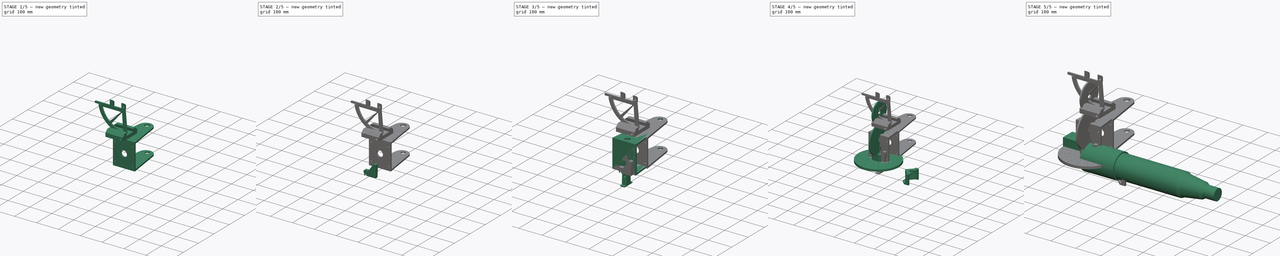
[diagram: build sequence overview — one tinted view per stage of 5, left to right]
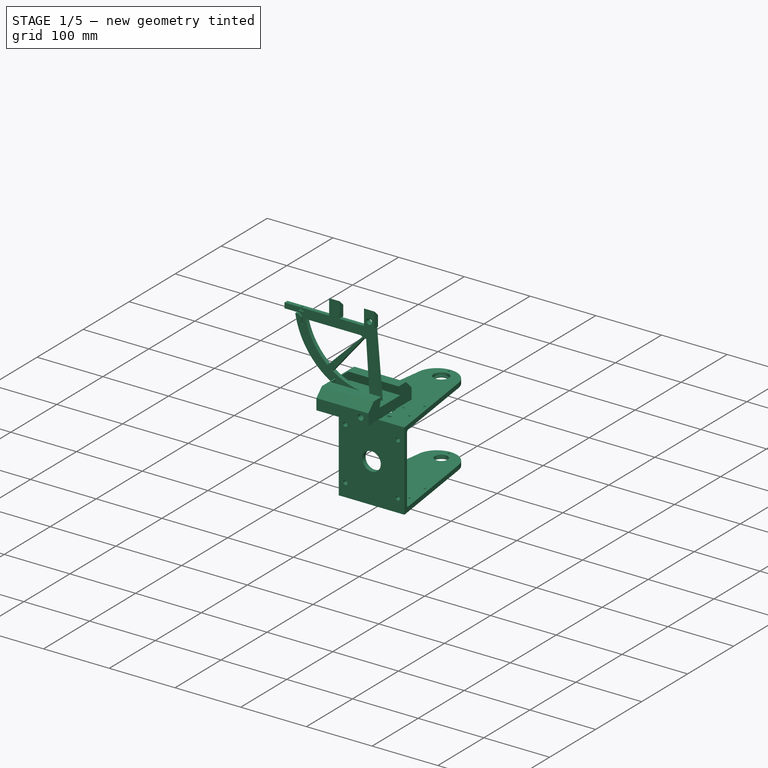
[diagram: stage 1 of 5 — iso view after this stage's code; geometry added in this stage tinted green]
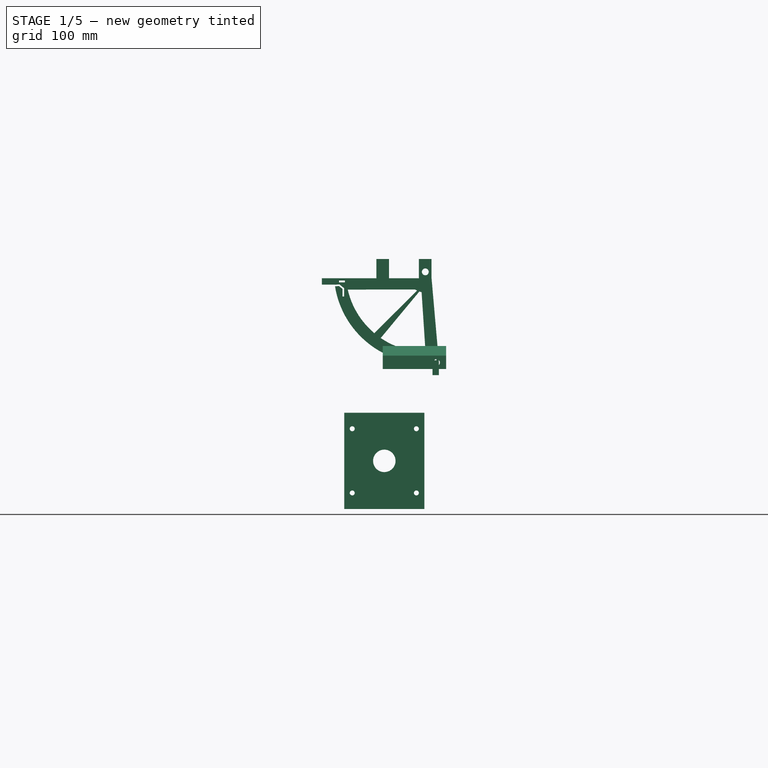
[diagram: stage 1 of 5 — front view after this stage's code; geometry added in this stage tinted green]
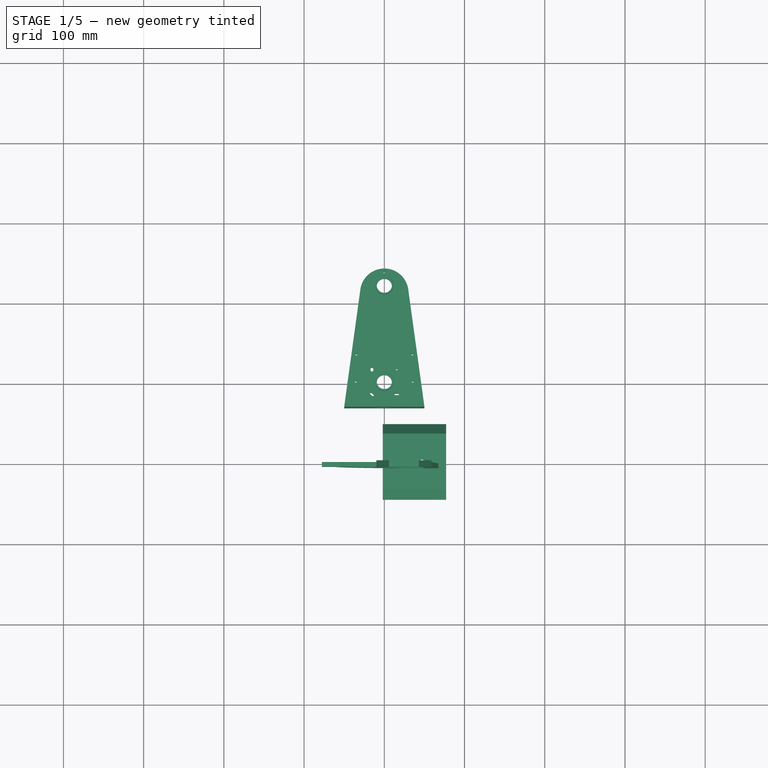
[diagram: stage 1 of 5 — top view after this stage's code; geometry added in this stage tinted green]
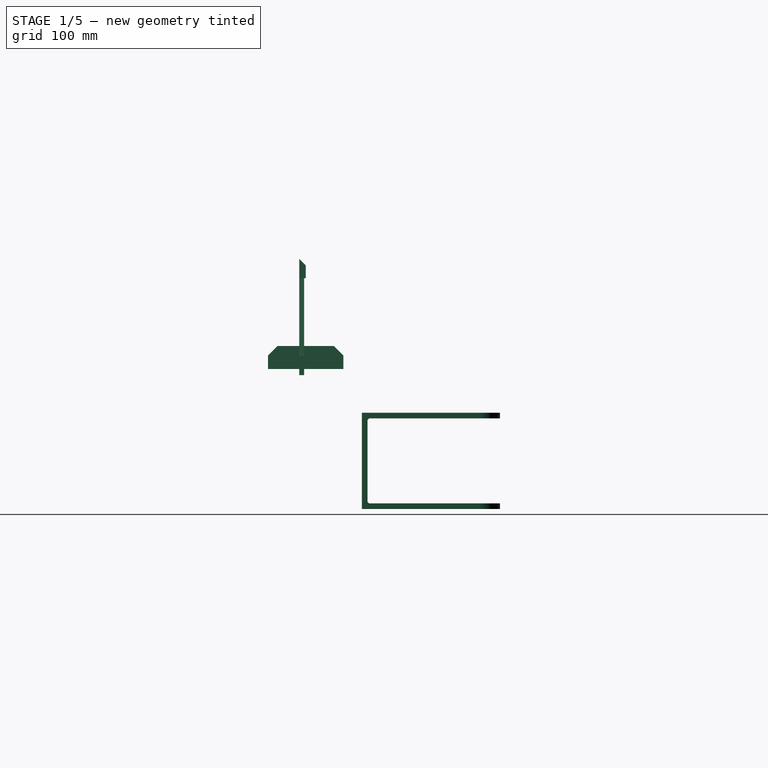
[diagram: stage 1 of 5 — right view after this stage's code; geometry added in this stage tinted green]
FCSTD DOCUMENT  (FreeCAD 0.19R24267 +99 (Git))
Label: 202207 BATS - Begines Astro Tracking System
License: All rights reserved
LicenseURL: http://en.wikipedia.org/wiki/All_rights_reserved
objects: Sketcher::SketchObject×96, PartDesign::Pocket×57, PartDesign::Pad×33, PartDesign::Body×25, PartDesign::Chamfer×15, App::Link×9, PartDesign::Fillet×6, App::DocumentObjectGroup×5, PartDesign::Revolution×3, PartDesign::Boolean×1
note: 350 computed .brp shape members not serialized (recipe doc carries the construction recipe); baked Part::Feature solids carry a one-line shape summary decoded from their .brp

FEATURE [PartDesign::Body] Body026  label="SOP_POLEA"
  Group = -> [Sketch108,Pad034,Sketch109,Pocket067,Sketch110,Pocket068,Sketch112,Pocket069,Fillet,Sketch113,Pocket070]
  Origin = -> Origin026
  Tip = -> Pocket070
FEATURE [Sketcher::SketchObject] Sketch114
  FullyConstrained = false
  MapMode = 5
  Placement = pos=(0,0,0) rot=(0.57735,0.57735,0.57735;2.0944rad)
  Support = -> [YZ_Plane027]
  sketch-geometry (8):
    g0: LineSegment StartX=-47 StartY=203.208 StartZ=0 EndX=-19 EndY=203.208 EndZ=0
    g1: LineSegment StartX=-19 StartY=203.208 StartZ=0 EndX=-22.5 EndY=189.708 EndZ=0
    g2: LineSegment StartX=-22.5 StartY=189.708 StartZ=0 EndX=22.5 EndY=189.708 EndZ=0
    g3: LineSegment StartX=22.5 StartY=189.708 StartZ=0 EndX=19 EndY=203.208 EndZ=0
    g4: LineSegment StartX=19 StartY=203.208 StartZ=0 EndX=47 EndY=203.208 EndZ=0
    g5: LineSegment StartX=47 StartY=203.208 StartZ=0 EndX=47 EndY=174.471 EndZ=0
    g6: LineSegment StartX=47 StartY=174.471 StartZ=0 EndX=-47 EndY=174.471 EndZ=0
    g7: LineSegment StartX=-47 StartY=174.471 StartZ=0 EndX=-47 EndY=203.208 EndZ=0
  constraints (21):
    c: Horizontal(g0)
    c: Coincident(g0,g1)
    c: Coincident(g1,g2)
    c: Coincident(g2,g3)
    c: Coincident(g3,g4)
    c: Horizontal(g4)
    c: Coincident(g4,g5)
    c: Vertical(g5)
    c: Coincident(g5,g6)
    c: Coincident(g7,g0)
    c: Vertical(g7)
    c: DistanceX(g2,g2) = 45
    c: DistanceY(g1,g1) = 13.5
    c: Horizontal(g3,g0)
    c: DistanceX(g1,g1) = 3.5
    c: DistanceX(g3,g3) = 3.5
    c: Symmetric(g1,g2,g-2)
    c: Symmetric(g6,g5,g-2)
    c: Coincident(g6,g7)
    c: DistanceX(g6,g6) = 94
    c: DistanceX(g6,g6) = 94
FEATURE [PartDesign::Pad] Pad035
  Direction = (1,1,1)
  Length = 77
  Length2 = 100
  Placement = pos=(0,0,0) rot=(0.57735,0.57735,0.57735;2.0944rad)
  Profile = -> Sketch114
  Type = 0
FEATURE [Sketcher::SketchObject] Sketch115
  ExternalGeometry = -> [Pad035]
  FullyConstrained = true
  MapMode = 5
  Placement = pos=(-5.31e-14,8.35e-14,189.708) rot=(0,0,-1;1.5708rad)
  Support = -> [Pad035]
  sketch-geometry (1):
    g0: Circle CenterX=0 CenterY=47 CenterZ=0 NormalX=0 NormalY=0 NormalZ=1 AngleXU=0 Radius=3.1
  constraints (4):
    c: PointOnObject(g0,g-2)
    c: Radius(g0) = 3.1
    c: DistanceY(g-1,g0) = 47
    c: DistanceY(g0,g-3) = 30
FEATURE [PartDesign::Pocket] Pocket071
  BaseFeature = -> Pad035
  Length = 30
  Length2 = 100
  Placement = pos=(0,0,0) rot=(0.57735,0.57735,0.57735;2.0944rad)
  Profile = -> Sketch115
  Type = 0
FEATURE [Sketcher::SketchObject] Sketch116
  ExternalGeometry = -> [Pocket071]
  FullyConstrained = true
  MapMode = 5
  Placement = pos=(-2.07e-14,-47,1.03e-14) rot=(-0.57735,-0.57735,0.57735;4.18879rad)
  Support = -> [Pocket071]
  sketch-geometry (1):
    g0: Circle CenterX=-182.471 CenterY=65 CenterZ=0 NormalX=0 NormalY=0 NormalZ=1 AngleXU=0 Radius=4.3
  constraints (3):
    c: Radius(g0) = 4.3
    c: DistanceY(g-3,g0) = 65
    c: DistanceX(g0,g-3) = 8
FEATURE [PartDesign::Pocket] Pocket072
  BaseFeature = -> Pocket071
  Length = 100
  Length2 = 100
  Placement = pos=(0,0,0) rot=(0.57735,0.57735,0.57735;2.0944rad)
  Profile = -> Sketch116
  Type = 0
FEATURE [PartDesign::Chamfer] Chamfer014
  Angle = 45
  Base = -> Pocket072 [Edge29,Edge1]
  BaseFeature = -> Pocket072
  ChamferType = 0
  FlipDirection = false
  Placement = pos=(0,0,0) rot=(0.57735,0.57735,0.57735;2.0944rad)
  Size = 12
  Size2 = 1
  SupportTransform = false
FEATURE [Sketcher::SketchObject] Sketch117
  ExternalGeometry = -> [Chamfer014]
  FullyConstrained = true
  MapMode = 5
  Placement = pos=(-4e-16,0,0) rot=(0.57735,0.57735,-0.57735;4.18879rad)
  Support = -> [Chamfer014]
  sketch-geometry (6):
    g0: LineSegment StartX=-47 StartY=-174.471 StartZ=0 EndX=47 EndY=-174.471 EndZ=0
    g1: LineSegment StartX=47 StartY=-174.471 StartZ=0 EndX=47 EndY=-191.208 EndZ=0
    g2: LineSegment StartX=47 StartY=-191.208 StartZ=0 EndX=35 EndY=-203.208 EndZ=0
    g3: LineSegment StartX=35 StartY=-203.208 StartZ=0 EndX=-35 EndY=-203.208 EndZ=0
    g4: LineSegment StartX=-35 StartY=-203.208 StartZ=0 EndX=-47 EndY=-191.208 EndZ=0
    g5: LineSegment StartX=-47 StartY=-191.208 StartZ=0 EndX=-47 EndY=-174.471 EndZ=0
  constraints (12):
    c: Coincident(g-4,g0)
    c: Coincident(g0,g-8)
    c: Coincident(g0,g1)
    c: Coincident(g1,g-8)
    c: Coincident(g1,g2)
    c: Coincident(g2,g-7)
    c: Coincident(g2,g3)
    c: Coincident(g3,g-5)
    c: Coincident(g3,g4)
    c: Coincident(g4,g-5)
    c: Coincident(g4,g5)
    c: Coincident(g5,g0)
FEATURE [PartDesign::Pad] Pad036
  BaseFeature = -> Chamfer014
  Direction = (1,1,1)
  Length = 2
  Length2 = 100
  Placement = pos=(0,0,0) rot=(0.57735,0.57735,0.57735;2.0944rad)
  Profile = -> Sketch117
  Type = 0
FEATURE [Sketcher::SketchObject] Sketch119
  FullyConstrained = true
  MapMode = 5
  Placement = pos=(0,0,0) rot=(1,0,0;1.5708rad)
  Support = -> [XZ_Plane028]
  sketch-geometry (11):
    g0: LineSegment StartX=43.1 StartY=311.61 StartZ=0 EndX=58.9 EndY=311.61 EndZ=0
    g1: LineSegment StartX=58.9 StartY=311.61 StartZ=0 EndX=58.9 EndY=287.61 EndZ=0
    g2: LineSegment StartX=43.1 StartY=287.61 StartZ=0 EndX=43.1 EndY=311.61 EndZ=0
    g3: Circle CenterX=51.1 CenterY=295.61 CenterZ=0 NormalX=0 NormalY=0 NormalZ=1 AngleXU=0 Radius=4.25
    g4: ArcOfCircle CenterX=51.1 CenterY=295.61 CenterZ=0 NormalX=0 NormalY=0 NormalZ=1 AngleXU=0 Radius=114 StartAngle=3.21183 EndAngle=4.86174
    g5: LineSegment StartX=58.9 StartY=287.61 StartZ=0 EndX=68.0628 EndY=182.879 EndZ=0
    g6: LineSegment StartX=43.1 StartY=287.61 StartZ=0 EndX=5.9 EndY=287.61 EndZ=0
    g7: LineSegment StartX=5.9 StartY=287.61 StartZ=0 EndX=5.9 EndY=311.61 EndZ=0
    g8: LineSegment StartX=5.9 StartY=311.61 StartZ=0 EndX=-9.9 EndY=311.61 EndZ=0
    g9: LineSegment StartX=-9.9 StartY=311.61 StartZ=0 EndX=-9.9 EndY=287.61 EndZ=0
    g10: LineSegment StartX=-9.9 StartY=287.61 StartZ=0 EndX=-62.619 EndY=287.61 EndZ=0
  constraints (34):
    c: Coincident(g0,g1)
    c: Coincident(g2,g0)
    c: Horizontal(g0)
    c: Vertical(g1)
    c: Vertical(g2)
    c: DistanceX(g2,g1) = 15.8
    c: Diameter(g3) = 8.5
    c: DistanceY(g2,g2) = 24
    c: DistanceY(g1,g3) = 8
    c: DistanceX(g2,g3) = 8
    c: DistanceX(g3) = 51.1
    c: DistanceY(g3) = 295.61
    c: Horizontal(g2,g1)
    c: Coincident(g4,g3)
    c: Coincident(g5,g1)
    c: Coincident(g5,g4)
    c: Distance(g3,g4) = 114
    c: Distance(g3,g4) = 114
    c: Angle(g5) = -1.48353
    c: Coincident(g2,g6)
    c: Horizontal(g6)
    c: Coincident(g6,g7)
    c: Vertical(g7)
    c: Coincident(g7,g8)
    c: Horizontal(g8)
    c: Coincident(g8,g9)
    c: Vertical(g9)
    c: Coincident(g9,g10)
    c: Coincident(g10,g4)
    c: Horizontal(g10)
    c: Horizontal(g9,g6)
    c: DistanceX(g8,g8) = 15.8
    c: DistanceY(g9,g9) = 24
    c: DistanceX(g6,g6) = 37.2
FEATURE [PartDesign::Pad] Pad037
  Direction = (1,1,1)
  Length = 8
  Length2 = 100
  Placement = pos=(0,0,0) rot=(1,0,0;1.5708rad)
  Profile = -> Sketch119
  Type = 0
FEATURE [PartDesign::Body] Body033  label="GRIP SUPERIOR"
  Group = -> [Sketch138,Pad042,Sketch139,Pocket086,Sketch140,Pocket087,Boolean,Sketch141,Pocket088,Chamfer021,Fillet005]
  Origin = -> Origin033
  Tip = -> Fillet005
FEATURE [App::DocumentObjectGroup] Grupo004  label="grip superior"
  Group = -> [Body032,Body031,Body033]
FEATURE [Sketcher::SketchObject] Sketch144
  FullyConstrained = false
  MapMode = 2
  Placement = pos=(0,-2,0) rot=(-1,0,0;1.5708rad)
  Support = -> [Sketch144]
  sketch-geometry (8):
    g0: LineSegment StartX=46.4684 StartY=-270.288 StartZ=0 EndX=51.3899 EndY=-195.713 EndZ=0
    g1: LineSegment StartX=38.2664 StartY=-273.583 StartZ=0 EndX=-45.5854 EndY=-273.501 EndZ=0
    g2: LineSegment StartX=43.65 StartY=-271.06 StartZ=0 EndX=-4.46064 EndY=-213.118 EndZ=0
    g3: LineSegment StartX=46.4684 StartY=-270.288 StartZ=0 EndX=43.65 EndY=-271.06 EndZ=0
    g4: LineSegment StartX=38.2664 StartY=-273.583 StartZ=0 EndX=40.8655 EndY=-272.177 EndZ=0
    g5: LineSegment StartX=40.8655 StartY=-272.177 StartZ=0 EndX=-12.4277 EndY=-219.162 EndZ=0
    g6: ArcOfCircle CenterX=51.9169 CenterY=-295.711 CenterZ=0 NormalX=0 NormalY=0 NormalZ=1 AngleXU=0 Radius=100 StartAngle=2.26979 EndAngle=2.91762
    g7: ArcOfCircle CenterX=51.9169 CenterY=-295.711 CenterZ=0 NormalX=0 NormalY=0 NormalZ=1 AngleXU=0 Radius=100 StartAngle=1.57607 EndAngle=2.16975
  constraints (21):
    c: Coincident(g3,g0)
    c: Coincident(g3,g2)
    c: Coincident(g4,g1)
    c: Coincident(g5,g4)
    c: Coincident(g6,g1)
    c: Coincident(g6,g5)
    c: Coincident(g7,g6)
    c: Coincident(g7,g2)
    c: Coincident(g7,g0)
    c: Radius(g7) = 100
    c: Radius(g6) = 100
    c: Distance(g1,g6) = 26
    c: Distance(g4,g6) = 26
    c: Distance(g2,g6) = 26
    c: Distance(g0,g6) = 26
    c: Distance(g2,g4) = 3
    c: Distance(g4) = 2.955
    c: Distance(g3) = 2.92214
    c: Distance(g5,g2) = 10
    c: Distance(g2,g0) = 58.5
    c: Distance(g5,g1) = 63.6567
FEATURE [PartDesign::Pocket] Pocket089
  BaseFeature = -> Pad037
  Length = 20
  Length2 = 100
  Midplane = true
  Placement = pos=(0,0,0) rot=(1,0,0;1.5708rad)
  Profile = -> Sketch144
  Type = 0
FEATURE [PartDesign::Body] Body027  label="GRIP TELESCOPIO"
  Group = -> [Sketch114,Pad035,Sketch115,Pocket071,Sketch116,Pocket072,Chamfer014,Sketch117,Pad036,Sketch118,Pocket073,Chamfer023]
  Origin = -> Origin027
  Placement = pos=(-37,0,113) rot=(0,0,1;0rad)
  Tip = -> Chamfer023
FEATURE [Sketcher::SketchObject] Sketch145
  ExternalGeometry = -> [Pocket089]
  FullyConstrained = false
  MapMode = 5
  Placement = pos=(0,-5e-16,0) rot=(-1,0,0;1.5708rad)
  Support = -> [Pocket089]
  sketch-geometry (4):
    g0: LineSegment StartX=-105.639 StartY=-176.233 StartZ=0 EndX=107.119 EndY=-176.233 EndZ=0
    g1: LineSegment StartX=107.119 StartY=-176.233 StartZ=0 EndX=107.119 EndY=-287.61 EndZ=0
    g2: LineSegment StartX=107.119 StartY=-287.61 StartZ=0 EndX=-105.639 EndY=-287.61 EndZ=0
    g3: LineSegment StartX=-105.639 StartY=-287.61 StartZ=0 EndX=-105.639 EndY=-176.233 EndZ=0
  constraints (9):
    c: Coincident(g0,g1)
    c: Coincident(g1,g2)
    c: Coincident(g2,g3)
    c: Coincident(g3,g0)
    c: Horizontal(g0)
    c: Horizontal(g2)
    c: Vertical(g1)
    c: Vertical(g3)
    c: PointOnObject(g-3,g2)
FEATURE [PartDesign::Pocket] Pocket090
  BaseFeature = -> Pocket089
  Length = 2
  Length2 = 100
  Placement = pos=(0,0,0) rot=(1,0,0;1.5708rad)
  Profile = -> Sketch145
  Type = 0
FEATURE [PartDesign::Chamfer] Chamfer024
  Angle = 45
  Base = -> Pocket090 [Edge13,Edge51]
  BaseFeature = -> Pocket090
  ChamferType = 0
  FlipDirection = false
  Placement = pos=(0,0,0) rot=(1,0,0;1.5708rad)
  Size = 7.9
  Size2 = 1
  SupportTransform = false
FEATURE [Sketcher::SketchObject] Sketch146
  ExternalGeometry = -> [Chamfer024]
  FullyConstrained = true
  MapMode = 5
  Placement = pos=(0,-2,7e-16) rot=(-1,0,0;1.5708rad)
  Support = -> [Chamfer024]
  sketch-geometry (8):
    g0: LineSegment StartX=-61.7716 StartY=-279.61 StartZ=0 EndX=-77.7716 EndY=-279.61 EndZ=0
    g1: LineSegment StartX=-77.7716 StartY=-279.61 StartZ=0 EndX=-77.7716 EndY=-287.61 EndZ=0
    g2: LineSegment StartX=-77.7716 StartY=-287.61 StartZ=0 EndX=-61.7716 EndY=-287.61 EndZ=0
    g3: LineSegment StartX=-61.7716 StartY=-287.61 StartZ=0 EndX=-61.7716 EndY=-279.61 EndZ=0
    g4: LineSegment StartX=60.0628 StartY=-166.879 StartZ=0 EndX=68.0628 EndY=-166.879 EndZ=0
    g5: LineSegment StartX=68.0628 StartY=-166.879 StartZ=0 EndX=68.0628 EndY=-182.879 EndZ=0
    g6: LineSegment StartX=68.0628 StartY=-182.879 StartZ=0 EndX=60.0628 EndY=-182.879 EndZ=0
    g7: LineSegment StartX=60.0628 StartY=-182.879 StartZ=0 EndX=60.0628 EndY=-166.879 EndZ=0
  constraints (23):
    c: Coincident(g0,g1)
    c: Coincident(g1,g2)
    c: Coincident(g2,g3)
    c: Coincident(g3,g0)
    c: Horizontal(g0)
    c: Horizontal(g2)
    c: Vertical(g1)
    c: Vertical(g3)
    c: PointOnObject(g0,g-3)
    c: PointOnObject(g2,g-5)
    c: DistanceY(g1,g1) = 8
    c: DistanceX(g0,g0) = 16
    c: Coincident(g4,g5)
    c: Coincident(g5,g6)
    c: Coincident(g6,g7)
    c: Coincident(g7,g4)
    c: Horizontal(g4)
    c: Horizontal(g6)
    c: Vertical(g5)
    c: Vertical(g7)
    c: Coincident(g5,g-4)
    c: DistanceX(g4,g4) = 8
    c: DistanceY(g5,g5) = 16
FEATURE [PartDesign::Pad] Pad043
  BaseFeature = -> Chamfer024
  Direction = (1,1,1)
  Length = 6
  Length2 = 100
  Placement = pos=(0,0,0) rot=(1,0,0;1.5708rad)
  Profile = -> Sketch146
  Reversed = true
  Type = 0
FEATURE [Sketcher::SketchObject] Sketch147
  ExternalGeometry = -> [Pad043]
  FullyConstrained = false
  MapMode = 5
  Placement = pos=(0,-2,9e-16) rot=(-1,0,0;1.5708rad)
  Support = -> [Pad043]
  sketch-geometry (16):
    g0: LineSegment StartX=59.8525 StartY=-181.714 StartZ=0 EndX=60.0816 EndY=-186.606 EndZ=0
    g1: LineSegment StartX=60.0816 StartY=-186.606 StartZ=0 EndX=55.6004 EndY=-190.801 EndZ=0
    g2: LineSegment StartX=55.6004 StartY=-190.801 StartZ=0 EndX=45.986 EndY=-189.823 EndZ=0
    g3: LineSegment StartX=45.986 StartY=-189.823 StartZ=0 EndX=46.1883 EndY=-187.833 EndZ=0
    g4: LineSegment StartX=46.1883 StartY=-187.833 StartZ=0 EndX=54.8977 EndY=-188.719 EndZ=0
    g5: LineSegment StartX=54.8977 StartY=-188.719 StartZ=0 EndX=58.0406 EndY=-185.777 EndZ=0
    g6: LineSegment StartX=58.0406 StartY=-185.777 StartZ=0 EndX=57.8465 EndY=-181.633 EndZ=0
    g7: LineSegment StartX=57.8465 StartY=-181.633 StartZ=0 EndX=59.8525 EndY=-181.714 EndZ=0
    g8: LineSegment StartX=-62.4277 StartY=-277.477 StartZ=0 EndX=-56.5132 EndY=-277.904 EndZ=0
    g9: LineSegment StartX=-56.5132 StartY=-277.904 StartZ=0 EndX=-52.1059 EndY=-274.289 EndZ=0
    g10: LineSegment StartX=-52.1059 StartY=-274.289 StartZ=0 EndX=-52.1059 EndY=-264.834 EndZ=0
    g11: LineSegment StartX=-52.1059 StartY=-264.834 StartZ=0 EndX=-50.1059 EndY=-264.834 EndZ=0
    g12: LineSegment StartX=-50.1059 StartY=-264.834 StartZ=0 EndX=-50.1059 EndY=-275.235 EndZ=0
    g13: LineSegment StartX=-50.1059 StartY=-275.235 StartZ=0 EndX=-55.8615 EndY=-279.956 EndZ=0
    g14: LineSegment StartX=-55.8615 StartY=-279.956 StartZ=0 EndX=-62.5715 EndY=-279.472 EndZ=0
    g15: LineSegment StartX=-62.5715 StartY=-279.472 StartZ=0 EndX=-62.4277 EndY=-277.477 EndZ=0
  constraints (32):
    c: Coincident(g0,g1)
    c: Coincident(g1,g2)
    c: Coincident(g2,g3)
    c: Coincident(g3,g4)
    c: Coincident(g4,g5)
    c: Coincident(g5,g6)
    c: Coincident(g6,g7)
    c: Coincident(g7,g0)
    c: Parallel(g6,g0)
    c: Parallel(g5,g1)
    c: Parallel(g4,g2)
    c: Perpendicular(g2,g3)
    c: Distance(g4,g2) = 2
    c: Distance(g5,g1) = 2
    c: Distance(g5,g0) = 2
    c: Coincident(g8,g9)
    c: Coincident(g9,g10)
    c: Coincident(g10,g11)
    c: Horizontal(g11)
    c: Coincident(g11,g12)
    c: Coincident(g12,g13)
    c: Coincident(g13,g14)
    c: Coincident(g14,g15)
    c: Coincident(g15,g8)
    c: Parallel(g8,g14)
    c: Perpendicular(g15,g14)
    c: Distance(g8,g14) = 2
    c: Parallel(g9,g13)
    c: Parallel(g10,g12)
    c: Perpendicular(g12,g11)
    c: Distance(g9,g12) = 2
    c: Distance(g8,g13) = 2
FEATURE [PartDesign::Pocket] Pocket091
  BaseFeature = -> Pad043
  Length = 6
  Length2 = 100
  Placement = pos=(0,0,0) rot=(1,0,0;1.5708rad)
  Profile = -> Sketch147
  Type = 0
FEATURE [Sketcher::SketchObject] Sketch148
  ExternalGeometry = -> [Pocket091]
  FullyConstrained = true
  MapMode = 5
  Placement = pos=(0,-2,1.1e-15) rot=(-1,0,0;1.5708rad)
  Support = -> [Pocket091]
  sketch-geometry (2):
    g0: Circle CenterX=-32.566 CenterY=-280.61 CenterZ=0 NormalX=0 NormalY=0 NormalZ=1 AngleXU=0 Radius=5.25
    g1: Circle CenterX=58.1 CenterY=-210.899 CenterZ=0 NormalX=0 NormalY=0 NormalZ=1 AngleXU=0 Radius=5.25
  constraints (9):
    c: Diameter(g1) = 10.5
    c: Diameter(g0) = 10.5
    c: Distance(g1,g-7) = 85
    c: Distance(g0,g-7) = 85
    c: Distance(g1,g-6) = 7.48278
    c: Distance(g1,g-5) = 7.69551
    c: Distance(g0,g-3) = 7
    c: Distance(g0,g-4) = 7.09618
    c: DistanceX(g-7,g1) = 7
FEATURE [PartDesign::Pocket] Pocket092
  BaseFeature = -> Pocket091
  Length = 2
  Length2 = 100
  Placement = pos=(0,0,0) rot=(1,0,0;1.5708rad)
  Profile = -> Sketch148
  Type = 0
FEATURE [PartDesign::Chamfer] Chamfer025
  Angle = 45
  Base = -> Pocket092 [Edge130,Edge129]
  BaseFeature = -> Pocket092
  ChamferType = 0
  FlipDirection = false
  Placement = pos=(0,0,0) rot=(1,0,0;1.5708rad)
  Size = 0.5
  Size2 = 1
  SupportTransform = false
FEATURE [Sketcher::SketchObject] Sketch149
  ExternalGeometry = -> [Chamfer025]
  FullyConstrained = true
  MapMode = 5
  Placement = pos=(0,-2,1.3e-15) rot=(-1,0,0;1.5708rad)
  Support = -> [Chamfer025]
  sketch-geometry (8):
    g0: LineSegment StartX=-56.465 StartY=-282.41 StartZ=0 EndX=-49.215 EndY=-282.41 EndZ=0
    g1: LineSegment StartX=-49.215 StartY=-282.41 StartZ=0 EndX=-49.215 EndY=-284.81 EndZ=0
    g2: LineSegment StartX=-49.215 StartY=-284.81 StartZ=0 EndX=-56.465 EndY=-284.81 EndZ=0
    g3: LineSegment StartX=-56.465 StartY=-284.81 StartZ=0 EndX=-56.465 EndY=-282.41 EndZ=0
    g4: LineSegment StartX=62.6336 StartY=-185.272 StartZ=0 EndX=62.0017 EndY=-192.494 EndZ=0
    g5: LineSegment StartX=62.0017 StartY=-192.494 StartZ=0 EndX=64.3926 EndY=-192.703 EndZ=0
    g6: LineSegment StartX=64.3926 StartY=-192.703 StartZ=0 EndX=65.0245 EndY=-185.481 EndZ=0
    g7: LineSegment StartX=65.0245 StartY=-185.481 StartZ=0 EndX=62.6336 EndY=-185.272 EndZ=0
  constraints (24):
    c: Coincident(g0,g1)
    c: Coincident(g1,g2)
    c: Coincident(g2,g3)
    c: Coincident(g3,g0)
    c: Horizontal(g0)
    c: Horizontal(g2)
    c: Vertical(g1)
    c: Vertical(g3)
    c: Coincident(g4,g5)
    c: Coincident(g5,g6)
    c: Coincident(g6,g7)
    c: Coincident(g7,g4)
    c: Perpendicular(g6,g7)
    c: Perpendicular(g5,g4)
    c: Parallel(g4,g6)
    c: Distance(g7) = 2.4
    c: Distance(g4) = 7.25
    c: DistanceY(g1,g1) = 2.4
    c: DistanceX(g0,g0) = 7.25
    c: Distance(g6,g-3) = 2.8
    c: Parallel(g6,g-3)
    c: Distance(g-3,g6) = 4
    c: Distance(g2,g-4) = 2.8
    c: Distance(g2,g-4) = 6
FEATURE [PartDesign::Pocket] Pocket093
  BaseFeature = -> Chamfer025
  Length = 6
  Length2 = 100
  Placement = pos=(0,0,0) rot=(1,0,0;1.5708rad)
  Profile = -> Sketch149
  Type = 0
FEATURE [Sketcher::SketchObject] Sketch150
  ExternalGeometry = -> [Pocket093]
  FullyConstrained = true
  MapMode = 5
  Placement = pos=(0,2.554e-13,287.61) rot=(0,0,1;3.14159rad)
  Support = -> [Pocket093]
  sketch-geometry (1):
    g0: Circle CenterX=52.8216 CenterY=5 CenterZ=0 NormalX=0 NormalY=0 NormalZ=1 AngleXU=0 Radius=1.6
  constraints (3):
    c: Diameter(g0) = 3.2
    c: Distance(g0,g-3) = 3
    c: DistanceX(g0,g-4) = 8.95
FEATURE [PartDesign::Pocket] Pocket094
  BaseFeature = -> Pocket093
  Length = 11.42
  Length2 = 100
  Placement = pos=(0,0,0) rot=(1,0,0;1.5708rad)
  Profile = -> Sketch150
  Type = 0
FEATURE [Sketcher::SketchObject] Sketch151
  ExternalGeometry = -> [Pocket094]
  FullyConstrained = true
  MapMode = 5
  Placement = pos=(83.4241,7.3e-15,7.29866) rot=(0.67559,0,0.737277;3.14159rad)
  Support = -> [Pocket094]
  sketch-geometry (1):
    g0: Circle CenterX=182.751 CenterY=5 CenterZ=0 NormalX=0 NormalY=0 NormalZ=1 AngleXU=0 Radius=1.6
  constraints (3):
    c: Diameter(g0) = 3.2
    c: Distance(g0,g-4) = 3
    c: DistanceX(g-3,g0) = 6.5
FEATURE [PartDesign::Pocket] Pocket095
  BaseFeature = -> Pocket094
  Length = 10.75
  Length2 = 100
  Placement = pos=(0,0,0) rot=(1,0,0;1.5708rad)
  Profile = -> Sketch151
  Type = 0
FEATURE [PartDesign::Body] Body028  label="RUEDA GRIP"
  Group = -> [Sketch119,Pad037,Sketch144,Pocket089,Sketch145,Pocket090,Chamfer024,Sketch146,Pad043,Sketch147,Pocket091,Sketch148,Pocket092,Chamfer025,Sketch149,Pocket093,Sketch150,Pocket094,Sketch151,Pocket095]
  Origin = -> Origin028
  Placement = pos=(-23,49,0) rot=(0,0,1;0rad)
  Tip = -> Pocket095
FEATURE [Sketcher::SketchObject] Sketch154
  FullyConstrained = true
  Placement = pos=(0,0,120) rot=(0,1,0;1.5708rad)
  sketch-geometry (6):
    g0: LineSegment StartX=7 StartY=252.37 StartZ=0 EndX=113 EndY=252.37 EndZ=0
    g1: LineSegment StartX=113 StartY=252.37 StartZ=0 EndX=113 EndY=79 EndZ=0
    g2: LineSegment StartX=111 StartY=77 StartZ=0 EndX=9 EndY=77 EndZ=0
    g3: LineSegment StartX=7 StartY=79 StartZ=0 EndX=7 EndY=252.37 EndZ=0
    g4: LineSegment StartX=7 StartY=79 StartZ=0 EndX=9 EndY=77 EndZ=0
    g5: LineSegment StartX=113 StartY=79 StartZ=0 EndX=111 EndY=77 EndZ=0
  constraints (18):
    c: Horizontal(g0)
    c: Horizontal(g2)
    c: Vertical(g1)
    c: Vertical(g3)
    c: Coincident(g4,g3)
    c: Coincident(g4,g2)
    c: Coincident(g5,g1)
    c: Coincident(g5,g2)
    c: DistanceY(g-1,g2) = 77
    c: DistanceX(g-1,g3) = 7
    c: DistanceX(g3,g1) = 106
    c: Horizontal(g1,g3)
    c: DistanceX(g3,g2) = 2
    c: DistanceX(g2,g1) = 2
    c: DistanceY(g2,g3) = 2
    c: Coincident(g0,g3)
    c: Coincident(g0,g1)
    c: DistanceY(g0) = 252.37
FEATURE [Sketcher::SketchObject] Sketch155
  FullyConstrained = false
  MapMode = 3
  Placement = pos=(-2.8e-15,0,0) rot=(0,0,1;0rad)
  sketch-geometry (13):
    g0: LineSegment StartX=-50 StartY=70 StartZ=0 EndX=50 EndY=70 EndZ=0
    g1: LineSegment StartX=-50 StartY=70 StartZ=0 EndX=-30 EndY=215 EndZ=0
    g2: LineSegment StartX=50 StartY=70 StartZ=0 EndX=30 EndY=215 EndZ=0
    g3: Circle CenterX=0 CenterY=221.58 CenterZ=0 NormalX=0 NormalY=0 NormalZ=1 AngleXU=0 Radius=9.5
    g4: ArcOfCircle CenterX=0 CenterY=212.08 CenterZ=0 NormalX=0 NormalY=0 NormalZ=1 AngleXU=0 Radius=30.1418 StartAngle=0.0970256 EndAngle=3.04457
    g5: Circle CenterX=0 CenterY=101.58 CenterZ=0 NormalX=0 NormalY=0 NormalZ=1 AngleXU=0 Radius=9.5
    g6: Circle CenterX=-35.6441 CenterY=101.58 CenterZ=0 NormalX=0 NormalY=0 NormalZ=1 AngleXU=0 Radius=1.6
    g7: Circle CenterX=35.6441 CenterY=101.58 CenterZ=0 NormalX=0 NormalY=0 NormalZ=1 AngleXU=0 Radius=1.6
    g8: Circle CenterX=-34.9726 CenterY=135.449 CenterZ=0 NormalX=0 NormalY=0 NormalZ=1 AngleXU=0 Radius=1.6
    g9: Circle CenterX=34.9726 CenterY=135.449 CenterZ=0 NormalX=0 NormalY=0 NormalZ=1 AngleXU=0 Radius=1.6
    g10: GeomPoint X=-45.6441 Y=101.58 Z=0
    g11: GeomPoint X=-40.9726 Y=135.449 Z=0
    g12: Circle CenterX=0 CenterY=238 CenterZ=0 NormalX=0 NormalY=0 NormalZ=1 AngleXU=0 Radius=1.6
  constraints (34):
    c: Coincident(g1,g0)
    c: Coincident(g2,g0)
    c: DistanceX(g0,g0) = 100
    c: DistanceX(g1,g2) = 60
    c: Symmetric(g1,g2,g-2)
    c: PointOnObject(g4,g-2)
    c: Coincident(g4,g1)
    c: PointOnObject(g4,g2)
    c: Radius(g3) = 9.5
    c: DistanceY(g1) = 215
    c: PointOnObject(g4,g3)
    c: Radius(g5) = 9.5
    c: DistanceY(g5,g3) = 120
    c: PointOnObject(g3,g-2)
    c: PointOnObject(g5,g-2)
    c: Equal(g6,g8)
    c: Equal(g6,g9)
    c: Equal(g6,g7)
    c: Radius(g6) = 1.6
    c: Symmetric(g6,g7,g-2)
    c: Symmetric(g8,g9,g-2)
    c: Horizontal(g6,g5)
    c: PointOnObject(g10,g1)
    c: Horizontal(g10,g6)
    c: DistanceX(g10,g6) = 10
    c: PointOnObject(g11,g1)
    c: Horizontal(g8,g11)
    c: DistanceX(g11,g8) = 6
    c: DistanceX(g0) = -50
    c: DistanceY(g0) = 70
    c: Horizontal(g0)
    c: PointOnObject(g12,g-2)
    c: Diameter(g12) = 3.2
    c: DistanceY(g12) = 238
FEATURE [PartDesign::Pad] Pad044  label="bloque"
  Direction = (1,1,1)
  Length = 120
  Length2 = 100
  Placement = pos=(-2.8e-15,0,0) rot=(0,0,1;0rad)
  Profile = -> Sketch155
  Type = 0
FEATURE [PartDesign::Pocket] Pocket098  label="vaciado"
  BaseFeature = -> Pad044
  Length = 304.8
  Length2 = 100
  Midplane = true
  Placement = pos=(-2.8e-15,0,0) rot=(0,0,1;0rad)
  Profile = -> Sketch154
  Type = 0
FEATURE [Sketcher::SketchObject] Sketch152
  ExternalGeometry = -> [Pocket098]
  FullyConstrained = true
  MapMode = 5
  Placement = pos=(-2.8e-15,70,0) rot=(1,0,0;1.5708rad)
  Support = -> [Pocket098]
  sketch-geometry (5):
    g0: Circle CenterX=-40 CenterY=100 CenterZ=0 NormalX=0 NormalY=0 NormalZ=1 AngleXU=0 Radius=3.1
    g1: Circle CenterX=40 CenterY=100 CenterZ=0 NormalX=0 NormalY=0 NormalZ=1 AngleXU=0 Radius=3.1
    g2: Circle CenterX=-40 CenterY=20 CenterZ=0 NormalX=0 NormalY=0 NormalZ=1 AngleXU=0 Radius=3.1
    g3: Circle CenterX=40 CenterY=20 CenterZ=0 NormalX=0 NormalY=0 NormalZ=1 AngleXU=0 Radius=3.1
    g4: Circle CenterX=-1.7e-14 CenterY=60 CenterZ=0 NormalX=0 NormalY=0 NormalZ=1 AngleXU=0 Radius=14
  constraints (12):
    c: Radius(g4) = 14
    c: Symmetric(g-3,g-4,g4)
    c: Equal(g0,g1)
    c: Equal(g0,g2)
    c: Equal(g0,g3)
    c: Radius(g0) = 3.1
    c: Symmetric(g0,g3,g4)
    c: Symmetric(g2,g1,g4)
    c: DistanceX(g0,g1) = 80
    c: DistanceY(g2,g0) = 80
    c: Horizontal(g1,g0)
    c: Vertical(g0,g2)
FEATURE [PartDesign::Pocket] Pocket096  label="huecos base"
  BaseFeature = -> Pocket098
  Length = 8
  Length2 = 100
  Placement = pos=(-2.8e-15,0,0) rot=(0,0,1;0rad)
  Profile = -> Sketch152
  Type = 0
FEATURE [Sketcher::SketchObject] Sketch156
  FullyConstrained = false
  MapMode = 5
  Placement = pos=(-2.8e-15,0,120) rot=(0,0,1;0rad)
  sketch-geometry (16):
    g0: Circle CenterX=-15.5 CenterY=117.08 CenterZ=0 NormalX=0 NormalY=0 NormalZ=1 AngleXU=0 Radius=1.575
    g1: Circle CenterX=15.5 CenterY=117.08 CenterZ=0 NormalX=0 NormalY=0 NormalZ=1 AngleXU=0 Radius=1.575
    g2: Circle CenterX=15.5 CenterY=86.0801 CenterZ=0 NormalX=0 NormalY=0 NormalZ=1 AngleXU=0 Radius=1.575
    g3: Circle CenterX=-15.5 CenterY=86.0801 CenterZ=0 NormalX=0 NormalY=0 NormalZ=1 AngleXU=0 Radius=1.575
    g4: ArcOfCircle CenterX=-15.5 CenterY=118.655 CenterZ=0 NormalX=0 NormalY=0 NormalZ=1 AngleXU=0 Radius=1.75 StartAngle=-2.7e-15 EndAngle=3.14159
    g5: ArcOfCircle CenterX=-15.5 CenterY=115.505 CenterZ=0 NormalX=0 NormalY=0 NormalZ=1 AngleXU=0 Radius=1.75 StartAngle=3.14159 EndAngle=6.28319
    g6: LineSegment StartX=-17.25 StartY=118.655 StartZ=0 EndX=-17.25 EndY=115.505 EndZ=0
    g7: LineSegment StartX=-13.75 StartY=118.655 StartZ=0 EndX=-13.75 EndY=115.505 EndZ=0
    g8: ArcOfCircle CenterX=13.925 CenterY=86.0801 CenterZ=0 NormalX=0 NormalY=0 NormalZ=1 AngleXU=0 Radius=1.75 StartAngle=1.5708 EndAngle=4.71239
    g9: ArcOfCircle CenterX=17.075 CenterY=86.0801 CenterZ=0 NormalX=0 NormalY=0 NormalZ=1 AngleXU=0 Radius=1.75 StartAngle=4.71239 EndAngle=7.85398
    g10: LineSegment StartX=13.925 StartY=84.3301 StartZ=0 EndX=17.075 EndY=84.3301 EndZ=0
    g11: LineSegment StartX=13.925 StartY=87.8301 StartZ=0 EndX=17.075 EndY=87.8301 EndZ=0
    g12: ArcOfCircle CenterX=-16.6137 CenterY=87.1938 CenterZ=0 NormalX=0 NormalY=0 NormalZ=1 AngleXU=0 Radius=1.75 StartAngle=0.785398 EndAngle=3.92699
    g13: ArcOfCircle CenterX=-14.3863 CenterY=84.9664 CenterZ=0 NormalX=0 NormalY=0 NormalZ=1 AngleXU=0 Radius=1.75 StartAngle=3.92699 EndAngle=7.06858
    g14: LineSegment StartX=-17.8511 StartY=85.9563 StartZ=0 EndX=-15.6237 EndY=83.7289 EndZ=0
    g15: LineSegment StartX=-15.3763 StartY=88.4312 StartZ=0 EndX=-13.1489 EndY=86.2038 EndZ=0
  constraints (36):
    c: Diameter(g1) = 3.15
    c: Diameter(g0) = 3.15
    c: Diameter(g3) = 3.15
    c: Diameter(g2) = 3.15
    c: DistanceX(g1) = 15.5
    c: Horizontal(g0,g1)
    c: Vertical(g0,g3)
    c: Vertical(g1,g2)
    c: Horizontal(g2,g3)
    c: Tangent(g4,g7) = 1.5708
    c: Tangent(g4,g6) = -1.5708
    c: Tangent(g6,g5) = -1.5708
    c: Tangent(g7,g5) = 1.5708
    c: Vertical(g6)
    c: Equal(g4,g5)
    c: PointOnObject(g4,g0)
    c: Symmetric(g5,g4,g0)
    c: DistanceX(g5,g5) = 3.5
    c: Tangent(g8,g11) = 1.5708
    c: Tangent(g8,g10) = -1.5708
    c: Tangent(g10,g9) = -1.5708
    c: Tangent(g11,g9) = 1.5708
    c: Horizontal(g10)
    c: Equal(g8,g9)
    c: Symmetric(g8,g9,g2)
    c: PointOnObject(g8,g2)
    c: DistanceY(g9,g9) = 3.5
    c: Tangent(g12,g15) = 1.5708
    c: Tangent(g12,g14) = -1.5708
    c: Tangent(g14,g13) = -1.5708
    c: Tangent(g15,g13) = 1.5708
    c: Equal(g12,g13)
    c: Angle(g14) = -0.785398
    c: Distance(g12,g12) = 3.5
    c: Symmetric(g12,g13,g3)
    c: Distance(g15) = 3.15
FEATURE [PartDesign::Pocket] Pocket099  label="agujeros tornillo nema"
  BaseFeature = -> Pocket096
  Length = 120
  Length2 = 100
  Placement = pos=(-2.8e-15,0,0) rot=(0,0,1;0rad)
  Profile = -> Sketch156
  Type = 0
FEATURE [Sketcher::SketchObject] Sketch157
  ExternalGeometry = -> [Pocket099]
  FullyConstrained = true
  MapMode = 5
  Placement = pos=(-2.8e-15,0,0) rot=(1,0,0;3.14159rad)
  Support = -> [Pocket099]
  sketch-geometry (2):
    g0: Circle CenterX=0 CenterY=-101.58 CenterZ=0 NormalX=0 NormalY=0 NormalZ=1 AngleXU=0 Radius=11.5
    g1: Circle CenterX=0 CenterY=-221.58 CenterZ=0 NormalX=0 NormalY=0 NormalZ=1 AngleXU=0 Radius=11.1
  constraints (4):
    c: Coincident(g0,g-3)
    c: Diameter(g1) = 22.2
    c: Diameter(g0) = 23
    c: Coincident(g1,g-4)
FEATURE [PartDesign::Pocket] Pocket100  label="rebaje derecha"
  BaseFeature = -> Pocket099
  Length = 5
  Length2 = -100
  Placement = pos=(-2.8e-15,0,0) rot=(0,0,1;0rad)
  Profile = -> Sketch157
  Type = 0
FEATURE [Sketcher::SketchObject] Sketch158
  ExternalGeometry = -> [Pocket100]
  FullyConstrained = true
  MapMode = 5
  Placement = pos=(-2.8e-15,0,120) rot=(0,0,1;0rad)
  Support = -> [Pocket100]
  sketch-geometry (2):
    g0: Circle CenterX=0 CenterY=221.58 CenterZ=0 NormalX=0 NormalY=0 NormalZ=1 AngleXU=0 Radius=11.1
    g1: Circle CenterX=0 CenterY=101.58 CenterZ=0 NormalX=0 NormalY=0 NormalZ=1 AngleXU=0 Radius=11.5
  constraints (4):
    c: Diameter(g0) = 22.2
    c: Diameter(g1) = 23
    c: Coincident(g0,g-3)
    c: Coincident(g1,g-4)
FEATURE [PartDesign::Pocket] Pocket101  label="rebaje izquierda"
  BaseFeature = -> Pocket100
  Length = 5
  Length2 = 100
  Placement = pos=(-2.8e-15,0,0) rot=(0,0,1;0rad)
  Profile = -> Sketch158
  Type = 0
FEATURE [PartDesign::Chamfer] Chamfer026
  Angle = 45
  Base = -> Pocket101 [Edge61,Edge48,Edge39,Edge26]
  BaseFeature = -> Pocket101
  ChamferType = 0
  FlipDirection = false
  Placement = pos=(-2.8e-15,0,0) rot=(0,0,1;0rad)
  Size = 0.5
  Size2 = 1
  SupportTransform = false
FEATURE [PartDesign::Body] Body034  label="ALEROS001"
  Group = -> [Sketch155,Pad044,Sketch154,Pocket098,Sketch152,Pocket096,Sketch156,Pocket099,Sketch157,Pocket100,Sketch158,Pocket101,Chamfer026]
  Origin = -> Origin034
  Placement = pos=(0,60,75.6) rot=(1,0,0;1.5708rad)
  Tip = -> Chamfer026
FEATURE [App::DocumentObjectGroup] Grupo001  label="Imprimibles"
  Group = -> [Body024,Body019,Body002,Body020,Link,Link001,Body026,Body018,Body027,Body028,Grupo004,Body034]
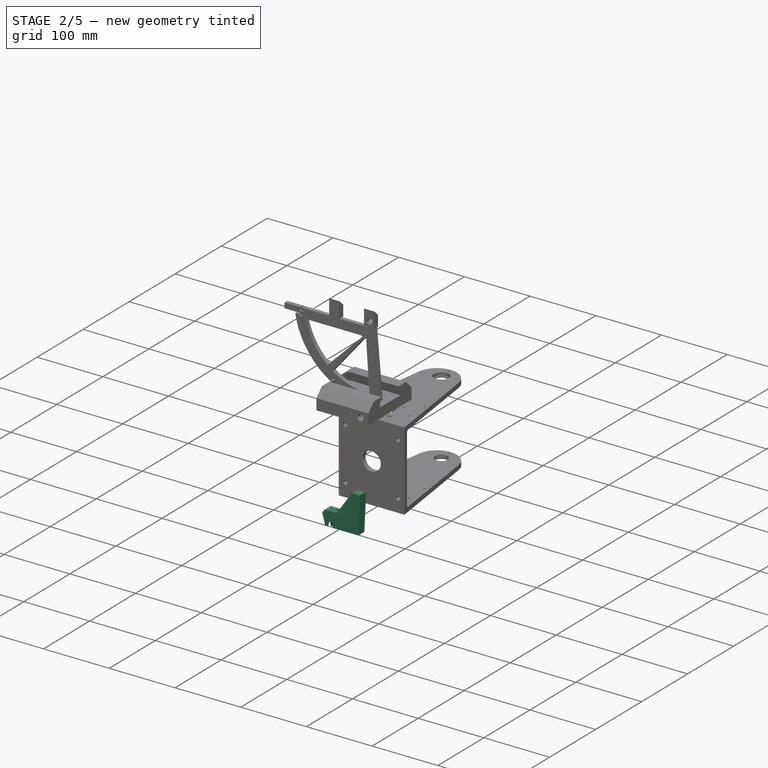
[diagram: stage 2 of 5 — iso view after this stage's code; geometry added in this stage tinted green]
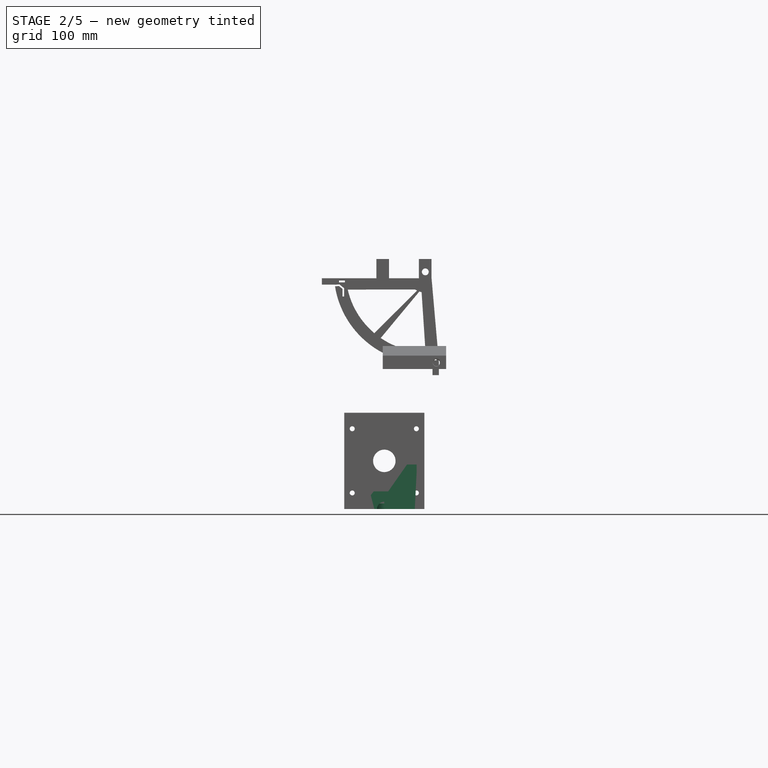
[diagram: stage 2 of 5 — front view after this stage's code; geometry added in this stage tinted green]
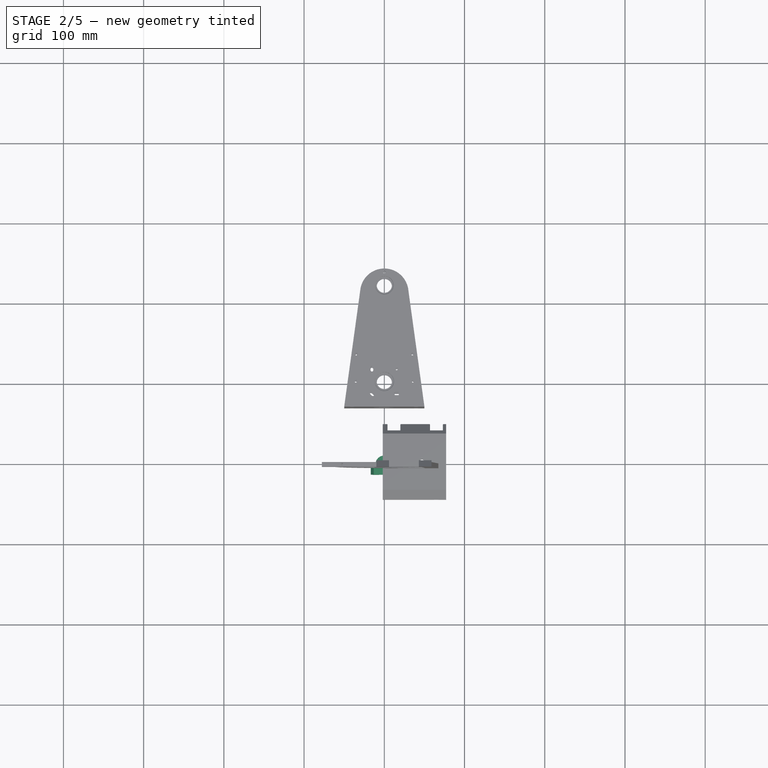
[diagram: stage 2 of 5 — top view after this stage's code; geometry added in this stage tinted green]
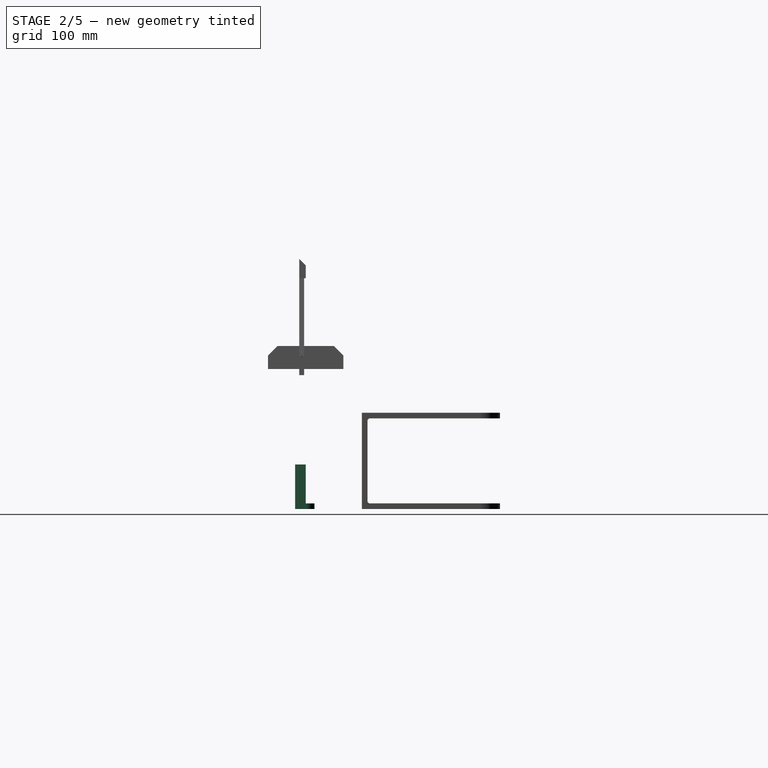
[diagram: stage 2 of 5 — right view after this stage's code; geometry added in this stage tinted green]
FEATURE [PartDesign::Body] Body025  label="p_ALEROS001"
  Group = -> [Sketch107,Pad033,Sketch105,Pocket065,Sketch104,Pocket063,Sketch103,Pocket064,Sketch106,Pocket066,Chamfer013]
  Origin = -> Origin025
  Placement = pos=(1,0,0) rot=(1,0,0;1.5708rad)
  Tip = -> Chamfer013
FEATURE [App::DocumentObjectGroup] Grupo002  label="Obsoletos"
  Group = -> [Body025,Body004]
FEATURE [App::Link] Link  label="SOPORTE002"
  LinkPlacement = pos=(0.0130561,81.0082,55.1) rot=(0,0,1;1.5708rad)
  LinkedObject = -> Body020
  Placement = pos=(0.0130561,81.0082,55.1) rot=(0,0,1;1.5708rad)
FEATURE [App::Link] Link001  label="SOPORTE003"
  LinkPlacement = pos=(-74.8525,-31.0804,55.1) rot=(0,0,1;3.53429rad)
  LinkedObject = -> Body020
  Placement = pos=(-74.8525,-31.0804,55.1) rot=(0,0,1;3.53429rad)
FEATURE [App::Link] Link002  label="BEARING 22x8x7w001"
  LinkPlacement = pos=(-80.09,-33.8427,58.6) rot=(0.19148,-0.962637,0.19148;1.60886rad)
  LinkedObject = -> Body008
  Placement = pos=(-80.09,-33.8427,58.6) rot=(0.19148,-0.962637,0.19148;1.60886rad)
FEATURE [App::Link] Link003  label="BEARING 22x8x7w002"
  LinkPlacement = pos=(86.7021,-35.9023,58.6) rot=(-0.427192,0.639338,0.639338;3.94905rad)
  LinkedObject = -> Body008
  Placement = pos=(86.7021,-35.9023,58.6) rot=(-0.427192,0.639338,0.639338;3.94905rad)
FEATURE [App::Link] Link004  label="POLEA002"
  LinkPlacement = pos=(61.1,-89.15,72.6) rot=(0,0,1;0rad)
  LinkedObject = -> Body022
  Placement = pos=(61.1,-89.15,72.6) rot=(0,0,1;0rad)
FEATURE [App::Link] Link005  label="POLEA003"
  LinkPlacement = pos=(-58.05,-89.1,72.6) rot=(0,0,1;0rad)
  LinkedObject = -> Body022
  Placement = pos=(-58.05,-89.1,72.6) rot=(0,0,1;0rad)
FEATURE [App::Link] Link006  label="POLEA004"
  LinkPlacement = pos=(-105.6,21.4,72.6) rot=(0,0,1;0rad)
  LinkedObject = -> Body022
  Placement = pos=(-105.6,21.4,72.6) rot=(0,0,1;0rad)
FEATURE [App::Link] Link007  label="POLEA005"
  LinkPlacement = pos=(-58.95,86.75,72.6) rot=(0,0,1;0rad)
  LinkedObject = -> Body022
  Placement = pos=(-58.95,86.75,72.6) rot=(0,0,1;0rad)
FEATURE [App::Link] Link008  label="POLEA006"
  LinkPlacement = pos=(59.5,85.65,72.6) rot=(0,0,1;0rad)
  LinkedObject = -> Body022
  Placement = pos=(59.5,85.65,72.6) rot=(0,0,1;0rad)
FEATURE [Sketcher::SketchObject] Sketch108
  FullyConstrained = true
  MapMode = 5
  Placement = pos=(0,0,0) rot=(1,0,0;1.5708rad)
  Support = -> [XZ_Plane026]
  sketch-geometry (6):
    g0: LineSegment StartX=40.3584 StartY=55.5 StartZ=0 EndX=40.3584 EndY=47.5 EndZ=0
    g1: LineSegment StartX=40.3584 StartY=47.5 StartZ=0 EndX=38 EndY=0 EndZ=0
    g2: LineSegment StartX=38 StartY=0 StartZ=0 EndX=0 EndY=0 EndZ=0
    g3: LineSegment StartX=0 StartY=0 StartZ=0 EndX=0 EndY=15 EndZ=0
    g4: LineSegment StartX=0 StartY=15 StartZ=0 EndX=28.3584 EndY=55.5 EndZ=0
    g5: LineSegment StartX=28.3584 StartY=55.5 StartZ=0 EndX=40.3584 EndY=55.5 EndZ=0
  constraints (17):
    c: Coincident(g1,g2)
    c: Horizontal(g2)
    c: Coincident(g2,g3)
    c: Vertical(g3)
    c: Coincident(g4,g5)
    c: Coincident(g5,g0)
    c: DistanceX(g2,g2) = 38
    c: Coincident(g3,g4)
    c: Horizontal(g5)
    c: DistanceY(g1,g4) = 55.5
    c: Vertical(g0)
    c: Coincident(g0,g1)
    c: DistanceX(g5,g5) = 12
    c: DistanceY(g3,g3) = 15
    c: DistanceY(g0,g0) = 8
    c: Coincident(g2,g-1)
    c: Angle(g4,g5) = 2.18166
FEATURE [PartDesign::Pad] Pad034
  Direction = (1,1,1)
  Length = 13.2
  Length2 = 100
  Placement = pos=(0,0,0) rot=(1,0,0;1.5708rad)
  Profile = -> Sketch108
  Type = 0
FEATURE [Sketcher::SketchObject] Sketch118
  ExternalGeometry = -> [Pad036]
  FullyConstrained = true
  MapMode = 5
  Placement = pos=(2.07e-14,47,-1.03e-14) rot=(0.57735,0.57735,0.57735;4.18879rad)
  Support = -> [Pad036]
  sketch-geometry (9):
    g0: LineSegment StartX=174.471 StartY=73 StartZ=0 EndX=204.471 EndY=73 EndZ=0
    g1: LineSegment StartX=204.471 StartY=73 StartZ=0 EndX=204.471 EndY=57 EndZ=0
    g2: LineSegment StartX=204.471 StartY=57 StartZ=0 EndX=174.471 EndY=57 EndZ=0
    g3: LineSegment StartX=174.471 StartY=57 StartZ=0 EndX=174.471 EndY=73 EndZ=0
    g4: GeomPoint X=174.471 Y=65 Z=0
    g5: LineSegment StartX=174.471 StartY=20 StartZ=0 EndX=204.471 EndY=20 EndZ=0
    g6: LineSegment StartX=204.471 StartY=20 StartZ=0 EndX=204.471 EndY=4 EndZ=0
    g7: LineSegment StartX=204.471 StartY=4 StartZ=0 EndX=174.471 EndY=4 EndZ=0
    g8: LineSegment StartX=174.471 StartY=4 StartZ=0 EndX=174.471 EndY=20 EndZ=0
  constraints (27):
    c: Coincident(g0,g1)
    c: Coincident(g1,g2)
    c: Coincident(g2,g3)
    c: Coincident(g3,g0)
    c: Horizontal(g0)
    c: Horizontal(g2)
    c: Vertical(g1)
    c: Vertical(g3)
    c: PointOnObject(g0,g-4)
    c: DistanceY(g3,g3) = 16
    c: Symmetric(g0,g2,g4)
    c: Horizontal(g4,g-3)
    c: DistanceX(g0,g0) = 30
    c: DistanceX(g0,g-3) = 8
    c: Coincident(g5,g6)
    c: Coincident(g6,g7)
    c: Coincident(g7,g8)
    c: Coincident(g8,g5)
    c: Horizontal(g5)
    c: Horizontal(g7)
    c: Vertical(g6)
    c: Vertical(g8)
    c: PointOnObject(g5,g-4)
    c: DistanceX(g5,g5) = 30
    c: DistanceY(g8,g8) = 16
    c: DistanceY(g0,g-4) = 4
    c: DistanceY(g-4,g7) = 4
FEATURE [PartDesign::Pocket] Pocket073
  BaseFeature = -> Pad036
  Length = 8
  Length2 = 100
  Placement = pos=(0,0,0) rot=(0.57735,0.57735,0.57735;2.0944rad)
  Profile = -> Sketch118
  Type = 0
FEATURE [Sketcher::SketchObject] Sketch122
  FullyConstrained = true
  MapMode = 5
  Support = -> [XY_Plane030]
  sketch-geometry (2):
    g0: Circle CenterX=0 CenterY=0 CenterZ=0 NormalX=0 NormalY=0 NormalZ=1 AngleXU=0 Radius=4
    g1: Circle CenterX=0 CenterY=0 CenterZ=0 NormalX=0 NormalY=0 NormalZ=1 AngleXU=0 Radius=11
  constraints (4):
    c: Coincident(g0,g-1)
    c: Coincident(g1,g0)
    c: Radius(g0) = 4
    c: Radius(g1) = 11
FEATURE [PartDesign::Pad] Pad038
  Direction = (1,1,1)
  Length = 7
  Length2 = 100
  Profile = -> Sketch122
  Type = 0
FEATURE [Sketcher::SketchObject] Sketch124
  FullyConstrained = true
  MapMode = 5
  Placement = pos=(0,0,7) rot=(0,0,1;0rad)
  Support = -> [Pad038]
  sketch-geometry (2):
    g0: Circle CenterX=0 CenterY=0 CenterZ=0 NormalX=0 NormalY=0 NormalZ=1 AngleXU=0 Radius=5.5
    g1: Circle CenterX=0 CenterY=0 CenterZ=0 NormalX=0 NormalY=0 NormalZ=1 AngleXU=0 Radius=5.6
  constraints (4):
    c: Coincident(g0,g-1)
    c: Coincident(g1,g0)
    c: Radius(g0) = 5.5
    c: Radius(g1) = 5.6
FEATURE [PartDesign::Pocket] Pocket074
  BaseFeature = -> Pad038
  Length = 3
  Length2 = 100
  Midplane = true
  Profile = -> Sketch124
  Reversed = true
  Type = 0
FEATURE [Sketcher::SketchObject] Sketch123
  FullyConstrained = true
  MapMode = 5
  Placement = pos=(0,0,0) rot=(1,0,0;3.14159rad)
  Support = -> [Pocket074]
  sketch-geometry (2):
    g0: Circle CenterX=0 CenterY=0 CenterZ=0 NormalX=0 NormalY=0 NormalZ=1 AngleXU=0 Radius=5.5
    g1: Circle CenterX=0 CenterY=0 CenterZ=0 NormalX=0 NormalY=0 NormalZ=1 AngleXU=0 Radius=5.6
  constraints (4):
    c: Coincident(g0,g-1)
    c: Coincident(g1,g0)
    c: Radius(g0) = 5.5
    c: Radius(g1) = 5.6
FEATURE [PartDesign::Pocket] Pocket076
  BaseFeature = -> Pocket074
  Length = 3
  Length2 = 100
  Profile = -> Sketch123
  Type = 0
FEATURE [Sketcher::SketchObject] Sketch120
  FullyConstrained = true
  MapMode = 5
  Placement = pos=(0,0,7) rot=(0,0,1;0rad)
  Support = -> [Pocket076]
  sketch-geometry (2):
    g0: Circle CenterX=0 CenterY=0 CenterZ=0 NormalX=0 NormalY=0 NormalZ=1 AngleXU=0 Radius=9
    g1: Circle CenterX=0 CenterY=0 CenterZ=0 NormalX=0 NormalY=0 NormalZ=1 AngleXU=0 Radius=9.1
  constraints (4):
    c: Coincident(g0,g-1)
    c: Coincident(g1,g0)
    c: Radius(g0) = 9
    c: Radius(g1) = 9.1
FEATURE [PartDesign::Pocket] Pocket077
  BaseFeature = -> Pocket076
  Length = 1
  Length2 = 100
  Profile = -> Sketch120
  Type = 0
FEATURE [Sketcher::SketchObject] Sketch121
  FullyConstrained = true
  MapMode = 5
  Placement = pos=(0,0,0) rot=(1,0,0;3.14159rad)
  Support = -> [Pocket077]
  sketch-geometry (2):
    g0: Circle CenterX=0 CenterY=0 CenterZ=0 NormalX=0 NormalY=0 NormalZ=1 AngleXU=0 Radius=9
    g1: Circle CenterX=0 CenterY=0 CenterZ=0 NormalX=0 NormalY=0 NormalZ=1 AngleXU=0 Radius=9.1
  constraints (4):
    c: Coincident(g0,g-1)
    c: Coincident(g1,g0)
    c: Radius(g0) = 9
    c: Radius(g1) = 9.1
FEATURE [PartDesign::Pocket] Pocket075
  BaseFeature = -> Pocket077
  Length = 1
  Length2 = 100
  Profile = -> Sketch121
  Type = 0
FEATURE [PartDesign::Fillet] Fillet003
  Base = -> Pocket075 [Edge2,Edge3]
  BaseFeature = -> Pocket075
  Radius = 0.2
  SupportTransform = false
FEATURE [PartDesign::Body] Body029  label="BEARING AZIMUT"
  Group = -> [Sketch122,Pad038,Sketch124,Pocket074,Sketch123,Pocket076,Sketch120,Pocket077,Sketch121,Pocket075,Fillet003]
  Origin = -> Origin029
  Placement = pos=(-1.97e-13,-55,296.75) rot=(0.57735,-0.57735,0.57735;2.0944rad)
  Tip = -> Fillet003
FEATURE [App::DocumentObjectGroup] Grupo003  label="Piezas"
  Group = -> [Body008,Body022,Link002,Link003,Link004,Link005,Link006,Link007,Link008,Body029]
FEATURE [Sketcher::SketchObject] Sketch132
  FullyConstrained = false
  MapMode = 3
  Placement = pos=(-2.8e-15,0,0) rot=(0,0,1;0rad)
  sketch-geometry (2):
    g0: ArcOfCircle CenterX=0 CenterY=-11.2875 CenterZ=0 NormalX=0 NormalY=0 NormalZ=1 AngleXU=0 Radius=30.1865 StartAngle=0.111206 EndAngle=3.03039
    g1: LineSegment StartX=-30 StartY=-7.93752 StartZ=0 EndX=30 EndY=-7.93752 EndZ=0
  constraints (6):
    c: PointOnObject(g0,g-2)
    c: Coincident(g1,g0)
    c: Coincident(g1,g0)
    c: Horizontal(g1)
    c: DistanceY(g0,g0) = 3.35
    c: DistanceX(g0,g0) = 30
FEATURE [PartDesign::Pad] Pad040
  Direction = (1,1,1)
  Length = 7.3
  Length2 = 100
  Placement = pos=(-2.8e-15,0,0) rot=(0,0,1;0rad)
  Profile = -> Sketch132
  Type = 0
FEATURE [PartDesign::Body] Body031  label="cortar aleros"
  Group = -> [Sketch132,Pad040]
  Origin = -> Origin031
  Placement = pos=(0,-1.95,0) rot=(1,0,0;1.5708rad)
  Tip = -> Pad040
FEATURE [Sketcher::SketchObject] Sketch136
  FullyConstrained = true
  MapMode = 5
  Support = -> [XY_Plane033]
  sketch-geometry (2):
    g0: Circle CenterX=0 CenterY=0 CenterZ=0 NormalX=0 NormalY=0 NormalZ=1 AngleXU=0 Radius=4
    g1: Circle CenterX=0 CenterY=0 CenterZ=0 NormalX=0 NormalY=0 NormalZ=1 AngleXU=0 Radius=11
  constraints (4):
    c: Coincident(g0,g-1)
    c: Coincident(g1,g0)
    c: Radius(g0) = 4
    c: Radius(g1) = 11
FEATURE [PartDesign::Pad] Pad041
  Direction = (1,1,1)
  Length = 7
  Length2 = 100
  Profile = -> Sketch136
  Type = 0
FEATURE [Sketcher::SketchObject] Sketch135
  FullyConstrained = true
  MapMode = 5
  Placement = pos=(0,0,7) rot=(0,0,1;0rad)
  Support = -> [Pad041]
  sketch-geometry (2):
    g0: Circle CenterX=0 CenterY=0 CenterZ=0 NormalX=0 NormalY=0 NormalZ=1 AngleXU=0 Radius=5.5
    g1: Circle CenterX=0 CenterY=0 CenterZ=0 NormalX=0 NormalY=0 NormalZ=1 AngleXU=0 Radius=5.6
  constraints (4):
    c: Coincident(g0,g-1)
    c: Coincident(g1,g0)
    c: Radius(g0) = 5.5
    c: Radius(g1) = 5.6
FEATURE [PartDesign::Pocket] Pocket082
  BaseFeature = -> Pad041
  Length = 3
  Length2 = 100
  Midplane = true
  Profile = -> Sketch135
  Reversed = true
  Type = 0
FEATURE [Sketcher::SketchObject] Sketch137
  FullyConstrained = true
  MapMode = 5
  Placement = pos=(0,0,0) rot=(1,0,0;3.14159rad)
  Support = -> [Pocket082]
  sketch-geometry (2):
    g0: Circle CenterX=0 CenterY=0 CenterZ=0 NormalX=0 NormalY=0 NormalZ=1 AngleXU=0 Radius=5.5
    g1: Circle CenterX=0 CenterY=0 CenterZ=0 NormalX=0 NormalY=0 NormalZ=1 AngleXU=0 Radius=5.6
  constraints (4):
    c: Coincident(g0,g-1)
    c: Coincident(g1,g0)
    c: Radius(g0) = 5.5
    c: Radius(g1) = 5.6
FEATURE [PartDesign::Pocket] Pocket085
  BaseFeature = -> Pocket082
  Length = 3
  Length2 = 100
  Profile = -> Sketch137
  Type = 0
FEATURE [Sketcher::SketchObject] Sketch133
  FullyConstrained = true
  MapMode = 5
  Placement = pos=(0,0,7) rot=(0,0,1;0rad)
  Support = -> [Pocket085]
  sketch-geometry (2):
    g0: Circle CenterX=0 CenterY=0 CenterZ=0 NormalX=0 NormalY=0 NormalZ=1 AngleXU=0 Radius=9
    g1: Circle CenterX=0 CenterY=0 CenterZ=0 NormalX=0 NormalY=0 NormalZ=1 AngleXU=0 Radius=9.1
  constraints (4):
    c: Coincident(g0,g-1)
    c: Coincident(g1,g0)
    c: Radius(g0) = 9
    c: Radius(g1) = 9.1
FEATURE [PartDesign::Pocket] Pocket083
  BaseFeature = -> Pocket085
  Length = 1
  Length2 = 100
  Profile = -> Sketch133
  Type = 0
FEATURE [Sketcher::SketchObject] Sketch134
  FullyConstrained = true
  MapMode = 5
  Placement = pos=(0,0,0) rot=(1,0,0;3.14159rad)
  Support = -> [Pocket083]
  sketch-geometry (2):
    g0: Circle CenterX=0 CenterY=0 CenterZ=0 NormalX=0 NormalY=0 NormalZ=1 AngleXU=0 Radius=9
    g1: Circle CenterX=0 CenterY=0 CenterZ=0 NormalX=0 NormalY=0 NormalZ=1 AngleXU=0 Radius=9.1
  constraints (4):
    c: Coincident(g0,g-1)
    c: Coincident(g1,g0)
    c: Radius(g0) = 9
    c: Radius(g1) = 9.1
FEATURE [PartDesign::Pocket] Pocket084
  BaseFeature = -> Pocket083
  Length = 1
  Length2 = 100
  Profile = -> Sketch134
  Type = 0
FEATURE [PartDesign::Fillet] Fillet004
  Base = -> Pocket084 [Edge2,Edge3]
  BaseFeature = -> Pocket084
  Radius = 0.2
  SupportTransform = false
FEATURE [PartDesign::Body] Body032  label="cortar bearing"
  Group = -> [Sketch136,Pad041,Sketch135,Pocket082,Sketch137,Pocket085,Sketch133,Pocket083,Sketch134,Pocket084,Fillet004]
  Origin = -> Origin032
  Placement = pos=(-1.97e-13,-55,296.75) rot=(0.57735,-0.57735,0.57735;2.0944rad)
  Tip = -> Fillet004
FEATURE [Sketcher::SketchObject] Sketch138
  FullyConstrained = false
  MapMode = 5
  Placement = pos=(0,0,0) rot=(1,0,0;1.5708rad)
  Support = -> [XZ_Plane033]
  sketch-geometry (4):
    g0: LineSegment StartX=-12.4138 StartY=0 StartZ=0 EndX=12.4138 EndY=-5.68e-14 EndZ=0
    g1: LineSegment StartX=12.4138 StartY=-5.68e-14 StartZ=0 EndX=18.1576 EndY=22 EndZ=0
    g2: LineSegment StartX=18.1576 StartY=22 StartZ=0 EndX=-18.1576 EndY=22 EndZ=0
    g3: LineSegment StartX=-18.1576 StartY=22 StartZ=0 EndX=-12.4138 EndY=0 EndZ=0
  constraints (8):
    c: Coincident(g0,g1)
    c: Coincident(g1,g2)
    c: Coincident(g2,g3)
    c: Coincident(g3,g0)
    c: Symmetric(g2,g1,g-2)
    c: Symmetric(g0,g0,g-2)
    c: DistanceY(g0) = 0
    c: DistanceY(g0,g2) = 22
FEATURE [PartDesign::Pad] Pad042
  Direction = (1,1,1)
  Length = 13
  Length2 = 100
  Placement = pos=(0,0,0) rot=(1,0,0;1.5708rad)
  Profile = -> Sketch138
  Type = 0
FEATURE [Sketcher::SketchObject] Sketch139
  ExternalGeometry = -> [Pad042]
  FullyConstrained = true
  MapMode = 5
  Placement = pos=(0,0,0) rot=(-1,0,0;1.5708rad)
  Support = -> [Pad042]
  sketch-geometry (1):
    g0: Circle CenterX=0 CenterY=5.68e-14 CenterZ=0 NormalX=0 NormalY=0 NormalZ=1 AngleXU=0 Radius=11
  constraints (3):
    c: PointOnObject(g0,g-3)
    c: Radius(g0) = 11
    c: PointOnObject(g0,g-2)
FEATURE [PartDesign::Pocket] Pocket086
  BaseFeature = -> Pad042
  Length = 11
  Length2 = 100
  Placement = pos=(0,0,0) rot=(1,0,0;1.5708rad)
  Profile = -> Sketch139
  Type = 0
FEATURE [Sketcher::SketchObject] Sketch140
  ExternalGeometry = -> [Pocket086]
  FullyConstrained = true
  MapMode = 5
  Placement = pos=(0,-13,5.7e-15) rot=(1,0,0;1.5708rad)
  Support = -> [Pocket086]
  sketch-geometry (1):
    g0: Circle CenterX=0 CenterY=-2.84e-14 CenterZ=0 NormalX=0 NormalY=0 NormalZ=1 AngleXU=0 Radius=9.1
  constraints (3):
    c: PointOnObject(g0,g-3)
    c: Radius(g0) = 9.1
    c: PointOnObject(g0,g-2)
FEATURE [PartDesign::Pocket] Pocket087
  BaseFeature = -> Pocket086
  Length = 5
  Length2 = 100
  Placement = pos=(0,0,0) rot=(1,0,0;1.5708rad)
  Profile = -> Sketch140
  Type = 0
FEATURE [PartDesign::Boolean] Boolean
  BaseFeature = -> Pocket087
  Group = -> [Body031]
  Type = 1
FEATURE [Sketcher::SketchObject] Sketch141
  ExternalGeometry = -> [Boolean]
  FullyConstrained = true
  MapMode = 5
  Placement = pos=(0,9.7e-15,22) rot=(0,0,1;0rad)
  Support = -> [Boolean]
  sketch-geometry (1):
    g0: Circle CenterX=0 CenterY=-5.5 CenterZ=0 NormalX=0 NormalY=0 NormalZ=1 AngleXU=0 Radius=1.375
  constraints (3):
    c: Diameter(g0) = 2.75
    c: PointOnObject(g0,g-2)
    c: DistanceY(g0,g-1) = 5.5
FEATURE [PartDesign::Pocket] Pocket088
  BaseFeature = -> Boolean
  Length = 5
  Length2 = 100
  Profile = -> Sketch141
  Type = 0
FEATURE [PartDesign::Chamfer] Chamfer021
  Angle = 45
  Base = -> Pocket088 [Edge20,Edge21]
  BaseFeature = -> Pocket088
  ChamferType = 0
  FlipDirection = false
  Size = 5
  Size2 = 1
  SupportTransform = false
FEATURE [PartDesign::Fillet] Fillet005
  Base = -> Chamfer021 [Edge16,Edge20]
  BaseFeature = -> Chamfer021
  Radius = 1
  SupportTransform = false
FEATURE [PartDesign::Chamfer] Chamfer023
  Angle = 45
  Base = -> Pocket073 [Edge60,Edge58,Edge69,Edge51,Edge56,Edge54,Edge73,Edge70,Edge50,Edge65,Edge37]
  BaseFeature = -> Pocket073
  ChamferType = 0
  FlipDirection = false
  Placement = pos=(0,0,0) rot=(0.57735,0.57735,0.57735;2.0944rad)
  Size = 0.5
  Size2 = 1
  SupportTransform = false
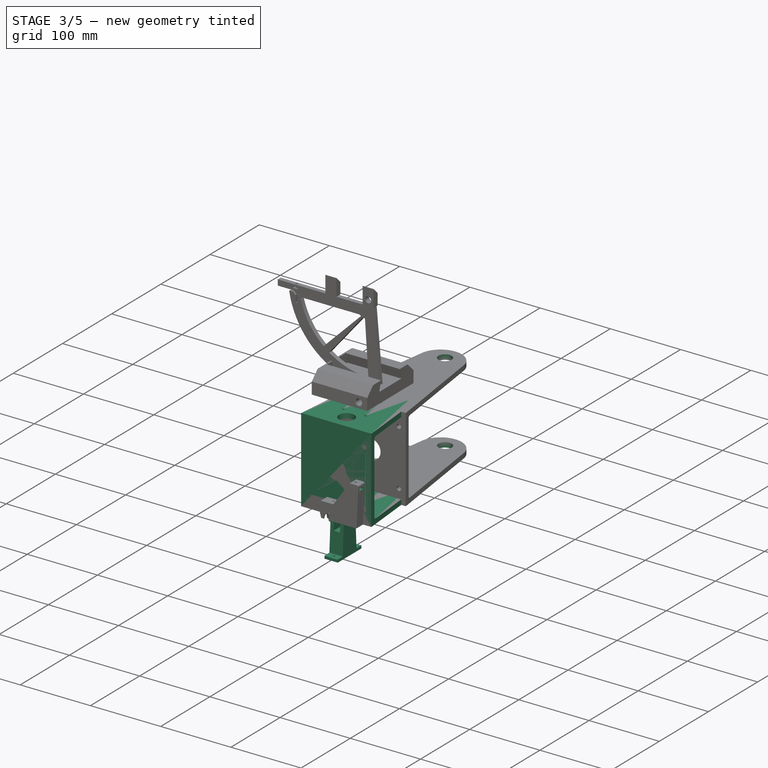
[diagram: stage 3 of 5 — iso view after this stage's code; geometry added in this stage tinted green]
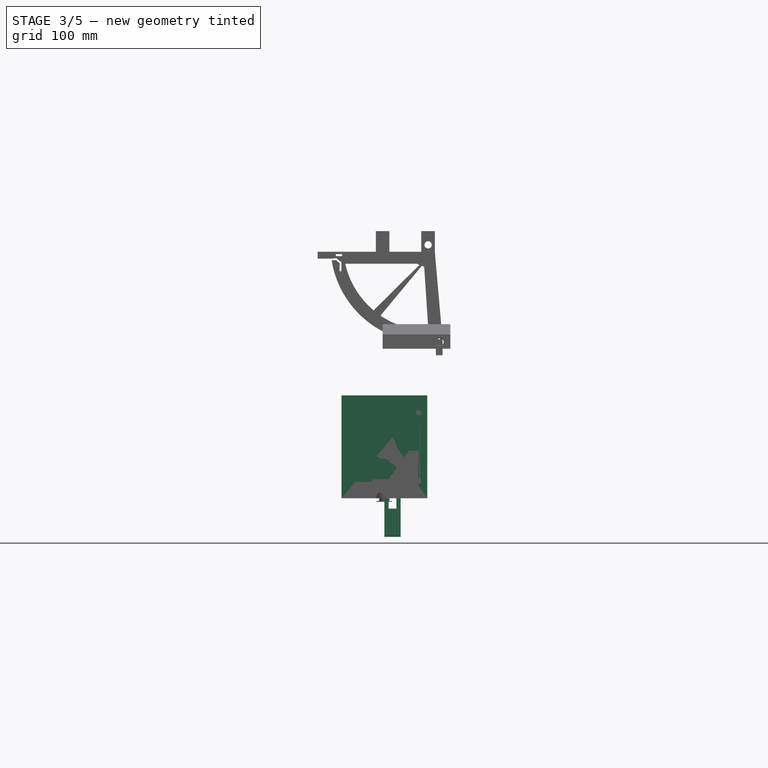
[diagram: stage 3 of 5 — front view after this stage's code; geometry added in this stage tinted green]
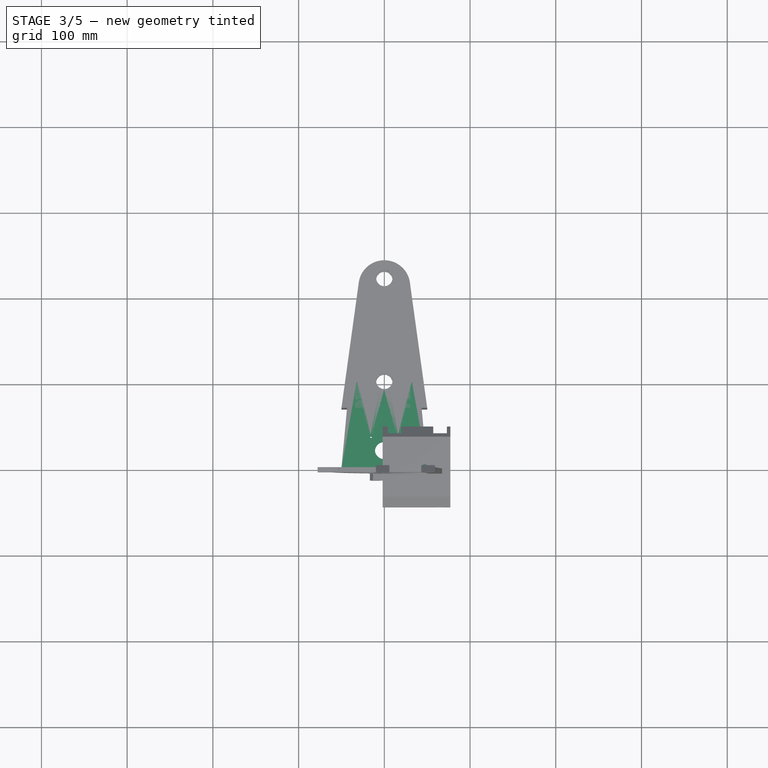
[diagram: stage 3 of 5 — top view after this stage's code; geometry added in this stage tinted green]
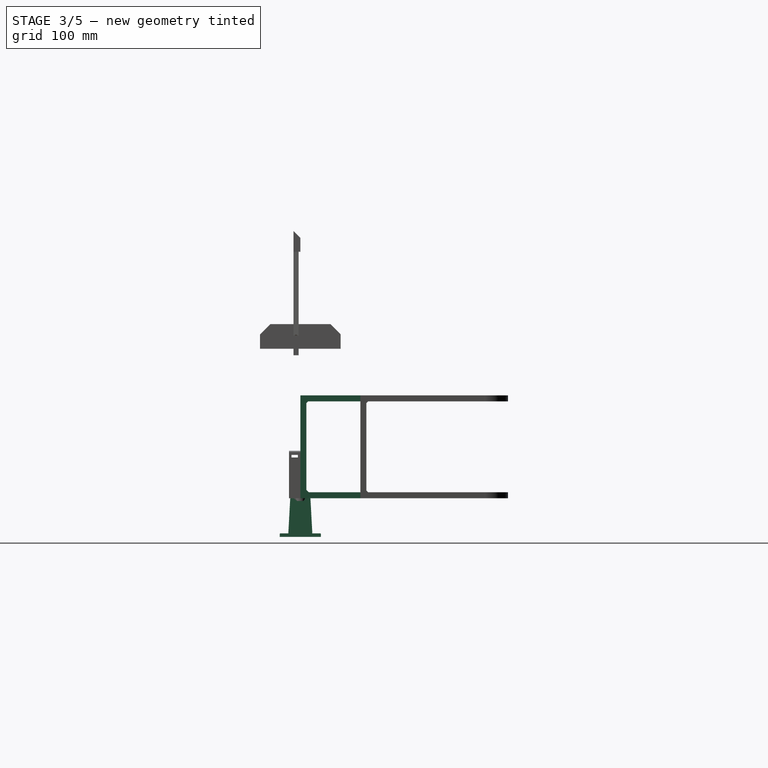
[diagram: stage 3 of 5 — right view after this stage's code; geometry added in this stage tinted green]
FEATURE [PartDesign::Body] Body004  label="GEARS"
  Group = -> [Sketch017,Pad011]
  Origin = -> Origin004
  Placement = pos=(101.8,0,0) rot=(0,0,1;0rad)
  Tip = -> Pad011
FEATURE [Sketcher::SketchObject] Sketch033
  FullyConstrained = true
  MapMode = 5
  Support = -> [XY_Plane008]
  sketch-geometry (2):
    g0: Circle CenterX=0 CenterY=0 CenterZ=0 NormalX=0 NormalY=0 NormalZ=1 AngleXU=0 Radius=4
    g1: Circle CenterX=0 CenterY=0 CenterZ=0 NormalX=0 NormalY=0 NormalZ=1 AngleXU=0 Radius=11
  constraints (4):
    c: Coincident(g0,g-1)
    c: Coincident(g1,g0)
    c: Radius(g0) = 4
    c: Radius(g1) = 11
FEATURE [PartDesign::Pad] Pad012
  Direction = (1,1,1)
  Length = 7
  Length2 = 100
  Profile = -> Sketch033
  Type = 0
FEATURE [Sketcher::SketchObject] Sketch035
  FullyConstrained = true
  MapMode = 5
  Placement = pos=(0,0,7) rot=(0,0,1;0rad)
  Support = -> [Pad012]
  sketch-geometry (2):
    g0: Circle CenterX=0 CenterY=0 CenterZ=0 NormalX=0 NormalY=0 NormalZ=1 AngleXU=0 Radius=5.5
    g1: Circle CenterX=0 CenterY=0 CenterZ=0 NormalX=0 NormalY=0 NormalZ=1 AngleXU=0 Radius=5.6
  constraints (4):
    c: Coincident(g0,g-1)
    c: Coincident(g1,g0)
    c: Radius(g0) = 5.5
    c: Radius(g1) = 5.6
FEATURE [PartDesign::Pocket] Pocket016
  BaseFeature = -> Pad012
  Length = 3
  Length2 = 100
  Midplane = true
  Profile = -> Sketch035
  Reversed = true
  Type = 0
FEATURE [Sketcher::SketchObject] Sketch034
  FullyConstrained = true
  MapMode = 5
  Placement = pos=(0,0,0) rot=(1,0,0;3.14159rad)
  Support = -> [Pocket016]
  sketch-geometry (2):
    g0: Circle CenterX=0 CenterY=0 CenterZ=0 NormalX=0 NormalY=0 NormalZ=1 AngleXU=0 Radius=5.5
    g1: Circle CenterX=0 CenterY=0 CenterZ=0 NormalX=0 NormalY=0 NormalZ=1 AngleXU=0 Radius=5.6
  constraints (4):
    c: Coincident(g0,g-1)
    c: Coincident(g1,g0)
    c: Radius(g0) = 5.5
    c: Radius(g1) = 5.6
FEATURE [PartDesign::Pocket] Pocket019
  BaseFeature = -> Pocket016
  Length = 3
  Length2 = 100
  Profile = -> Sketch034
  Type = 0
FEATURE [Sketcher::SketchObject] Sketch032
  FullyConstrained = true
  MapMode = 5
  Placement = pos=(0,0,7) rot=(0,0,1;0rad)
  Support = -> [Pocket019]
  sketch-geometry (2):
    g0: Circle CenterX=0 CenterY=0 CenterZ=0 NormalX=0 NormalY=0 NormalZ=1 AngleXU=0 Radius=9
    g1: Circle CenterX=0 CenterY=0 CenterZ=0 NormalX=0 NormalY=0 NormalZ=1 AngleXU=0 Radius=9.1
  constraints (4):
    c: Coincident(g0,g-1)
    c: Coincident(g1,g0)
    c: Radius(g0) = 9
    c: Radius(g1) = 9.1
FEATURE [PartDesign::Pocket] Pocket018
  BaseFeature = -> Pocket019
  Length = 1
  Length2 = 100
  Profile = -> Sketch032
  Type = 0
FEATURE [Sketcher::SketchObject] Sketch031
  FullyConstrained = true
  MapMode = 5
  Placement = pos=(0,0,0) rot=(1,0,0;3.14159rad)
  Support = -> [Pocket018]
  sketch-geometry (2):
    g0: Circle CenterX=0 CenterY=0 CenterZ=0 NormalX=0 NormalY=0 NormalZ=1 AngleXU=0 Radius=9
    g1: Circle CenterX=0 CenterY=0 CenterZ=0 NormalX=0 NormalY=0 NormalZ=1 AngleXU=0 Radius=9.1
  constraints (4):
    c: Coincident(g0,g-1)
    c: Coincident(g1,g0)
    c: Radius(g0) = 9
    c: Radius(g1) = 9.1
FEATURE [PartDesign::Pocket] Pocket017
  BaseFeature = -> Pocket018
  Length = 1
  Length2 = 100
  Profile = -> Sketch031
  Type = 0
FEATURE [PartDesign::Fillet] Fillet002
  Base = -> Pocket017 [Edge2,Edge3]
  BaseFeature = -> Pocket017
  Radius = 0.2
  SupportTransform = false
FEATURE [PartDesign::Body] Body019  label="CARCASA"
  Group = -> [Sketch085,Pad029,Sketch086,Pocket051,Sketch087,Pocket052,Chamfer009]
  Origin = -> Origin019
  Tip = -> Chamfer009
FEATURE [Sketcher::SketchObject] Sketch088
  FullyConstrained = true
  MapMode = 5
  Placement = pos=(0,0,0) rot=(0.57735,0.57735,0.57735;2.0944rad)
  Support = -> [YZ_Plane020]
  sketch-geometry (16):
    g0: ArcOfCircle CenterX=0 CenterY=0 CenterZ=0 NormalX=0 NormalY=0 NormalZ=1 AngleXU=0 Radius=12 StartAngle=0.25268 EndAngle=2.88891
    g1: LineSegment StartX=-11.619 StartY=3 StartZ=0 EndX=-14 EndY=-41 EndZ=0
    g2: LineSegment StartX=14 StartY=-41 StartZ=0 EndX=11.619 EndY=3 EndZ=0
    g3: LineSegment StartX=14 StartY=-41 StartZ=0 EndX=24 EndY=-41 EndZ=0
    g4: LineSegment StartX=24 StartY=-41 StartZ=0 EndX=24 EndY=-45 EndZ=0
    g5: LineSegment StartX=24 StartY=-45 StartZ=0 EndX=-24 EndY=-45 EndZ=0
    g6: LineSegment StartX=-24 StartY=-45 StartZ=0 EndX=-24 EndY=-41 EndZ=0
    g7: LineSegment StartX=-24 StartY=-41 StartZ=0 EndX=-14 EndY=-41 EndZ=0
    g8: LineSegment StartX=7.62102 StartY=3.5 StartZ=0 EndX=3.81051 EndY=10.1 EndZ=0
    g9: LineSegment StartX=3.81051 StartY=10.1 StartZ=0 EndX=-3.81051 EndY=10.1 EndZ=0
    g10: LineSegment StartX=-3.81051 StartY=10.1 StartZ=0 EndX=-7.62102 EndY=3.5 EndZ=0
    g11: LineSegment StartX=-7.62102 StartY=3.5 StartZ=0 EndX=-3.81051 EndY=-3.1 EndZ=0
    g12: LineSegment StartX=-3.81051 StartY=-3.1 StartZ=0 EndX=3.81051 EndY=-3.1 EndZ=0
    g13: LineSegment StartX=3.81051 StartY=-3.1 StartZ=0 EndX=7.62102 EndY=3.5 EndZ=0
    g14: Circle CenterX=0 CenterY=3.5 CenterZ=0 NormalX=0 NormalY=0 NormalZ=1 AngleXU=0 Radius=7.62102
    g15: GeomPoint X=0 Y=12 Z=0
  constraints (43):
    c: Coincident(g2,g0)
    c: Coincident(g0,g1)
    c: Symmetric(g2,g1,g-2)
    c: Coincident(g2,g3)
    c: Coincident(g3,g4)
    c: Coincident(g4,g5)
    c: Coincident(g5,g6)
    c: Coincident(g6,g7)
    c: Coincident(g7,g1)
    c: Horizontal(g7)
    c: Vertical(g6)
    c: Vertical(g4)
    c: DistanceY(g0,g0) = 3
    c: Radius(g0) = 12
    c: Horizontal(g0,g0)
    c: Symmetric(g3,g6,g-2)
    c: DistanceY(g4,g4) = 4
    c: DistanceY(g4,g0) = 45
    c: DistanceX(g1,g2) = 28
    c: DistanceX(g6,g3) = 48
    c: Coincident(g8,g9)
    c: Coincident(g9,g10)
    c: Coincident(g10,g11)
    c: Coincident(g11,g12)
    c: Coincident(g12,g13)
    c: Coincident(g13,g8)
    c: Equal(g8, g9-g13) x5
    c: PointOnObject(g8,g14)
    c: PointOnObject(g9,g14)
    c: PointOnObject(g10,g14)
    c: PointOnObject(g11,g14)
    c: PointOnObject(g12,g14)
    c: PointOnObject(g13,g14)
    c: Horizontal(g5)
    c: Distance(g10,g12) = 13.2
    c: Coincident(g-1,g0)
    c: PointOnObject(g14,g-2)
    c: DistanceY(g0,g14) = 3.5
    c: Horizontal(g9)
    c: Radius(g14) = 7.62102
    c: PointOnObject(g15,g0)
    c: PointOnObject(g15,g-2)
    c: DistanceY(g14,g15) = 8.5
FEATURE [PartDesign::Pad] Pad030
  Direction = (1,1,1)
  Length = 19
  Length2 = 100
  Placement = pos=(0,0,0) rot=(0.57735,0.57735,0.57735;2.0944rad)
  Profile = -> Sketch088
  Type = 0
FEATURE [Sketcher::SketchObject] Sketch090
  ExternalGeometry = -> [Pad030]
  FullyConstrained = true
  MapMode = 5
  Placement = pos=(0,0,0) rot=(1,0,0;1.5708rad)
  Support = -> [XZ_Plane020]
  sketch-geometry (4):
    g0: LineSegment StartX=5 StartY=15 StartZ=0 EndX=14 EndY=15 EndZ=0
    g1: LineSegment StartX=14 StartY=15 StartZ=0 EndX=14 EndY=-12 EndZ=0
    g2: LineSegment StartX=14 StartY=-12 StartZ=0 EndX=5 EndY=-12 EndZ=0
    g3: LineSegment StartX=5 StartY=-12 StartZ=0 EndX=5 EndY=15 EndZ=0
  constraints (13):
    c: Coincident(g0,g1)
    c: Coincident(g1,g2)
    c: Coincident(g2,g3)
    c: Coincident(g3,g0)
    c: Horizontal(g0)
    c: Horizontal(g2)
    c: Vertical(g1)
    c: Vertical(g3)
    c: DistanceX(g0,g0) = 9
    c: DistanceX(g-4,g0) = 5
    c: DistanceX(g0,g-5) = 5
    c: DistanceY(g-4,g0) = 12
    c: DistanceY(g1,g-5) = 15
FEATURE [PartDesign::Pocket] Pocket054
  BaseFeature = -> Pad030
  Length = 30
  Length2 = 100
  Midplane = true
  Placement = pos=(0,0,0) rot=(0.57735,0.57735,0.57735;2.0944rad)
  Profile = -> Sketch090
  Type = 0
FEATURE [Sketcher::SketchObject] Sketch089
  ExternalGeometry = -> [Pocket054]
  FullyConstrained = true
  MapMode = 5
  Placement = pos=(1.26e-14,-1.98e-14,-45) rot=(0.707107,0.707107,0;3.14159rad)
  Support = -> [Pocket054]
  sketch-geometry (2):
    g0: Circle CenterX=-18 CenterY=9.5 CenterZ=0 NormalX=0 NormalY=0 NormalZ=1 AngleXU=0 Radius=1.6
    g1: Circle CenterX=18 CenterY=9.5 CenterZ=0 NormalX=0 NormalY=0 NormalZ=1 AngleXU=0 Radius=1.6
  constraints (6):
    c: Equal(g0,g1)
    c: Radius(g0) = 1.6
    c: Symmetric(g0,g1,g-2)
    c: DistanceX(g0,g1) = 36
    c: DistanceY(g-4,g-4) = 19
    c: DistanceY(g-4,g0) = 9.5
FEATURE [PartDesign::Pocket] Pocket053
  BaseFeature = -> Pocket054
  Length = 5
  Length2 = 100
  Placement = pos=(0,0,0) rot=(0.57735,0.57735,0.57735;2.0944rad)
  Profile = -> Sketch089
  Type = 0
FEATURE [PartDesign::Chamfer] Chamfer010
  Angle = 45
  Base = -> Pocket053 [Edge49,Edge39,Edge37,Edge46]
  BaseFeature = -> Pocket053
  ChamferType = 0
  FlipDirection = false
  Placement = pos=(0,0,0) rot=(0.57735,0.57735,0.57735;2.0944rad)
  Size = 0.3
  Size2 = 1
  SupportTransform = false
FEATURE [PartDesign::Body] Body021  label="POLEA"
  Group = -> [Sketch091,Revolution001]
  Origin = -> Origin021
  Tip = -> Revolution001
FEATURE [Sketcher::SketchObject] Sketch092
  FullyConstrained = true
  MapMode = 5
  Placement = pos=(0,0,0) rot=(0.57735,0.57735,0.57735;2.0944rad)
  Support = -> [YZ_Plane022]
  sketch-geometry (8):
    g0: LineSegment StartX=1.55 StartY=4.1 StartZ=0 EndX=1.55 EndY=-4.1 EndZ=0
    g1: LineSegment StartX=1.55 StartY=-4.1 StartZ=0 EndX=9 EndY=-4.1 EndZ=0
    g2: LineSegment StartX=9 StartY=-4.1 StartZ=0 EndX=9 EndY=-3.1 EndZ=0
    g3: LineSegment StartX=9 StartY=-3.1 StartZ=0 EndX=6 EndY=-3.1 EndZ=0
    g4: LineSegment StartX=6 StartY=-3.1 StartZ=0 EndX=6 EndY=3.1 EndZ=0
    g5: LineSegment StartX=6 StartY=3.1 StartZ=0 EndX=9 EndY=3.1 EndZ=0
    g6: LineSegment StartX=9 StartY=3.1 StartZ=0 EndX=9 EndY=4.1 EndZ=0
    g7: LineSegment StartX=9 StartY=4.1 StartZ=0 EndX=1.55 EndY=4.1 EndZ=0
  constraints (22):
    c: Coincident(g0,g1)
    c: Horizontal(g1)
    c: Coincident(g1,g2)
    c: Vertical(g2)
    c: Coincident(g2,g3)
    c: Horizontal(g3)
    c: Coincident(g3,g4)
    c: Coincident(g4,g5)
    c: Horizontal(g5)
    c: Coincident(g5,g6)
    c: Vertical(g6)
    c: Coincident(g6,g7)
    c: Coincident(g7,g0)
    c: Horizontal(g7)
    c: Vertical(g5,g2)
    c: DistanceX(g-1,g0) = 1.55
    c: DistanceX(g-1,g4) = 6
    c: DistanceY(g0,g0) = 8.2
    c: Symmetric(g0,g0,g-1)
    c: DistanceY(g3,g4) = 6.2
    c: Symmetric(g4,g3,g-1)
    c: DistanceX(g-1,g6) = 9
FEATURE [PartDesign::Revolution] Revolution002
  Angle = 360
  Axis = (-2e-16,3e-16,1)
  Base = (0,0,0)
  Placement = pos=(0,0,0) rot=(0.57735,0.57735,0.57735;2.0944rad)
  Profile = -> Sketch092
  ReferenceAxis = -> Sketch092 [V_Axis]
  Reversed = true
FEATURE [PartDesign::Body] Body022  label="POLEA001"
  Group = -> [Sketch092,Revolution002]
  Origin = -> Origin022
  Placement = pos=(103.2,21.05,72.6) rot=(0,0,1;0rad)
  Tip = -> Revolution002
FEATURE [App::DocumentObjectGroup] Grupo  label="Patrones"
  Group = -> [Body021,Body017,Body003,Body005,Body006,Body007,Body,Body012]
FEATURE [Sketcher::SketchObject] Sketch100
  FullyConstrained = true
  Placement = pos=(0,0,120) rot=(0,1,0;1.5708rad)
  sketch-geometry (6):
    g0: LineSegment StartX=7 StartY=252.37 StartZ=0 EndX=113 EndY=252.37 EndZ=0
    g1: LineSegment StartX=113 StartY=252.37 StartZ=0 EndX=113 EndY=9 EndZ=0
    g2: LineSegment StartX=111 StartY=7 StartZ=0 EndX=9 EndY=7 EndZ=0
    g3: LineSegment StartX=7 StartY=9 StartZ=0 EndX=7 EndY=252.37 EndZ=0
    g4: LineSegment StartX=7 StartY=9 StartZ=0 EndX=9 EndY=7 EndZ=0
    g5: LineSegment StartX=113 StartY=9 StartZ=0 EndX=111 EndY=7 EndZ=0
  constraints (18):
    c: Horizontal(g0)
    c: Horizontal(g2)
    c: Vertical(g1)
    c: Vertical(g3)
    c: Coincident(g4,g3)
    c: Coincident(g4,g2)
    c: Coincident(g5,g1)
    c: Coincident(g5,g2)
    c: DistanceY(g-1,g2) = 7
    c: DistanceX(g-1,g3) = 7
    c: DistanceX(g3,g1) = 106
    c: Horizontal(g1,g3)
    c: DistanceX(g3,g2) = 2
    c: DistanceX(g2,g1) = 2
    c: DistanceY(g2,g3) = 2
    c: Coincident(g0,g3)
    c: Coincident(g0,g1)
    c: DistanceY(g0) = 252.37
FEATURE [Sketcher::SketchObject] Sketch102
  FullyConstrained = true
  MapMode = 3
  Placement = pos=(-2.8e-15,0,0) rot=(0,0,1;0rad)
  sketch-geometry (15):
    g0: LineSegment StartX=-50 StartY=0 StartZ=0 EndX=50 EndY=0 EndZ=0
    g1: LineSegment StartX=-50 StartY=0 StartZ=0 EndX=-30 EndY=215 EndZ=0
    g2: LineSegment StartX=50 StartY=0 StartZ=0 EndX=30 EndY=215 EndZ=0
    g3: Circle CenterX=0 CenterY=221.15 CenterZ=0 NormalX=0 NormalY=0 NormalZ=1 AngleXU=0 Radius=9.5
    g4: ArcOfCircle CenterX=0 CenterY=211.65 CenterZ=0 NormalX=0 NormalY=0 NormalZ=1 AngleXU=0 Radius=30.1865 StartAngle=0.111206 EndAngle=3.03039
    g5: Circle CenterX=0 CenterY=21.15 CenterZ=0 NormalX=0 NormalY=0 NormalZ=1 AngleXU=0 Radius=11
    g6: Circle CenterX=0 CenterY=101.15 CenterZ=0 NormalX=0 NormalY=0 NormalZ=1 AngleXU=0 Radius=9.5
    g7: Circle CenterX=-15.5 CenterY=36.65 CenterZ=0 NormalX=0 NormalY=0 NormalZ=1 AngleXU=0 Radius=1.65
    g8: Circle CenterX=15.5 CenterY=36.65 CenterZ=0 NormalX=0 NormalY=0 NormalZ=1 AngleXU=0 Radius=1.65
    g9: Circle CenterX=-30.5907 CenterY=101.15 CenterZ=0 NormalX=0 NormalY=0 NormalZ=1 AngleXU=0 Radius=1.6
    g10: Circle CenterX=30.5907 CenterY=101.15 CenterZ=0 NormalX=0 NormalY=0 NormalZ=1 AngleXU=0 Radius=1.6
    g11: Circle CenterX=-25.0093 CenterY=161.15 CenterZ=0 NormalX=0 NormalY=0 NormalZ=1 AngleXU=0 Radius=1.6
    g12: Circle CenterX=25.0093 CenterY=161.15 CenterZ=0 NormalX=0 NormalY=0 NormalZ=1 AngleXU=0 Radius=1.6
    g13: GeomPoint X=-40.5907 Y=101.15 Z=0
    g14: GeomPoint X=-35.0093 Y=161.15 Z=0
  constraints (41):
    c: PointOnObject(g0,g-1)
    c: Coincident(g1,g0)
    c: Coincident(g2,g0)
    c: Symmetric(g0,g0,g-1)
    c: DistanceX(g0,g0) = 100
    c: DistanceX(g1,g2) = 60
    c: Symmetric(g1,g2,g-2)
    c: PointOnObject(g4,g-2)
    c: Coincident(g4,g1)
    c: PointOnObject(g4,g2)
    c: Radius(g3) = 9.5
    c: DistanceY(g1) = 215
    c: PointOnObject(g4,g3)
    c: Radius(g5) = 11
    c: DistanceY(g0,g5) = 21.15
    c: PointOnObject(g5,g-2)
    c: Radius(g6) = 9.5
    c: DistanceY(g5,g6) = 80
    c: DistanceY(g6,g3) = 120
    c: PointOnObject(g3,g-2)
    c: PointOnObject(g6,g-2)
    c: Horizontal(g7,g8)
    c: DistanceX(g7,g8) = 31
    c: DistanceY(g5,g7) = 15.5
    c: DistanceX(g7,g5) = 15.5
    c: Equal(g7,g8)
    c: Radius(g7) = 1.65
    c: Equal(g9,g11)
    c: Equal(g9,g12)
    c: Equal(g9,g10)
    c: Radius(g9) = 1.6
    c: Symmetric(g9,g10,g-2)
    c: Symmetric(g11,g12,g-2)
    c: Horizontal(g9,g6)
    c: PointOnObject(g13,g1)
    c: Horizontal(g13,g9)
    c: DistanceX(g13,g9) = 10
    c: PointOnObject(g14,g1)
    c: Horizontal(g11,g14)
    c: DistanceX(g14,g11) = 10
    c: DistanceY(g12,g3) = 60
FEATURE [PartDesign::Pad] Pad032
  Direction = (1,1,1)
  Length = 120
  Length2 = 100
  Placement = pos=(-2.8e-15,0,0) rot=(0,0,1;0rad)
  Profile = -> Sketch102
  Type = 0
FEATURE [PartDesign::Pocket] Pocket061
  BaseFeature = -> Pad032
  Length = 304.8
  Length2 = 100
  Midplane = true
  Placement = pos=(-2.8e-15,0,0) rot=(0,0,1;0rad)
  Profile = -> Sketch100
  Type = 0
FEATURE [PartDesign::Body] Body024  label="ALEROS"
  Group = -> [Sketch102,Pad032,Sketch100,Pocket061,Sketch099,Pocket059,Sketch098,Pocket060,Sketch101,Pocket062,Chamfer012]
  Origin = -> Origin024
  Placement = pos=(0,60,75.6) rot=(1,0,0;1.5708rad)
  Tip = -> Chamfer012
FEATURE [Sketcher::SketchObject] Sketch105
  FullyConstrained = true
  Placement = pos=(0,0,120) rot=(0,1,0;1.5708rad)
  sketch-geometry (6):
    g0: LineSegment StartX=7 StartY=252.37 StartZ=0 EndX=113 EndY=252.37 EndZ=0
    g1: LineSegment StartX=113 StartY=252.37 StartZ=0 EndX=113 EndY=9 EndZ=0
    g2: LineSegment StartX=111 StartY=7 StartZ=0 EndX=9 EndY=7 EndZ=0
    g3: LineSegment StartX=7 StartY=9 StartZ=0 EndX=7 EndY=252.37 EndZ=0
    g4: LineSegment StartX=7 StartY=9 StartZ=0 EndX=9 EndY=7 EndZ=0
    g5: LineSegment StartX=113 StartY=9 StartZ=0 EndX=111 EndY=7 EndZ=0
  constraints (18):
    c: Horizontal(g0)
    c: Horizontal(g2)
    c: Vertical(g1)
    c: Vertical(g3)
    c: Coincident(g4,g3)
    c: Coincident(g4,g2)
    c: Coincident(g5,g1)
    c: Coincident(g5,g2)
    c: DistanceY(g-1,g2) = 7
    c: DistanceX(g-1,g3) = 7
    c: DistanceX(g3,g1) = 106
    c: Horizontal(g1,g3)
    c: DistanceX(g3,g2) = 2
    c: DistanceX(g2,g1) = 2
    c: DistanceY(g2,g3) = 2
    c: Coincident(g0,g3)
    c: Coincident(g0,g1)
    c: DistanceY(g0) = 252.37
FEATURE [Sketcher::SketchObject] Sketch107
  FullyConstrained = true
  MapMode = 3
  Placement = pos=(-2.8e-15,0,0) rot=(0,0,1;0rad)
  sketch-geometry (15):
    g0: LineSegment StartX=-50 StartY=0 StartZ=0 EndX=50 EndY=0 EndZ=0
    g1: LineSegment StartX=-50 StartY=0 StartZ=0 EndX=-30 EndY=215 EndZ=0
    g2: LineSegment StartX=50 StartY=0 StartZ=0 EndX=30 EndY=215 EndZ=0
    g3: Circle CenterX=0 CenterY=221.15 CenterZ=0 NormalX=0 NormalY=0 NormalZ=1 AngleXU=0 Radius=9.5
    g4: ArcOfCircle CenterX=0 CenterY=211.65 CenterZ=0 NormalX=0 NormalY=0 NormalZ=1 AngleXU=0 Radius=30.1865 StartAngle=0.111206 EndAngle=3.03039
    g5: Circle CenterX=0 CenterY=21.15 CenterZ=0 NormalX=0 NormalY=0 NormalZ=1 AngleXU=0 Radius=11
    g6: Circle CenterX=0 CenterY=101.15 CenterZ=0 NormalX=0 NormalY=0 NormalZ=1 AngleXU=0 Radius=9.5
    g7: Circle CenterX=-15.5 CenterY=36.65 CenterZ=0 NormalX=0 NormalY=0 NormalZ=1 AngleXU=0 Radius=1.65
    g8: Circle CenterX=15.5 CenterY=36.65 CenterZ=0 NormalX=0 NormalY=0 NormalZ=1 AngleXU=0 Radius=1.65
    g9: Circle CenterX=-30.5907 CenterY=101.15 CenterZ=0 NormalX=0 NormalY=0 NormalZ=1 AngleXU=0 Radius=1.6
    g10: Circle CenterX=30.5907 CenterY=101.15 CenterZ=0 NormalX=0 NormalY=0 NormalZ=1 AngleXU=0 Radius=1.6
    g11: Circle CenterX=-25.0093 CenterY=161.15 CenterZ=0 NormalX=0 NormalY=0 NormalZ=1 AngleXU=0 Radius=1.6
    g12: Circle CenterX=25.0093 CenterY=161.15 CenterZ=0 NormalX=0 NormalY=0 NormalZ=1 AngleXU=0 Radius=1.6
    g13: GeomPoint X=-40.5907 Y=101.15 Z=0
    g14: GeomPoint X=-35.0093 Y=161.15 Z=0
  constraints (41):
    c: PointOnObject(g0,g-1)
    c: Coincident(g1,g0)
    c: Coincident(g2,g0)
    c: Symmetric(g0,g0,g-1)
    c: DistanceX(g0,g0) = 100
    c: DistanceX(g1,g2) = 60
    c: Symmetric(g1,g2,g-2)
    c: PointOnObject(g4,g-2)
    c: Coincident(g4,g1)
    c: PointOnObject(g4,g2)
    c: Radius(g3) = 9.5
    c: DistanceY(g1) = 215
    c: PointOnObject(g4,g3)
    c: Radius(g5) = 11
    c: DistanceY(g0,g5) = 21.15
    c: PointOnObject(g5,g-2)
    c: Radius(g6) = 9.5
    c: DistanceY(g5,g6) = 80
    c: DistanceY(g6,g3) = 120
    c: PointOnObject(g3,g-2)
    c: PointOnObject(g6,g-2)
    c: Horizontal(g7,g8)
    c: DistanceX(g7,g8) = 31
    c: DistanceY(g5,g7) = 15.5
    c: DistanceX(g7,g5) = 15.5
    c: Equal(g7,g8)
    c: Radius(g7) = 1.65
    c: Equal(g9,g11)
    c: Equal(g9,g12)
    c: Equal(g9,g10)
    c: Radius(g9) = 1.6
    c: Symmetric(g9,g10,g-2)
    c: Symmetric(g11,g12,g-2)
    c: Horizontal(g9,g6)
    c: PointOnObject(g13,g1)
    c: Horizontal(g13,g9)
    c: DistanceX(g13,g9) = 10
    c: PointOnObject(g14,g1)
    c: Horizontal(g11,g14)
    c: DistanceX(g14,g11) = 10
    c: DistanceY(g12,g3) = 60
FEATURE [PartDesign::Pad] Pad033
  Direction = (1,1,1)
  Length = 120
  Length2 = 100
  Placement = pos=(-2.8e-15,0,0) rot=(0,0,1;0rad)
  Profile = -> Sketch107
  Type = 0
FEATURE [PartDesign::Pocket] Pocket065
  BaseFeature = -> Pad033
  Length = 304.8
  Length2 = 100
  Midplane = true
  Placement = pos=(-2.8e-15,0,0) rot=(0,0,1;0rad)
  Profile = -> Sketch105
  Type = 0
FEATURE [Sketcher::SketchObject] Sketch104
  ExternalGeometry = -> [Pocket065]
  FullyConstrained = true
  MapMode = 5
  Placement = pos=(-2.8e-15,0,0) rot=(1,0,0;1.5708rad)
  Support = -> [Pocket065]
  sketch-geometry (5):
    g0: Circle CenterX=-40 CenterY=100 CenterZ=0 NormalX=0 NormalY=0 NormalZ=1 AngleXU=0 Radius=3.1
    g1: Circle CenterX=40 CenterY=100 CenterZ=0 NormalX=0 NormalY=0 NormalZ=1 AngleXU=0 Radius=3.1
    g2: Circle CenterX=-40 CenterY=20 CenterZ=0 NormalX=0 NormalY=0 NormalZ=1 AngleXU=0 Radius=3.1
    g3: Circle CenterX=40 CenterY=20 CenterZ=0 NormalX=0 NormalY=0 NormalZ=1 AngleXU=0 Radius=3.1
    g4: Circle CenterX=-1.7e-14 CenterY=60 CenterZ=0 NormalX=0 NormalY=0 NormalZ=1 AngleXU=0 Radius=14
  constraints (12):
    c: Radius(g4) = 14
    c: Symmetric(g-3,g-4,g4)
    c: Equal(g0,g1)
    c: Equal(g0,g2)
    c: Equal(g0,g3)
    c: Radius(g0) = 3.1
    c: Symmetric(g0,g3,g4)
    c: Symmetric(g2,g1,g4)
    c: DistanceX(g0,g1) = 80
    c: DistanceY(g2,g0) = 80
    c: Horizontal(g1,g0)
    c: Vertical(g0,g2)
FEATURE [PartDesign::Pocket] Pocket063
  BaseFeature = -> Pocket065
  Length = 8
  Length2 = 100
  Placement = pos=(-2.8e-15,0,0) rot=(0,0,1;0rad)
  Profile = -> Sketch104
  Type = 0
FEATURE [Sketcher::SketchObject] Sketch103
  ExternalGeometry = -> [Pocket063]
  FullyConstrained = true
  MapMode = 5
  Placement = pos=(-2.8e-15,0,120) rot=(0,0,1;0rad)
  Support = -> [Pocket063]
  sketch-geometry (2):
    g0: Circle CenterX=0 CenterY=101.15 CenterZ=0 NormalX=0 NormalY=0 NormalZ=1 AngleXU=0 Radius=11.15
    g1: Circle CenterX=0 CenterY=221.15 CenterZ=0 NormalX=0 NormalY=0 NormalZ=1 AngleXU=0 Radius=11.15
  constraints (4):
    c: Radius(g1) = 11.15
    c: Radius(g0) = 11.15
    c: Coincident(g1,g-4)
    c: Coincident(g0,g-3)
FEATURE [PartDesign::Pocket] Pocket064
  BaseFeature = -> Pocket063
  Length = 5
  Length2 = 100
  Placement = pos=(-2.8e-15,0,0) rot=(0,0,1;0rad)
  Profile = -> Sketch103
  Type = 0
FEATURE [Sketcher::SketchObject] Sketch106
  ExternalGeometry = -> [Pocket064]
  FullyConstrained = true
  MapMode = 5
  Placement = pos=(-2.8e-15,0,0) rot=(1,0,0;3.14159rad)
  Support = -> [Pocket064]
  sketch-geometry (2):
    g0: Circle CenterX=0 CenterY=-221.15 CenterZ=0 NormalX=0 NormalY=0 NormalZ=1 AngleXU=0 Radius=11.15
    g1: Circle CenterX=0 CenterY=-101.15 CenterZ=0 NormalX=0 NormalY=0 NormalZ=1 AngleXU=0 Radius=11.15
  constraints (4):
    c: Radius(g1) = 11.15
    c: Radius(g0) = 11.15
    c: Coincident(g0,g-6)
    c: Coincident(g1,g-5)
FEATURE [PartDesign::Pocket] Pocket066
  BaseFeature = -> Pocket064
  Length = 5
  Length2 = 100
  Placement = pos=(-2.8e-15,0,0) rot=(0,0,1;0rad)
  Profile = -> Sketch106
  Type = 0
FEATURE [Sketcher::SketchObject] Sketch109
  ExternalGeometry = -> [Pad034]
  FullyConstrained = true
  MapMode = 5
  Placement = pos=(0,0,0) rot=(1,0,0;3.14159rad)
  Support = -> [Pad034]
  sketch-geometry (2):
    g0: Circle CenterX=4.98091 CenterY=6.6 CenterZ=0 NormalX=0 NormalY=0 NormalZ=1 AngleXU=0 Radius=1.55
    g1: Circle CenterX=20.3584 CenterY=6.6 CenterZ=0 NormalX=0 NormalY=0 NormalZ=1 AngleXU=0 Radius=1.55
  constraints (7):
    c: Equal(g0,g1)
    c: Radius(g0) = 1.55
    c: Horizontal(g0,g1)
    c: DistanceY(g-3,g-3) = 13.2
    c: DistanceX(g0,g1) = 15.3775
    c: DistanceY(g-1,g0) = 6.6
    c: DistanceX(g1,g-4) = 20
FEATURE [PartDesign::Pocket] Pocket067
  BaseFeature = -> Pad034
  Length = 80
  Length2 = 100
  Placement = pos=(0,0,0) rot=(1,0,0;1.5708rad)
  Profile = -> Sketch109
  Type = 0
FEATURE [Sketcher::SketchObject] Sketch110
  ExternalGeometry = -> [Pocket067]
  FullyConstrained = true
  MapMode = 5
  Placement = pos=(0,3.67e-14,55.5) rot=(0,0,1;3.14159rad)
  Support = -> [Pocket067]
  sketch-geometry (5):
    g0: LineSegment StartX=-28.3584 StartY=10.3 StartZ=0 EndX=0 EndY=10.3 EndZ=0
    g1: LineSegment StartX=0 StartY=10.3 StartZ=0 EndX=0 EndY=2.9 EndZ=0
    g2: LineSegment StartX=0 StartY=2.9 StartZ=0 EndX=-28.3584 EndY=2.9 EndZ=0
    g3: LineSegment StartX=-28.3584 StartY=2.9 StartZ=0 EndX=-28.3584 EndY=10.3 EndZ=0
    g4: GeomPoint X=-28.3584 Y=6.6 Z=0
  constraints (12):
    c: Coincident(g0,g1)
    c: Coincident(g1,g2)
    c: Coincident(g2,g3)
    c: Coincident(g3,g0)
    c: Horizontal(g0)
    c: Horizontal(g2)
    c: Vertical(g1)
    c: Vertical(g3)
    c: Symmetric(g0,g2,g4)
    c: DistanceY(g3,g3) = 7.4
    c: Vertical(g1,g-1)
    c: Symmetric(g-5,g-5,g4)
FEATURE [PartDesign::Pocket] Pocket068
  BaseFeature = -> Pocket067
  Length = 51
  Length2 = 100
  Placement = pos=(0,0,0) rot=(1,0,0;1.5708rad)
  Profile = -> Sketch110
  Type = 0
FEATURE [Sketcher::SketchObject] Sketch112
  ExternalGeometry = -> [Pocket068]
  FullyConstrained = true
  MapMode = 5
  Placement = pos=(0,3.67e-14,55.5) rot=(0,0,1;3.14159rad)
  Support = -> [Pocket068]
  sketch-geometry (1):
    g0: Circle CenterX=-32.4934 CenterY=6.6 CenterZ=0 NormalX=0 NormalY=0 NormalZ=1 AngleXU=0 Radius=1.55
  constraints (3):
    c: Radius(g0) = 1.55
    c: Horizontal(g0,g-3)
    c: DistanceX(g0,g-3) = 12.135
FEATURE [PartDesign::Pocket] Pocket069
  BaseFeature = -> Pocket068
  Length = 10
  Length2 = 100
  Placement = pos=(0,0,0) rot=(1,0,0;1.5708rad)
  Profile = -> Sketch112
  Type = 0
FEATURE [PartDesign::Fillet] Fillet
  Base = -> Pocket069 [Edge1]
  BaseFeature = -> Pocket069
  Placement = pos=(0,0,0) rot=(1,0,0;1.5708rad)
  Radius = 2
  SupportTransform = false
FEATURE [Sketcher::SketchObject] Sketch113
  ExternalGeometry = -> [Fillet]
  FullyConstrained = true
  MapMode = 5
  Placement = pos=(40.3584,0,0) rot=(0.707107,0,0.707107;3.14159rad)
  Support = -> [Fillet]
  sketch-geometry (5):
    g0: LineSegment StartX=47.5 StartY=10.3 StartZ=0 EndX=50.7 EndY=10.3 EndZ=0
    g1: LineSegment StartX=50.7 StartY=10.3 StartZ=0 EndX=50.7 EndY=2.9 EndZ=0
    g2: LineSegment StartX=50.7 StartY=2.9 StartZ=0 EndX=47.5 EndY=2.9 EndZ=0
    g3: LineSegment StartX=47.5 StartY=2.9 StartZ=0 EndX=47.5 EndY=10.3 EndZ=0
    g4: GeomPoint X=47.5 Y=6.6 Z=0
  constraints (12):
    c: Coincident(g0,g1)
    c: Coincident(g1,g2)
    c: Coincident(g2,g3)
    c: Coincident(g3,g0)
    c: Horizontal(g0)
    c: Horizontal(g2)
    c: Vertical(g1)
    c: Vertical(g3)
    c: DistanceX(g0,g0) = 3.2
    c: DistanceY(g1,g1) = 7.4
    c: Symmetric(g0,g2,g4)
    c: Symmetric(g-3,g-3,g4)
FEATURE [PartDesign::Pocket] Pocket070
  BaseFeature = -> Fillet
  Length = 12
  Length2 = 100
  Placement = pos=(0,0,0) rot=(1,0,0;1.5708rad)
  Profile = -> Sketch113
  Type = 0
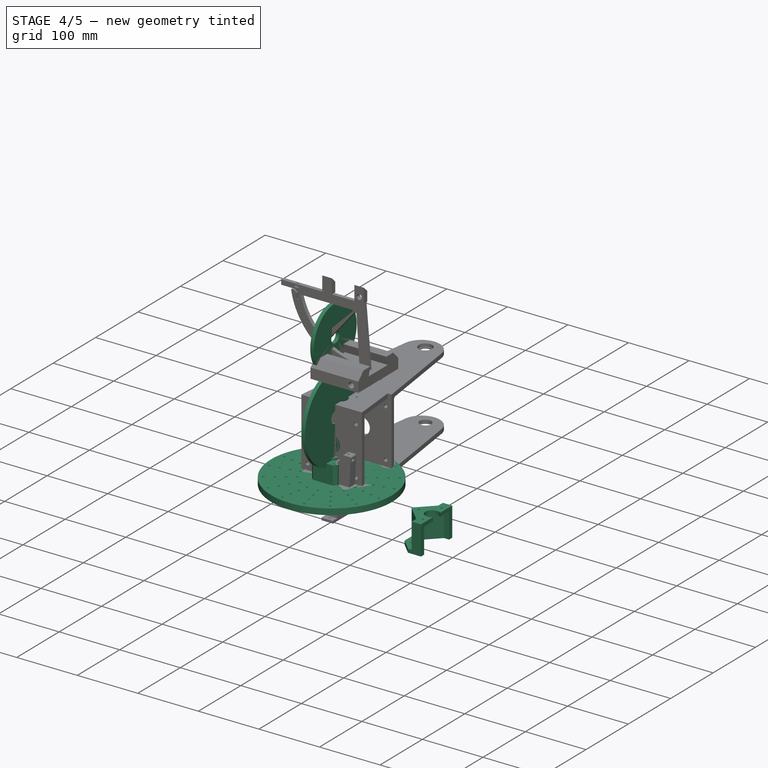
[diagram: stage 4 of 5 — iso view after this stage's code; geometry added in this stage tinted green]
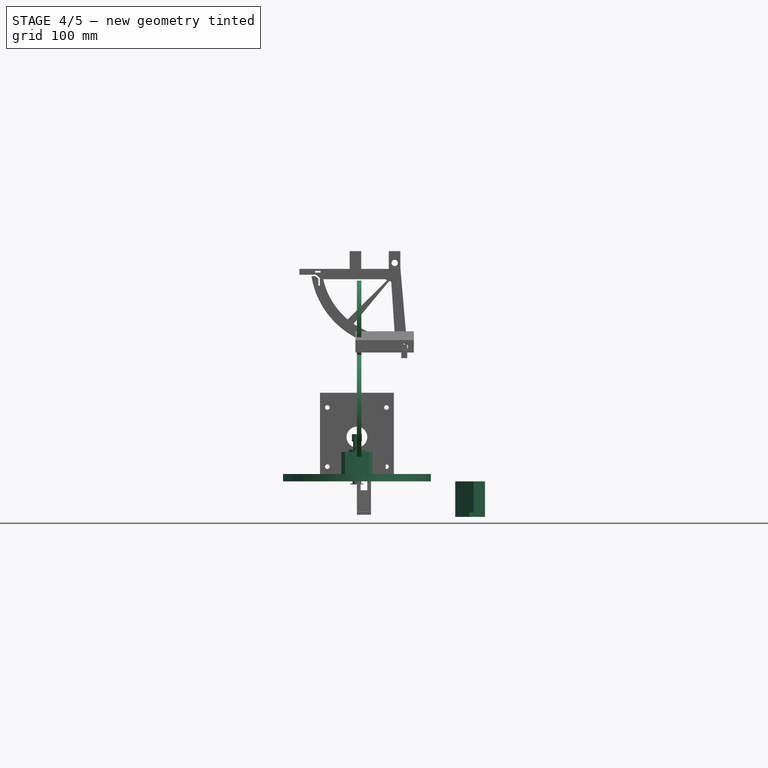
[diagram: stage 4 of 5 — front view after this stage's code; geometry added in this stage tinted green]
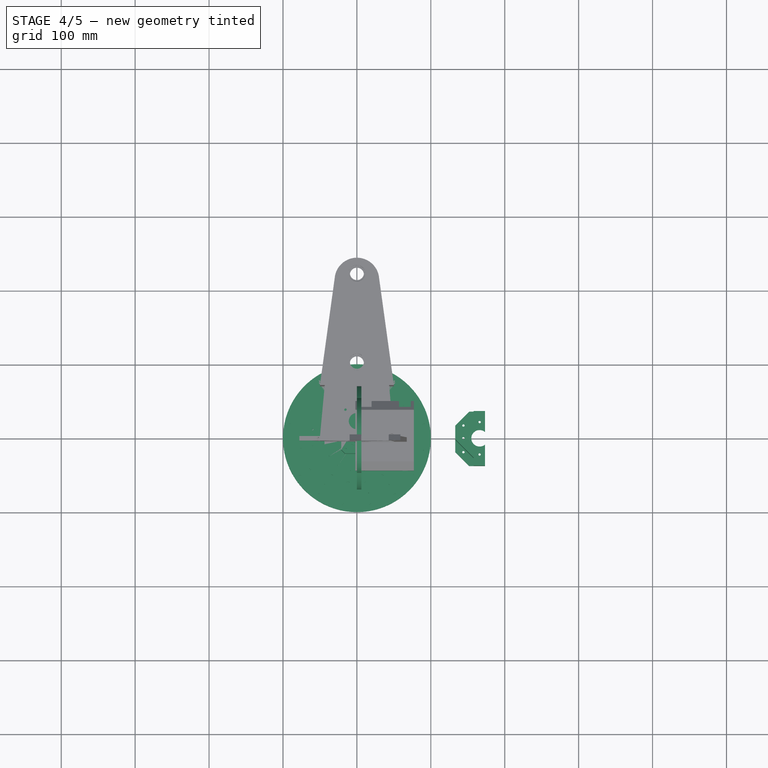
[diagram: stage 4 of 5 — top view after this stage's code; geometry added in this stage tinted green]
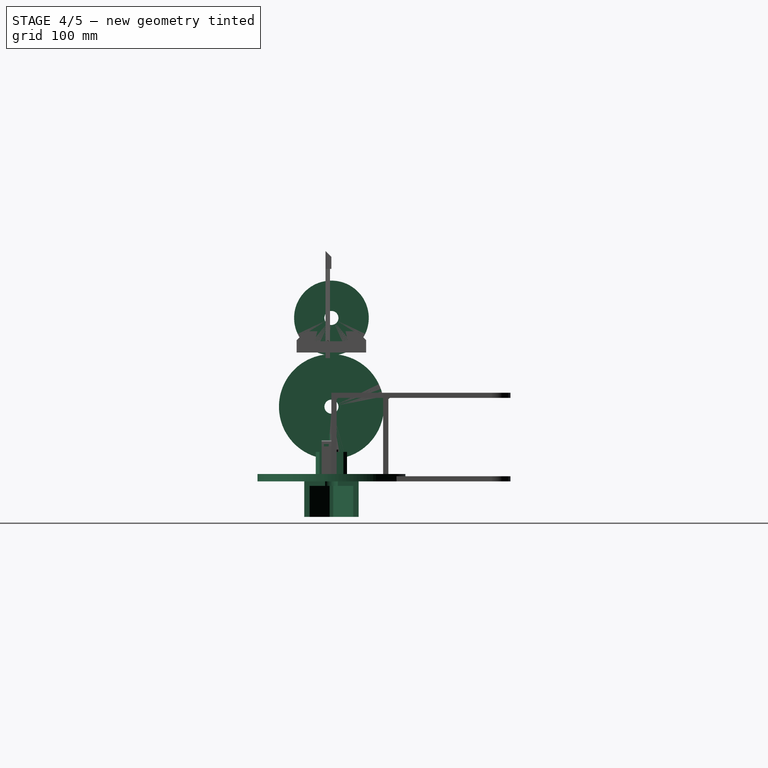
[diagram: stage 4 of 5 — right view after this stage's code; geometry added in this stage tinted green]
FEATURE [Sketcher::SketchObject] Sketch006
  FullyConstrained = true
  MapMode = 5
  Support = -> [XY_Plane002]
  sketch-geometry (17):
    g0: Circle CenterX=0 CenterY=0 CenterZ=0 NormalX=0 NormalY=0 NormalZ=1 AngleXU=0 Radius=97.1
    g1: Circle CenterX=0 CenterY=0 CenterZ=0 NormalX=0 NormalY=0 NormalZ=1 AngleXU=0 Radius=6.35
    g2: Circle CenterX=-40 CenterY=40 CenterZ=0 NormalX=0 NormalY=0 NormalZ=1 AngleXU=0 Radius=3.15
    g3: Circle CenterX=40 CenterY=40 CenterZ=0 NormalX=0 NormalY=0 NormalZ=1 AngleXU=0 Radius=3.15
    g4: Circle CenterX=40 CenterY=-40 CenterZ=0 NormalX=0 NormalY=0 NormalZ=1 AngleXU=0 Radius=3.15
    g5: Circle CenterX=-40 CenterY=-40 CenterZ=0 NormalX=0 NormalY=0 NormalZ=1 AngleXU=0 Radius=3.15
    g6: Circle CenterX=0 CenterY=92 CenterZ=0 NormalX=0 NormalY=0 NormalZ=1 AngleXU=0 Radius=1.6
    g7: Circle CenterX=0 CenterY=70 CenterZ=0 NormalX=0 NormalY=0 NormalZ=1 AngleXU=0 Radius=1.6
    g8: Circle CenterX=70 CenterY=0 CenterZ=0 NormalX=0 NormalY=0 NormalZ=1 AngleXU=0 Radius=1.6
    g9: Circle CenterX=92 CenterY=0 CenterZ=0 NormalX=0 NormalY=0 NormalZ=1 AngleXU=0 Radius=1.6
    g10: Circle CenterX=0 CenterY=-70 CenterZ=0 NormalX=0 NormalY=0 NormalZ=1 AngleXU=0 Radius=1.6
    g11: Circle CenterX=0 CenterY=-92 CenterZ=0 NormalX=0 NormalY=0 NormalZ=1 AngleXU=0 Radius=1.6
    g12: Circle CenterX=-92 CenterY=0 CenterZ=0 NormalX=0 NormalY=0 NormalZ=1 AngleXU=0 Radius=1.6
    g13: Circle CenterX=-70 CenterY=0 CenterZ=0 NormalX=0 NormalY=0 NormalZ=1 AngleXU=0 Radius=1.6
    g14: Circle CenterX=0 CenterY=9 CenterZ=0 NormalX=0 NormalY=0 NormalZ=1 AngleXU=0 Radius=1.55
    g15: Circle CenterX=7.79423 CenterY=-4.5 CenterZ=0 NormalX=0 NormalY=0 NormalZ=1 AngleXU=0 Radius=1.55
    g16: Circle CenterX=-7.79423 CenterY=-4.5 CenterZ=0 NormalX=0 NormalY=0 NormalZ=1 AngleXU=0 Radius=1.55
  constraints (48):
    c: Coincident(g0,g-1)
    c: Radius(g0) = 97.1
    c: Coincident(g1,g0)
    c: Equal(g2,g3)
    c: Equal(g2,g4)
    c: Equal(g2,g5)
    c: Radius(g2) = 3.15
    c: Horizontal(g2,g3)
    c: Horizontal(g5,g4)
    c: Vertical(g2,g5)
    c: DistanceX(g2,g3) = 80
    c: Vertical(g3,g4)
    c: DistanceY(g5,g2) = 80
    c: Symmetric(g2,g4,g0)
    c: PointOnObject(g6,g-2)
    c: PointOnObject(g7,g-2)
    c: PointOnObject(g8,g-1)
    c: PointOnObject(g9,g-1)
    c: PointOnObject(g10,g-2)
    c: PointOnObject(g11,g-2)
    c: PointOnObject(g12,g-1)
    c: PointOnObject(g13,g-1)
    c: Equal(g9,g8)
    c: Equal(g9,g10)
    c: Equal(g9,g11)
    c: Equal(g9,g13)
    c: Equal(g9,g12)
    c: Equal(g9,g7)
    c: Equal(g9,g6)
    c: Radius(g9) = 1.6
    c: DistanceX(g12,g0) = 92
    c: DistanceX(g9) = 92
    c: DistanceY(g6) = 92
    c: DistanceY(g11) = -92
    c: DistanceY(g10) = -70
    c: DistanceX(g8) = 70
    c: DistanceX(g13) = -70
    c: DistanceY(g7) = 70
    c: Radius(g1) = 6.35
    c: PointOnObject(g14,g-2)
    c: Equal(g14,g16)
    c: Equal(g14,g15)
    c: Radius(g14) = 1.55
    c: Distance(g14,g0) = 9
    c: Distance(g0,g15) = 9
    c: Symmetric(g16,g15,g-2)
    c: Distance(g14,g16) = 15.5885
    c: Distance(g16,g15) = 15.5885
FEATURE [PartDesign::Pad] Pad002
  Direction = (1,1,1)
  Length = 6
  Length2 = 100
  Profile = -> Sketch006
  Type = 0
FEATURE [PartDesign::Body] Body007  label="NEMA017-A"
  Group = -> [Sketch026,Pad008,Sketch025,Pad009,Sketch023,Pad010,Sketch024,Sketch027,Pocket012,Chamfer002]
  Origin = -> Origin007
  Placement = pos=(159,0.1,21.25) rot=(0,-1,0;1.5708rad)
  Tip = -> Chamfer002
FEATURE [PartDesign::Pad] Pad011
  Direction = (1,1,1)
  Length = 6
  Length2 = 100
  Placement = pos=(0,0,0) rot=(0.57735,0.57735,0.57735;2.0944rad)
  Profile = -> Sketch017
  Type = 0
FEATURE [PartDesign::Body] Body012  label="MEGA"
  Group = -> [Sketch056,Pad017,Sketch057,Pad018,Sketch058,Pad019,Sketch059,Pocket]
  Origin = -> Origin012
  Placement = pos=(2.75616,-32.0303,15.15) rot=(0,0,-1;2.00713rad)
  Tip = -> Pocket
FEATURE [Sketcher::SketchObject] Sketch076
  FullyConstrained = true
  MapMode = 5
  Support = -> [XY_Plane018]
  sketch-geometry (4):
    g0: LineSegment StartX=-21.15 StartY=21.15 StartZ=0 EndX=21.15 EndY=21.15 EndZ=0
    g1: LineSegment StartX=21.15 StartY=21.15 StartZ=0 EndX=21.15 EndY=-21.15 EndZ=0
    g2: LineSegment StartX=21.15 StartY=-21.15 StartZ=0 EndX=-21.15 EndY=-21.15 EndZ=0
    g3: LineSegment StartX=-21.15 StartY=-21.15 StartZ=0 EndX=-21.15 EndY=21.15 EndZ=0
  constraints (11):
    c: Coincident(g0,g1)
    c: Coincident(g1,g2)
    c: Coincident(g2,g3)
    c: Coincident(g3,g0)
    c: Horizontal(g0)
    c: Horizontal(g2)
    c: Vertical(g1)
    c: Vertical(g3)
    c: DistanceX(g0,g0) = 42.3
    c: DistanceY(g1,g1) = 42.3
    c: Symmetric(g0,g1,g-1)
FEATURE [PartDesign::Pad] Pad024
  Direction = (1,1,1)
  Length = 40
  Length2 = 100
  Profile = -> Sketch076
  Type = 0
FEATURE [Sketcher::SketchObject] Sketch075
  FullyConstrained = true
  MapMode = 5
  Placement = pos=(0,0,40) rot=(0,0,1;0rad)
  Support = -> [Pad024]
  sketch-geometry (1):
    g0: Circle CenterX=0 CenterY=0 CenterZ=0 NormalX=0 NormalY=0 NormalZ=1 AngleXU=0 Radius=11
  constraints (2):
    c: Coincident(g0,g-1)
    c: Radius(g0) = 11
FEATURE [PartDesign::Pad] Pad025
  BaseFeature = -> Pad024
  Direction = (1,1,1)
  Length = 3
  Length2 = 100
  Profile = -> Sketch075
  Type = 0
FEATURE [Sketcher::SketchObject] Sketch077
  FullyConstrained = true
  MapMode = 5
  Placement = pos=(0,0,43) rot=(0,0,1;0rad)
  Support = -> [Pad025]
  sketch-geometry (1):
    g0: Circle CenterX=0 CenterY=0 CenterZ=0 NormalX=0 NormalY=0 NormalZ=1 AngleXU=0 Radius=5.1
  constraints (2):
    c: Coincident(g0,g-1)
    c: Radius(g0) = 5.1
FEATURE [PartDesign::Pad] Pad026
  BaseFeature = -> Pad025
  Direction = (1,1,1)
  Length = 21
  Length2 = 100
  Profile = -> Sketch077
  Type = 0
FEATURE [Sketcher::SketchObject] Sketch078
  FullyConstrained = true
  MapMode = 5
  Placement = pos=(0,0,0) rot=(1,0,0;3.14159rad)
  Support = -> [Pad026]
FEATURE [Sketcher::SketchObject] Sketch079
  ExternalGeometry = -> [Pad026]
  FullyConstrained = true
  MapMode = 5
  Placement = pos=(0,0,40) rot=(0,0,1;0rad)
  Support = -> [Pad026]
  sketch-geometry (4):
    g0: Circle CenterX=-15.5 CenterY=15.5 CenterZ=0 NormalX=0 NormalY=0 NormalZ=1 AngleXU=0 Radius=1.5
    g1: Circle CenterX=15.5 CenterY=15.5 CenterZ=0 NormalX=0 NormalY=0 NormalZ=1 AngleXU=0 Radius=1.5
    g2: Circle CenterX=15.5 CenterY=-15.5 CenterZ=0 NormalX=0 NormalY=0 NormalZ=1 AngleXU=0 Radius=1.5
    g3: Circle CenterX=-15.5 CenterY=-15.5 CenterZ=0 NormalX=0 NormalY=0 NormalZ=1 AngleXU=0 Radius=1.5
  constraints (14):
    c: Equal(g0,g1)
    c: Equal(g0,g2)
    c: Equal(g0,g3)
    c: Radius(g0) = 1.5
    c: Horizontal(g0,g1)
    c: Horizontal(g3,g2)
    c: Vertical(g0,g3)
    c: Vertical(g2,g1)
    c: DistanceX(g0,g1) = 31
    c: DistanceY(g3,g0) = 31
    c: DistanceX(g-5,g0) = 5.65
    c: DistanceY(g0,g-5) = 5.65
    c: DistanceX(g1,g-5) = 5.65
    c: DistanceY(g-6,g2) = 5.65
FEATURE [PartDesign::Pocket] Pocket047
  BaseFeature = -> Pad026
  Length = 5
  Length2 = 100
  Profile = -> Sketch079
  Type = 0
FEATURE [PartDesign::Chamfer] Chamfer008
  Angle = 45
  Base = -> Pocket047 [Edge2,Edge8,Edge1,Edge5]
  BaseFeature = -> Pocket047
  ChamferType = 0
  FlipDirection = false
  Size = 5
  Size2 = 1
  SupportTransform = false
FEATURE [Sketcher::SketchObject] Sketch080
  FullyConstrained = true
  MapMode = 5
  Placement = pos=(0,0,64) rot=(0,0,1;0rad)
  Support = -> [Chamfer008]
  sketch-geometry (1):
    g0: Circle CenterX=0 CenterY=0 CenterZ=0 NormalX=0 NormalY=0 NormalZ=1 AngleXU=0 Radius=6.75
  constraints (2):
    c: Coincident(g0,g-1)
    c: Radius(g0) = 6.75
FEATURE [PartDesign::Pad] Pad027
  BaseFeature = -> Chamfer008
  Direction = (1,1,1)
  Length = 10
  Length2 = 100
  Profile = -> Sketch080
  Reversed = true
  Type = 0
FEATURE [PartDesign::Body] Body017  label="NEMA017-coronado"
  Group = -> [Sketch076,Pad024,Sketch075,Pad025,Sketch077,Pad026,Sketch078,Sketch079,Pocket047,Chamfer008,Sketch080,Pad027]
  Origin = -> Origin017
  Placement = pos=(162.924,-0.0108408,-61.1) rot=(0,0,1;0.785398rad)
  Tip = -> Pad027
FEATURE [Sketcher::SketchObject] Sketch081
  FullyConstrained = false
  MapMode = 5
  Support = -> [XY_Plane019]
  sketch-geometry (12):
    g0: LineSegment StartX=133.079 StartY=18 StartZ=0 EndX=133.079 EndY=-18 EndZ=0
    g1: LineSegment StartX=133.079 StartY=-18 StartZ=0 EndX=151.918 EndY=-36.8396 EndZ=0
    g2: LineSegment StartX=151.918 StartY=-36.8396 StartZ=0 EndX=177.784 EndY=-36.8396 EndZ=0
    g3: LineSegment StartX=177.784 StartY=-36.8396 StartZ=0 EndX=177.784 EndY=36.8396 EndZ=0
    g4: LineSegment StartX=177.784 StartY=36.8396 StartZ=0 EndX=151.918 EndY=36.8396 EndZ=0
    g5: LineSegment StartX=151.918 StartY=36.8396 StartZ=0 EndX=133.079 EndY=18 EndZ=0
    g6: Circle CenterX=144.079 CenterY=0 CenterZ=0 NormalX=0 NormalY=0 NormalZ=1 AngleXU=0 Radius=1.6
    g7: Circle CenterX=165.999 CenterY=21.92 CenterZ=0 NormalX=0 NormalY=0 NormalZ=1 AngleXU=0 Radius=1.6
    g8: Circle CenterX=165.999 CenterY=-21.92 CenterZ=0 NormalX=0 NormalY=0 NormalZ=1 AngleXU=0 Radius=1.6
    g9: Circle CenterX=165.999 CenterY=1.1e-15 CenterZ=0 NormalX=0 NormalY=0 NormalZ=1 AngleXU=0 Radius=11.2
    g10: Circle CenterX=144.079 CenterY=18 CenterZ=0 NormalX=0 NormalY=0 NormalZ=1 AngleXU=0 Radius=1.6
    g11: Circle CenterX=144.079 CenterY=-18 CenterZ=0 NormalX=0 NormalY=0 NormalZ=1 AngleXU=0 Radius=1.6
  constraints (27):
    c: Coincident(g0,g1)
    c: Coincident(g1,g2)
    c: Horizontal(g2)
    c: Coincident(g2,g3)
    c: Coincident(g3,g4)
    c: Coincident(g4,g5)
    c: Coincident(g5,g0)
    c: Symmetric(g0,g0,g-1)
    c: Symmetric(g4,g1,g-1)
    c: Symmetric(g2,g3,g-1)
    c: PointOnObject(g6,g-1)
    c: Equal(g8,g7)
    c: Equal(g8,g6)
    c: Radius(g8) = 1.6
    c: Symmetric(g7,g8,g-1)
    c: Distance(g7,g6) = 31
    c: DistanceY(g8,g7) = 43.84
    c: DistanceX(g0,g6) = 11
    c: Angle(g1) = -0.785398
    c: Radius(g9) = 11.2
    c: Symmetric(g7,g8,g9)
    c: Equal(g11,g10)
    c: Radius(g11) = 1.6
    c: Symmetric(g10,g11,g6)
    c: Vertical(g10,g11)
    c: DistanceY(g11,g10) = 36
    c: DistanceY(g0,g0) = 36
FEATURE [PartDesign::Pad] Pad028
  Direction = (1,1,1)
  Length = 48
  Length2 = 100
  Profile = -> Sketch081
  Reversed = true
  Type = 0
FEATURE [Sketcher::SketchObject] Sketch082
  ExternalGeometry = -> [Pad028]
  FullyConstrained = true
  MapMode = 5
  Placement = pos=(0,0,-48) rot=(1,0,0;3.14159rad)
  Support = -> [Pad028]
  sketch-geometry (6):
    g0: LineSegment StartX=177.784 StartY=29.5 StartZ=0 EndX=164.784 EndY=29.5 EndZ=0
    g1: LineSegment StartX=164.784 StartY=-29.5 StartZ=0 EndX=177.784 EndY=-29.5 EndZ=0
    g2: LineSegment StartX=164.784 StartY=29.5 StartZ=0 EndX=137.784 EndY=2.5 EndZ=0
    g3: LineSegment StartX=137.784 StartY=2.5 StartZ=0 EndX=137.784 EndY=-2.5 EndZ=0
    g4: LineSegment StartX=137.784 StartY=-2.5 StartZ=0 EndX=164.784 EndY=-29.5 EndZ=0
    g5: LineSegment StartX=177.784 StartY=29.5 StartZ=0 EndX=177.784 EndY=-29.5 EndZ=0
  constraints (16):
    c: Horizontal(g0)
    c: Horizontal(g1)
    c: Coincident(g0,g2)
    c: Coincident(g2,g3)
    c: Coincident(g3,g4)
    c: Coincident(g4,g1)
    c: Symmetric(g2,g3,g-1)
    c: Angle(g2) = -2.35619
    c: Angle(g4) = -0.785398
    c: PointOnObject(g0,g-8)
    c: Symmetric(g0,g1,g-1)
    c: Coincident(g5,g0)
    c: Coincident(g5,g1)
    c: DistanceY(g5,g5) = 59
    c: DistanceX(g2,g0) = 27
    c: DistanceX(g0,g0) = 13
FEATURE [PartDesign::Pocket] Pocket048
  BaseFeature = -> Pad028
  Length = 42
  Length2 = 100
  Profile = -> Sketch082
  Type = 0
FEATURE [Sketcher::SketchObject] Sketch083
  ExternalGeometry = -> [Pocket048]
  FullyConstrained = true
  MapMode = 5
  Support = -> [Pocket048]
  sketch-geometry (7):
    g0: LineSegment StartX=157.918 StartY=26.18 StartZ=0 EndX=131.738 EndY=0 EndZ=0
    g1: LineSegment StartX=131.738 StartY=0 StartZ=0 EndX=157.918 EndY=-26.18 EndZ=0
    g2: LineSegment StartX=157.918 StartY=-26.18 StartZ=0 EndX=157.918 EndY=-40 EndZ=0
    g3: LineSegment StartX=157.918 StartY=40 StartZ=0 EndX=157.918 EndY=26.18 EndZ=0
    g4: LineSegment StartX=157.918 StartY=40 StartZ=0 EndX=107.918 EndY=40 EndZ=0
    g5: LineSegment StartX=107.918 StartY=40 StartZ=0 EndX=107.918 EndY=-40 EndZ=0
    g6: LineSegment StartX=107.918 StartY=-40 StartZ=0 EndX=157.918 EndY=-40 EndZ=0
  constraints (19):
    c: PointOnObject(g0,g-1)
    c: Coincident(g0,g1)
    c: Angle(g0) = -2.35619
    c: Symmetric(g0,g1,g-1)
    c: Coincident(g0,g3)
    c: Coincident(g1,g2)
    c: Coincident(g3,g4)
    c: Coincident(g4,g5)
    c: Coincident(g5,g6)
    c: Coincident(g6,g2)
    c: Vertical(g3)
    c: Vertical(g2)
    c: Symmetric(g4,g5,g-1)
    c: Horizontal(g6)
    c: Horizontal(g4)
    c: DistanceY(g2,g3) = 80
    c: DistanceX(g5,g2) = 50
    c: DistanceX(g-3,g0) = 6
    c: DistanceY(g0,g0) = 26.18
FEATURE [PartDesign::Pocket] Pocket049
  BaseFeature = -> Pocket048
  Length = 42
  Length2 = 100
  Profile = -> Sketch083
  Type = 0
FEATURE [Sketcher::SketchObject] Sketch084
  FullyConstrained = false
  MapMode = 5
  Support = -> [Pocket049]
  sketch-geometry (4):
    g0: LineSegment StartX=173.325 StartY=38.7531 StartZ=0 EndX=183.354 EndY=38.7531 EndZ=0
    g1: LineSegment StartX=183.354 StartY=38.7531 StartZ=0 EndX=183.354 EndY=-39.1093 EndZ=0
    g2: LineSegment StartX=183.354 StartY=-39.1093 StartZ=0 EndX=173.325 EndY=-39.1093 EndZ=0
    g3: LineSegment StartX=173.325 StartY=-39.1093 StartZ=0 EndX=173.325 EndY=38.7531 EndZ=0
  constraints (8):
    c: Coincident(g0,g1)
    c: Coincident(g1,g2)
    c: Coincident(g2,g3)
    c: Coincident(g3,g0)
    c: Horizontal(g0)
    c: Horizontal(g2)
    c: Vertical(g1)
    c: Vertical(g3)
FEATURE [PartDesign::Pocket] Pocket050
  BaseFeature = -> Pocket049
  Length = 48
  Length2 = 100
  Profile = -> Sketch084
  Type = 0
FEATURE [PartDesign::Body] Body018  label="AGARRENEMA"
  Group = -> [Sketch081,Pad028,Sketch082,Pocket048,Sketch083,Pocket049,Sketch084,Pocket050]
  Origin = -> Origin018
  Placement = pos=(1.55e-13,54,58) rot=(0,0,-1;1.5708rad)
  Tip = -> Pocket050
FEATURE [PartDesign::Chamfer] Chamfer
  Angle = 45
  Base = -> Pad002 [Edge5,Edge6]
  BaseFeature = -> Pad002
  ChamferType = 0
  FlipDirection = false
  Size = 0.4
  Size2 = 1
  SupportTransform = false
FEATURE [PartDesign::Body] Body002  label="BASE"
  Group = -> [Sketch006,Pad002,Chamfer]
  Origin = -> Origin002
  Placement = pos=(-6e-15,0,69.6) rot=(0,0,1;0rad)
  Tip = -> Chamfer
FEATURE [Sketcher::SketchObject] Sketch085
  FullyConstrained = true
  MapMode = 5
  Support = -> [XY_Plane020]
  sketch-geometry (133):
    g0: LineSegment StartX=76.7155 StartY=-51.2597 StartZ=0 EndX=90.4921 EndY=-18 EndZ=0
    g1: LineSegment StartX=90.4921 StartY=-18 StartZ=0 EndX=90.4921 EndY=18 EndZ=0
    g2: LineSegment StartX=90.4921 StartY=18 StartZ=0 EndX=76.7155 EndY=51.2597 EndZ=0
    g3: LineSegment StartX=76.7155 StartY=51.2597 StartZ=0 EndX=51.2597 EndY=76.7155 EndZ=0
    g4: LineSegment StartX=51.2597 StartY=76.7155 StartZ=0 EndX=18 EndY=90.4921 EndZ=0
    g5: LineSegment StartX=18 StartY=90.4921 StartZ=0 EndX=-18 EndY=90.4921 EndZ=0
    g6: LineSegment StartX=-18 StartY=90.4921 StartZ=0 EndX=-51.2597 EndY=76.7155 EndZ=0
    g7: LineSegment StartX=-51.2597 StartY=76.7155 StartZ=0 EndX=-76.7155 EndY=51.2597 EndZ=0
    g8: LineSegment StartX=-76.7155 StartY=51.2597 StartZ=0 EndX=-90.4921 EndY=18 EndZ=0
    g9: LineSegment StartX=-90.4921 StartY=18 StartZ=0 EndX=-90.4921 EndY=-18 EndZ=0
    g10: LineSegment StartX=-90.4921 StartY=-18 StartZ=0 EndX=-76.7155 EndY=-51.2597 EndZ=0
    g11: LineSegment StartX=-76.7155 StartY=-51.2597 StartZ=0 EndX=-51.2597 EndY=-76.7155 EndZ=0
    g12: LineSegment StartX=-51.2597 StartY=-76.7155 StartZ=0 EndX=-18 EndY=-90.4921 EndZ=0
    g13: LineSegment StartX=-18 StartY=-90.4921 StartZ=0 EndX=18 EndY=-90.4921 EndZ=0
    g14: LineSegment StartX=18 StartY=-90.4921 StartZ=0 EndX=51.2597 EndY=-76.7155 EndZ=0
    g15: LineSegment StartX=51.2597 StartY=-76.7155 StartZ=0 EndX=76.7155 EndY=-51.2597 EndZ=0
    g16: Circle CenterX=0 CenterY=0 CenterZ=0 NormalX=0 NormalY=0 NormalZ=1 AngleXU=0 Radius=92.265
    g17: LineSegment StartX=51.1437 StartY=-34.1731 StartZ=0 EndX=60.3281 EndY=-12 EndZ=0
    g18: LineSegment StartX=60.3281 StartY=-12 StartZ=0 EndX=60.3281 EndY=12 EndZ=0
    g19: LineSegment StartX=60.3281 StartY=12 StartZ=0 EndX=51.1437 EndY=34.1731 EndZ=0
    g20: LineSegment StartX=51.1437 StartY=34.1731 StartZ=0 EndX=34.1731 EndY=51.1437 EndZ=0
    g21: LineSegment StartX=34.1731 StartY=51.1437 StartZ=0 EndX=12 EndY=60.3281 EndZ=0
    g22: LineSegment StartX=12 StartY=60.3281 StartZ=0 EndX=-12 EndY=60.3281 EndZ=0
    g23: LineSegment StartX=-12 StartY=60.3281 StartZ=0 EndX=-34.1731 EndY=51.1437 EndZ=0
    g24: LineSegment StartX=-34.1731 StartY=51.1437 StartZ=0 EndX=-51.1437 EndY=34.1731 EndZ=0
    g25: LineSegment StartX=-51.1437 StartY=34.1731 StartZ=0 EndX=-60.3281 EndY=12 EndZ=0
    g26: LineSegment StartX=-60.3281 StartY=12 StartZ=0 EndX=-60.3281 EndY=-12 EndZ=0
    g27: LineSegment StartX=-60.3281 StartY=-12 StartZ=0 EndX=-51.1437 EndY=-34.1731 EndZ=0
    g28: LineSegment StartX=-51.1437 StartY=-34.1731 StartZ=0 EndX=-34.1731 EndY=-51.1437 EndZ=0
    g29: LineSegment StartX=-34.1731 StartY=-51.1437 StartZ=0 EndX=-12 EndY=-60.3281 EndZ=0
    g30: LineSegment StartX=-12 StartY=-60.3281 StartZ=0 EndX=12 EndY=-60.3281 EndZ=0
    g31: LineSegment StartX=12 StartY=-60.3281 StartZ=0 EndX=34.1731 EndY=-51.1437 EndZ=0
    g32: LineSegment StartX=34.1731 StartY=-51.1437 StartZ=0 EndX=51.1437 EndY=-34.1731 EndZ=0
    g33: Circle CenterX=0 CenterY=0 CenterZ=0 NormalX=0 NormalY=0 NormalZ=1 AngleXU=0 Radius=61.51
    g34: LineSegment StartX=63.9296 StartY=-42.7164 StartZ=0 EndX=75.4101 EndY=-15 EndZ=0
    g35: LineSegment StartX=75.4101 StartY=-15 StartZ=0 EndX=75.4101 EndY=15 EndZ=0
    g36: LineSegment StartX=75.4101 StartY=15 StartZ=0 EndX=63.9296 EndY=42.7164 EndZ=0
    g37: LineSegment StartX=63.9296 StartY=42.7164 StartZ=0 EndX=42.7164 EndY=63.9296 EndZ=0
    g38: LineSegment StartX=42.7164 StartY=63.9296 StartZ=0 EndX=15 EndY=75.4101 EndZ=0
    g39: LineSegment StartX=15 StartY=75.4101 StartZ=0 EndX=-15 EndY=75.4101 EndZ=0
    g40: LineSegment StartX=-15 StartY=75.4101 StartZ=0 EndX=-42.7164 EndY=63.9296 EndZ=0
    g41: LineSegment StartX=-42.7164 StartY=63.9296 StartZ=0 EndX=-63.9296 EndY=42.7164 EndZ=0
    g42: LineSegment StartX=-63.9296 StartY=42.7164 StartZ=0 EndX=-75.4101 EndY=15 EndZ=0
    g43: LineSegment StartX=-75.4101 StartY=15 StartZ=0 EndX=-75.4101 EndY=-15 EndZ=0
    g44: LineSegment StartX=-75.4101 StartY=-15 StartZ=0 EndX=-63.9296 EndY=-42.7164 EndZ=0
    g45: LineSegment StartX=-63.9296 StartY=-42.7164 StartZ=0 EndX=-42.7164 EndY=-63.9296 EndZ=0
    g46: LineSegment StartX=-42.7164 StartY=-63.9296 StartZ=0 EndX=-15 EndY=-75.4101 EndZ=0
    g47: LineSegment StartX=-15 StartY=-75.4101 StartZ=0 EndX=15 EndY=-75.4101 EndZ=0
    g48: LineSegment StartX=15 StartY=-75.4101 StartZ=0 EndX=42.7164 EndY=-63.9296 EndZ=0
    g49: LineSegment StartX=42.7164 StartY=-63.9296 StartZ=0 EndX=63.9296 EndY=-42.7164 EndZ=0
    g50: Circle CenterX=0 CenterY=0 CenterZ=0 NormalX=0 NormalY=0 NormalZ=1 AngleXU=0 Radius=76.8875
    g51: LineSegment StartX=38.3578 StartY=-25.6298 StartZ=0 EndX=45.2461 EndY=-9 EndZ=0
    g52: LineSegment StartX=45.2461 StartY=-9 StartZ=0 EndX=45.2461 EndY=9 EndZ=0
    g53: LineSegment StartX=45.2461 StartY=9 StartZ=0 EndX=38.3578 EndY=25.6298 EndZ=0
    g54: LineSegment StartX=38.3578 StartY=25.6298 StartZ=0 EndX=25.6298 EndY=38.3578 EndZ=0
    g55: LineSegment StartX=25.6298 StartY=38.3578 StartZ=0 EndX=9 EndY=45.2461 EndZ=0
    g56: LineSegment StartX=9 StartY=45.2461 StartZ=0 EndX=-9 EndY=45.2461 EndZ=0
    g57: LineSegment StartX=-9 StartY=45.2461 StartZ=0 EndX=-25.6298 EndY=38.3578 EndZ=0
    g58: LineSegment StartX=-25.6298 StartY=38.3578 StartZ=0 EndX=-38.3578 EndY=25.6298 EndZ=0
    g59: LineSegment StartX=-38.3578 StartY=25.6298 StartZ=0 EndX=-45.2461 EndY=9 EndZ=0
    g60: LineSegment StartX=-45.2461 StartY=9 StartZ=0 EndX=-45.2461 EndY=-9 EndZ=0
    g61: LineSegment StartX=-45.2461 StartY=-9 StartZ=0 EndX=-38.3578 EndY=-25.6298 EndZ=0
    g62: LineSegment StartX=-38.3578 StartY=-25.6298 StartZ=0 EndX=-25.6298 EndY=-38.3578 EndZ=0
    g63: LineSegment StartX=-25.6298 StartY=-38.3578 StartZ=0 EndX=-9 EndY=-45.2461 EndZ=0
    g64: LineSegment StartX=-9 StartY=-45.2461 StartZ=0 EndX=9 EndY=-45.2461 EndZ=0
    g65: LineSegment StartX=9 StartY=-45.2461 StartZ=0 EndX=25.6298 EndY=-38.3578 EndZ=0
    g66: LineSegment StartX=25.6298 StartY=-38.3578 StartZ=0 EndX=38.3578 EndY=-25.6298 EndZ=0
    g67: Circle CenterX=0 CenterY=0 CenterZ=0 NormalX=0 NormalY=0 NormalZ=1 AngleXU=0 Radius=46.1325
    g68: Circle CenterX=-18 CenterY=90.4921 CenterZ=0 NormalX=0 NormalY=0 NormalZ=1 AngleXU=0 Radius=1.6
    g69: Circle CenterX=18 CenterY=90.4921 CenterZ=0 NormalX=0 NormalY=0 NormalZ=1 AngleXU=0 Radius=1.6
    g70: Circle CenterX=51.2597 CenterY=76.7155 CenterZ=0 NormalX=0 NormalY=0 NormalZ=1 AngleXU=0 Radius=1.6
    g71: Circle CenterX=76.7155 CenterY=51.2597 CenterZ=0 NormalX=0 NormalY=0 NormalZ=1 AngleXU=0 Radius=1.6
    g72: Circle CenterX=90.4921 CenterY=18 CenterZ=0 NormalX=0 NormalY=0 NormalZ=1 AngleXU=0 Radius=1.6
    g73: Circle CenterX=90.4921 CenterY=-18 CenterZ=0 NormalX=0 NormalY=0 NormalZ=1 AngleXU=0 Radius=1.6
    g74: Circle CenterX=76.7155 CenterY=-51.2597 CenterZ=0 NormalX=0 NormalY=0 NormalZ=1 AngleXU=0 Radius=1.6
    g75: Circle CenterX=51.2597 CenterY=-76.7155 CenterZ=0 NormalX=0 NormalY=0 NormalZ=1 AngleXU=0 Radius=1.6
    g76: Circle CenterX=18 CenterY=-90.4921 CenterZ=0 NormalX=0 NormalY=0 NormalZ=1 AngleXU=0 Radius=1.6
    g77: Circle CenterX=-18 CenterY=-90.4921 CenterZ=0 NormalX=0 NormalY=0 NormalZ=1 AngleXU=0 Radius=1.6
    g78: Circle CenterX=-51.2597 CenterY=-76.7155 CenterZ=0 NormalX=0 NormalY=0 NormalZ=1 AngleXU=0 Radius=1.6
    g79: Circle CenterX=-76.7155 CenterY=-51.2597 CenterZ=0 NormalX=0 NormalY=0 NormalZ=1 AngleXU=0 Radius=1.6
    g80: Circle CenterX=-90.4921 CenterY=-18 CenterZ=0 NormalX=0 NormalY=0 NormalZ=1 AngleXU=0 Radius=1.6
    g81: Circle CenterX=-90.4921 CenterY=18 CenterZ=0 NormalX=0 NormalY=0 NormalZ=1 AngleXU=0 Radius=1.6
    g82: Circle CenterX=-76.7155 CenterY=51.2597 CenterZ=0 NormalX=0 NormalY=0 NormalZ=1 AngleXU=0 Radius=1.6
    g83: Circle CenterX=-51.2597 CenterY=76.7155 CenterZ=0 NormalX=0 NormalY=0 NormalZ=1 AngleXU=0 Radius=1.6
    g84: Circle CenterX=0 CenterY=0 CenterZ=0 NormalX=0 NormalY=0 NormalZ=1 AngleXU=0 Radius=100
    g85: Circle CenterX=-75.4101 CenterY=15 CenterZ=0 NormalX=0 NormalY=0 NormalZ=1 AngleXU=0 Radius=1.6
    g86: Circle CenterX=-75.4101 CenterY=-15 CenterZ=0 NormalX=0 NormalY=0 NormalZ=1 AngleXU=0 Radius=1.6
    g87: Circle CenterX=-63.9296 CenterY=-42.7164 CenterZ=0 NormalX=0 NormalY=0 NormalZ=1 AngleXU=0 Radius=1.6
    g88: Circle CenterX=-42.7164 CenterY=-63.9296 CenterZ=0 NormalX=0 NormalY=0 NormalZ=1 AngleXU=0 Radius=1.6
    g89: Circle CenterX=-15 CenterY=-75.4101 CenterZ=0 NormalX=0 NormalY=0 NormalZ=1 AngleXU=0 Radius=1.6
    g90: Circle CenterX=15 CenterY=-75.4101 CenterZ=0 NormalX=0 NormalY=0 NormalZ=1 AngleXU=0 Radius=1.6
    g91: Circle CenterX=42.7164 CenterY=-63.9296 CenterZ=0 NormalX=0 NormalY=0 NormalZ=1 AngleXU=0 Radius=1.6
    g92: Circle CenterX=63.9296 CenterY=-42.7164 CenterZ=0 NormalX=0 NormalY=0 NormalZ=1 AngleXU=0 Radius=1.6
    g93: Circle CenterX=75.4101 CenterY=-15 CenterZ=0 NormalX=0 NormalY=0 NormalZ=1 AngleXU=0 Radius=1.6
    g94: Circle CenterX=75.4101 CenterY=15 CenterZ=0 NormalX=0 NormalY=0 NormalZ=1 AngleXU=0 Radius=1.6
    g95: Circle CenterX=63.9296 CenterY=42.7164 CenterZ=0 NormalX=0 NormalY=0 NormalZ=1 AngleXU=0 Radius=1.6
    g96: Circle CenterX=42.7164 CenterY=63.9296 CenterZ=0 NormalX=0 NormalY=0 NormalZ=1 AngleXU=0 Radius=1.6
    g97: Circle CenterX=15 CenterY=75.4101 CenterZ=0 NormalX=0 NormalY=0 NormalZ=1 AngleXU=0 Radius=1.6
    g98: Circle CenterX=-15 CenterY=75.4101 CenterZ=0 NormalX=0 NormalY=0 NormalZ=1 AngleXU=0 Radius=1.6
    g99: Circle CenterX=-42.7164 CenterY=63.9296 CenterZ=0 NormalX=0 NormalY=0 NormalZ=1 AngleXU=0 Radius=1.6
    g100: Circle CenterX=-63.9296 CenterY=42.7164 CenterZ=0 NormalX=0 NormalY=0 NormalZ=1 AngleXU=0 Radius=1.6
    g101: Circle CenterX=-34.1731 CenterY=51.1437 CenterZ=0 NormalX=0 NormalY=0 NormalZ=1 AngleXU=0 Radius=1.6
    g102: Circle CenterX=-12 CenterY=60.3281 CenterZ=0 NormalX=0 NormalY=0 NormalZ=1 AngleXU=0 Radius=1.6
    g103: Circle CenterX=12 CenterY=60.3281 CenterZ=0 NormalX=0 NormalY=0 NormalZ=1 AngleXU=0 Radius=1.6
    g104: Circle CenterX=34.1731 CenterY=51.1437 CenterZ=0 NormalX=0 NormalY=0 NormalZ=1 AngleXU=0 Radius=1.6
    g105: Circle CenterX=51.1437 CenterY=34.1731 CenterZ=0 NormalX=0 NormalY=0 NormalZ=1 AngleXU=0 Radius=1.6
    g106: Circle CenterX=60.3281 CenterY=12 CenterZ=0 NormalX=0 NormalY=0 NormalZ=1 AngleXU=0 Radius=1.6
    g107: Circle CenterX=60.3281 CenterY=-12 CenterZ=0 NormalX=0 NormalY=0 NormalZ=1 AngleXU=0 Radius=1.6
    g108: Circle CenterX=51.1437 CenterY=-34.1731 CenterZ=0 NormalX=0 NormalY=0 NormalZ=1 AngleXU=0 Radius=1.6
    g109: Circle CenterX=34.1731 CenterY=-51.1437 CenterZ=0 NormalX=0 NormalY=0 NormalZ=1 AngleXU=0 Radius=1.6
    g110: Circle CenterX=12 CenterY=-60.3281 CenterZ=0 NormalX=0 NormalY=0 NormalZ=1 AngleXU=0 Radius=1.6
    g111: Circle CenterX=-12 CenterY=-60.3281 CenterZ=0 NormalX=0 NormalY=0 NormalZ=1 AngleXU=0 Radius=1.6
    g112: Circle CenterX=-34.1731 CenterY=-51.1437 CenterZ=0 NormalX=0 NormalY=0 NormalZ=1 AngleXU=0 Radius=1.6
    g113: Circle CenterX=-51.1437 CenterY=-34.1731 CenterZ=0 NormalX=0 NormalY=0 NormalZ=1 AngleXU=0 Radius=1.6
    g114: Circle CenterX=-60.3281 CenterY=-12 CenterZ=0 NormalX=0 NormalY=0 NormalZ=1 AngleXU=0 Radius=1.6
    g115: Circle CenterX=-60.3281 CenterY=12 CenterZ=0 NormalX=0 NormalY=0 NormalZ=1 AngleXU=0 Radius=1.6
    g116: Circle CenterX=-51.1437 CenterY=34.1731 CenterZ=0 NormalX=0 NormalY=0 NormalZ=1 AngleXU=0 Radius=1.6
    g117: Circle CenterX=-25.6298 CenterY=38.3578 CenterZ=0 NormalX=0 NormalY=0 NormalZ=1 AngleXU=0 Radius=1.6
    g118: Circle CenterX=-9 CenterY=45.2461 CenterZ=0 NormalX=0 NormalY=0 NormalZ=1 AngleXU=0 Radius=1.6
    g119: Circle CenterX=9 CenterY=45.2461 CenterZ=0 NormalX=0 NormalY=0 NormalZ=1 AngleXU=0 Radius=1.6
    g120: Circle CenterX=25.6298 CenterY=38.3578 CenterZ=0 NormalX=0 NormalY=0 NormalZ=1 AngleXU=0 Radius=1.6
    g121: Circle CenterX=38.3578 CenterY=25.6298 CenterZ=0 NormalX=0 NormalY=0 NormalZ=1 AngleXU=0 Radius=1.6
    g122: Circle CenterX=45.2461 CenterY=9 CenterZ=0 NormalX=0 NormalY=0 NormalZ=1 AngleXU=0 Radius=1.6
    g123: Circle CenterX=45.2461 CenterY=-9 CenterZ=0 NormalX=0 NormalY=0 NormalZ=1 AngleXU=0 Radius=1.6
    g124: Circle CenterX=38.3578 CenterY=-25.6298 CenterZ=0 NormalX=0 NormalY=0 NormalZ=1 AngleXU=0 Radius=1.6
    g125: Circle CenterX=25.6298 CenterY=-38.3578 CenterZ=0 NormalX=0 NormalY=0 NormalZ=1 AngleXU=0 Radius=1.6
    g126: Circle CenterX=9 CenterY=-45.2461 CenterZ=0 NormalX=0 NormalY=0 NormalZ=1 AngleXU=0 Radius=1.6
    g127: Circle CenterX=-9 CenterY=-45.2461 CenterZ=0 NormalX=0 NormalY=0 NormalZ=1 AngleXU=0 Radius=1.6
    g128: Circle CenterX=-25.6298 CenterY=-38.3578 CenterZ=0 NormalX=0 NormalY=0 NormalZ=1 AngleXU=0 Radius=1.6
    g129: Circle CenterX=-38.3578 CenterY=-25.6298 CenterZ=0 NormalX=0 NormalY=0 NormalZ=1 AngleXU=0 Radius=1.6
    g130: Circle CenterX=-45.2461 CenterY=-9 CenterZ=0 NormalX=0 NormalY=0 NormalZ=1 AngleXU=0 Radius=1.6
    g131: Circle CenterX=-45.2461 CenterY=9 CenterZ=0 NormalX=0 NormalY=0 NormalZ=1 AngleXU=0 Radius=1.6
    g132: Circle CenterX=-38.3578 CenterY=25.6298 CenterZ=0 NormalX=0 NormalY=0 NormalZ=1 AngleXU=0 Radius=1.6
  constraints (228):
    c: Coincident(g0,g1)
    c: Coincident(g1,g2)
    c: Coincident(g2,g3)
    c: Coincident(g3,g4)
    c: Coincident(g4,g5)
    c: Coincident(g5,g6)
    c: Coincident(g6,g7)
    c: Coincident(g7,g8)
    c: Coincident(g8,g9)
    c: Coincident(g9,g10)
    c: Coincident(g10,g11)
    c: Coincident(g11,g12)
    c: Coincident(g12,g13)
    c: Coincident(g13,g14)
    c: Coincident(g14,g15)
    c: Coincident(g15,g0)
    c: Equal(g0, g1-g15) x15
    c: PointOnObject(g0,g16)
    c: PointOnObject(g1,g16)
    c: PointOnObject(g2,g16)
    c: PointOnObject(g3,g16)
    c: PointOnObject(g4,g16)
    c: PointOnObject(g5,g16)
    c: PointOnObject(g6,g16)
    c: PointOnObject(g7,g16)
    c: PointOnObject(g8,g16)
    c: PointOnObject(g9,g16)
    c: PointOnObject(g10,g16)
    c: PointOnObject(g11,g16)
    c: PointOnObject(g12,g16)
    c: PointOnObject(g13,g16)
    c: PointOnObject(g14,g16)
    c: PointOnObject(g15,g16)
    c: Distance(g7) = 36
    c: Radius(g16) = 92.265
    c: Horizontal(g5)
    c: Distance(g16,g2) = 90.4921
    c: Coincident(g17,g18)
    c: Coincident(g18,g19)
    c: Coincident(g19,g20)
    c: Coincident(g20,g21)
    c: Coincident(g21,g22)
    c: Coincident(g22,g23)
    c: Coincident(g23,g24)
    c: Coincident(g24,g25)
    c: Coincident(g25,g26)
    c: Coincident(g26,g27)
    c: Coincident(g27,g28)
    c: Coincident(g28,g29)
    c: Coincident(g29,g30)
    c: Coincident(g30,g31)
    c: Coincident(g31,g32)
    c: Coincident(g32,g17)
    c: Equal(g17, g18-g32) x15
    c: PointOnObject(g17,g33)
    c: PointOnObject(g18,g33)
    c: PointOnObject(g19,g33)
    c: PointOnObject(g20,g33)
    c: PointOnObject(g21,g33)
    c: PointOnObject(g22,g33)
    c: PointOnObject(g23,g33)
    c: PointOnObject(g24,g33)
    c: PointOnObject(g25,g33)
    c: PointOnObject(g26,g33)
    c: PointOnObject(g27,g33)
    c: PointOnObject(g28,g33)
    c: PointOnObject(g29,g33)
    c: PointOnObject(g30,g33)
    c: PointOnObject(g31,g33)
    c: PointOnObject(g32,g33)
    c: Horizontal(g22)
    c: Distance(g33,g19) = 60.3281
    c: Distance(g24) = 24
    c: Radius(g33) = 61.51
    c: Coincident(g34,g35)
    c: Coincident(g35,g36)
    c: Coincident(g36,g37)
    c: Coincident(g37,g38)
    c: Coincident(g38,g39)
    c: Coincident(g39,g40)
    c: Coincident(g40,g41)
    c: Coincident(g41,g42)
    c: Coincident(g42,g43)
    c: Coincident(g43,g44)
    c: Coincident(g44,g45)
    c: Coincident(g45,g46)
    c: Coincident(g46,g47)
    c: Coincident(g47,g48)
    c: Coincident(g48,g49)
    c: Coincident(g49,g34)
    c: Equal(g34, g35-g49) x15
    c: PointOnObject(g34,g50)
    c: PointOnObject(g35,g50)
    c: PointOnObject(g36,g50)
    c: PointOnObject(g37,g50)
    c: PointOnObject(g38,g50)
    c: PointOnObject(g39,g50)
    c: PointOnObject(g40,g50)
    c: PointOnObject(g41,g50)
    c: PointOnObject(g42,g50)
    c: PointOnObject(g43,g50)
    c: PointOnObject(g44,g50)
    c: PointOnObject(g45,g50)
    c: PointOnObject(g46,g50)
    c: PointOnObject(g47,g50)
    c: PointOnObject(g48,g50)
    c: PointOnObject(g49,g50)
    c: Horizontal(g39)
    c: Distance(g50,g36) = 75.4101
    c: Distance(g41) = 30
    c: Radius(g50) = 76.8875
    c: Coincident(g16,g-1)
    c: Coincident(g16,g33)
    c: Coincident(g51,g52)
    c: Coincident(g52,g53)
    c: Coincident(g53,g54)
    c: Coincident(g54,g55)
    c: Coincident(g55,g56)
    c: Coincident(g56,g57)
    c: Coincident(g57,g58)
    c: Coincident(g58,g59)
    c: Coincident(g59,g60)
    c: Coincident(g60,g61)
    c: Coincident(g61,g62)
    c: Coincident(g62,g63)
    c: Coincident(g63,g64)
    c: Coincident(g64,g65)
    c: Coincident(g65,g66)
    c: Coincident(g66,g51)
    c: Equal(g51, g52-g66) x15
    c: PointOnObject(g51,g67)
    c: PointOnObject(g52,g67)
    c: PointOnObject(g53,g67)
    c: PointOnObject(g54,g67)
    c: PointOnObject(g55,g67)
    c: PointOnObject(g56,g67)
    c: PointOnObject(g57,g67)
    c: PointOnObject(g58,g67)
    c: PointOnObject(g59,g67)
    c: PointOnObject(g60,g67)
    c: PointOnObject(g61,g67)
    c: PointOnObject(g62,g67)
    c: PointOnObject(g63,g67)
    c: PointOnObject(g64,g67)
    c: PointOnObject(g65,g67)
    c: PointOnObject(g66,g67)
    c: Horizontal(g56)
    c: Distance(g67,g53) = 45.2461
    c: Coincident(g16,g67)
    c: Radius(g67) = 46.1325
    c: Distance(g58) = 18
    c: Coincident(g16,g50)
    c: Coincident(g68,g5)
    c: Coincident(g69,g4)
    c: Coincident(g70,g3)
    c: Coincident(g71,g2)
    c: Coincident(g72,g1)
    c: Coincident(g73,g0)
    c: Coincident(g74,g0)
    c: Coincident(g75,g14)
    c: Coincident(g76,g13)
    c: Coincident(g77,g12)
    c: Coincident(g78,g11)
    c: Coincident(g79,g10)
    c: Coincident(g80,g9)
    c: Coincident(g81,g8)
    c: Coincident(g82,g7)
    c: Coincident(g83,g6)
    c: Equal(g69,g68)
    c: Equal(g69, g70-g83) x14
    c: Radius(g69) = 1.6
    c: Coincident(g84,g-1)
    c: Coincident(g85,g42)
    c: Coincident(g86,g43)
    c: Coincident(g87,g44)
    c: Coincident(g88,g45)
    c: Coincident(g89,g46)
    c: Coincident(g90,g47)
    c: Coincident(g91,g48)
    c: Coincident(g92,g34)
    c: Coincident(g93,g34)
    c: Coincident(g94,g35)
    c: Coincident(g95,g36)
    c: Coincident(g97,g38)
    c: Coincident(g98,g39)
    c: Coincident(g99,g40)
    c: Coincident(g100,g41)
    c: Equal(g99,g100)
    c: Equal(g99, g85-g98) x14
    c: Radius(g99) = 1.6
    c: Coincident(g37,g96)
    c: Coincident(g101,g23)
    c: Coincident(g102,g22)
    c: Coincident(g103,g21)
    c: Coincident(g104,g20)
    c: Coincident(g105,g19)
    c: Coincident(g106,g18)
    c: Coincident(g107,g17)
    c: Coincident(g109,g31)
    c: Coincident(g110,g30)
    c: Coincident(g111,g29)
    c: Coincident(g112,g28)
    c: Coincident(g113,g27)
    c: Coincident(g114,g26)
    c: Coincident(g115,g25)
    c: Coincident(g116,g24)
    c: Coincident(g17,g108)
    c: Equal(g116, g101-g115) x15
    c: Radius(g116) = 1.6
    c: Coincident(g117,g57)
    c: Coincident(g118,g56)
    c: Coincident(g119,g55)
    c: Coincident(g120,g54)
    c: Coincident(g121,g53)
    c: Coincident(g122,g52)
    c: Coincident(g123,g51)
    c: Coincident(g124,g51)
    c: Coincident(g125,g65)
    c: Coincident(g126,g64)
    c: Coincident(g127,g63)
    c: Coincident(g128,g62)
    c: Coincident(g129,g61)
    c: Coincident(g130,g60)
    c: Coincident(g131,g59)
    c: Coincident(g132,g58)
    c: Equal(g117, g118-g132) x15
    c: Radius(g117) = 1.6
    c: Radius(g84) = 100
FEATURE [PartDesign::Pad] Pad029
  Direction = (1,1,1)
  Length = 10
  Length2 = 100
  Profile = -> Sketch085
  Type = 0
FEATURE [Sketcher::SketchObject] Sketch086
  FullyConstrained = true
  MapMode = 5
  Placement = pos=(0,0,0) rot=(1,0,0;3.14159rad)
  Support = -> [Pad029]
  sketch-geometry (1):
    g0: Circle CenterX=0 CenterY=0 CenterZ=0 NormalX=0 NormalY=0 NormalZ=1 AngleXU=0 Radius=32.5
  constraints (2):
    c: Coincident(g0,g-1)
    c: Radius(g0) = 32.5
FEATURE [PartDesign::Pocket] Pocket051
  BaseFeature = -> Pad029
  Length = 8
  Length2 = 100
  Profile = -> Sketch086
  Type = 0
FEATURE [Sketcher::SketchObject] Sketch087
  FullyConstrained = true
  MapMode = 5
  Placement = pos=(0,0,10) rot=(0,0,1;0rad)
  Support = -> [Pocket051]
  sketch-geometry (1):
    g0: Circle CenterX=0 CenterY=0 CenterZ=0 NormalX=0 NormalY=0 NormalZ=1 AngleXU=0 Radius=4.5
  constraints (2):
    c: Coincident(g0,g-1)
    c: Radius(g0) = 4.5
FEATURE [PartDesign::Pocket] Pocket052
  BaseFeature = -> Pocket051
  Length = 5
  Length2 = 100
  Profile = -> Sketch087
  Type = 0
FEATURE [PartDesign::Chamfer] Chamfer009
  Angle = 45
  Base = -> Pocket052 [Edge52]
  BaseFeature = -> Pocket052
  ChamferType = 0
  FlipDirection = false
  Size = 1
  Size2 = 1
  SupportTransform = false
FEATURE [PartDesign::Body] Body020  label="SOPORTE001"
  Group = -> [Sketch088,Pad030,Sketch090,Pocket054,Sketch089,Pocket053,Chamfer010]
  Origin = -> Origin020
  Placement = pos=(74.8149,-31.0129,55.1) rot=(0,0,-1;0.392699rad)
  Tip = -> Chamfer010
FEATURE [Sketcher::SketchObject] Sketch091
  FullyConstrained = true
  MapMode = 5
  Placement = pos=(0,0,0) rot=(0.57735,0.57735,0.57735;2.0944rad)
  Support = -> [YZ_Plane021]
  sketch-geometry (8):
    g0: LineSegment StartX=1.55 StartY=4.1 StartZ=0 EndX=1.55 EndY=-4.1 EndZ=0
    g1: LineSegment StartX=1.55 StartY=-4.1 StartZ=0 EndX=9 EndY=-4.1 EndZ=0
    g2: LineSegment StartX=9 StartY=-4.1 StartZ=0 EndX=9 EndY=-3.1 EndZ=0
    g3: LineSegment StartX=9 StartY=-3.1 StartZ=0 EndX=6 EndY=-3.1 EndZ=0
    g4: LineSegment StartX=6 StartY=-3.1 StartZ=0 EndX=6 EndY=3.1 EndZ=0
    g5: LineSegment StartX=6 StartY=3.1 StartZ=0 EndX=9 EndY=3.1 EndZ=0
    g6: LineSegment StartX=9 StartY=3.1 StartZ=0 EndX=9 EndY=4.1 EndZ=0
    g7: LineSegment StartX=9 StartY=4.1 StartZ=0 EndX=1.55 EndY=4.1 EndZ=0
  constraints (22):
    c: Coincident(g0,g1)
    c: Horizontal(g1)
    c: Coincident(g1,g2)
    c: Vertical(g2)
    c: Coincident(g2,g3)
    c: Horizontal(g3)
    c: Coincident(g3,g4)
    c: Coincident(g4,g5)
    c: Horizontal(g5)
    c: Coincident(g5,g6)
    c: Vertical(g6)
    c: Coincident(g6,g7)
    c: Coincident(g7,g0)
    c: Horizontal(g7)
    c: Vertical(g5,g2)
    c: DistanceX(g-1,g0) = 1.55
    c: DistanceX(g-1,g4) = 6
    c: DistanceY(g0,g0) = 8.2
    c: Symmetric(g0,g0,g-1)
    c: DistanceY(g3,g4) = 6.2
    c: Symmetric(g4,g3,g-1)
    c: DistanceX(g-1,g6) = 9
FEATURE [PartDesign::Revolution] Revolution001
  Angle = 360
  Axis = (-2e-16,3e-16,1)
  Base = (0,0,0)
  Placement = pos=(0,0,0) rot=(0.57735,0.57735,0.57735;2.0944rad)
  Profile = -> Sketch091
  ReferenceAxis = -> Sketch091 [V_Axis]
  Reversed = true
FEATURE [Sketcher::SketchObject] Sketch099
  ExternalGeometry = -> [Pocket061]
  FullyConstrained = true
  MapMode = 5
  Placement = pos=(-2.8e-15,0,0) rot=(1,0,0;1.5708rad)
  Support = -> [Pocket061]
  sketch-geometry (5):
    g0: Circle CenterX=-40 CenterY=100 CenterZ=0 NormalX=0 NormalY=0 NormalZ=1 AngleXU=0 Radius=3.1
    g1: Circle CenterX=40 CenterY=100 CenterZ=0 NormalX=0 NormalY=0 NormalZ=1 AngleXU=0 Radius=3.1
    g2: Circle CenterX=-40 CenterY=20 CenterZ=0 NormalX=0 NormalY=0 NormalZ=1 AngleXU=0 Radius=3.1
    g3: Circle CenterX=40 CenterY=20 CenterZ=0 NormalX=0 NormalY=0 NormalZ=1 AngleXU=0 Radius=3.1
    g4: Circle CenterX=-1.7e-14 CenterY=60 CenterZ=0 NormalX=0 NormalY=0 NormalZ=1 AngleXU=0 Radius=14
  constraints (12):
    c: Radius(g4) = 14
    c: Symmetric(g-3,g-4,g4)
    c: Equal(g0,g1)
    c: Equal(g0,g2)
    c: Equal(g0,g3)
    c: Radius(g0) = 3.1
    c: Symmetric(g0,g3,g4)
    c: Symmetric(g2,g1,g4)
    c: DistanceX(g0,g1) = 80
    c: DistanceY(g2,g0) = 80
    c: Horizontal(g1,g0)
    c: Vertical(g0,g2)
FEATURE [PartDesign::Pocket] Pocket059
  BaseFeature = -> Pocket061
  Length = 8
  Length2 = 100
  Placement = pos=(-2.8e-15,0,0) rot=(0,0,1;0rad)
  Profile = -> Sketch099
  Type = 0
FEATURE [Sketcher::SketchObject] Sketch098
  ExternalGeometry = -> [Pocket059]
  FullyConstrained = true
  MapMode = 5
  Placement = pos=(-2.8e-15,0,120) rot=(0,0,1;0rad)
  Support = -> [Pocket059]
  sketch-geometry (2):
    g0: Circle CenterX=0 CenterY=101.15 CenterZ=0 NormalX=0 NormalY=0 NormalZ=1 AngleXU=0 Radius=11.15
    g1: Circle CenterX=0 CenterY=221.15 CenterZ=0 NormalX=0 NormalY=0 NormalZ=1 AngleXU=0 Radius=11.15
  constraints (4):
    c: Radius(g1) = 11.15
    c: Radius(g0) = 11.15
    c: Coincident(g1,g-4)
    c: Coincident(g0,g-3)
FEATURE [PartDesign::Pocket] Pocket060
  BaseFeature = -> Pocket059
  Length = 5
  Length2 = 100
  Placement = pos=(-2.8e-15,0,0) rot=(0,0,1;0rad)
  Profile = -> Sketch098
  Type = 0
FEATURE [Sketcher::SketchObject] Sketch101
  ExternalGeometry = -> [Pocket060]
  FullyConstrained = true
  MapMode = 5
  Placement = pos=(-2.8e-15,0,0) rot=(1,0,0;3.14159rad)
  Support = -> [Pocket060]
  sketch-geometry (2):
    g0: Circle CenterX=0 CenterY=-221.15 CenterZ=0 NormalX=0 NormalY=0 NormalZ=1 AngleXU=0 Radius=11.15
    g1: Circle CenterX=0 CenterY=-101.15 CenterZ=0 NormalX=0 NormalY=0 NormalZ=1 AngleXU=0 Radius=11.15
  constraints (4):
    c: Radius(g1) = 11.15
    c: Radius(g0) = 11.15
    c: Coincident(g0,g-6)
    c: Coincident(g1,g-5)
FEATURE [PartDesign::Pocket] Pocket062
  BaseFeature = -> Pocket060
  Length = 5
  Length2 = 100
  Placement = pos=(-2.8e-15,0,0) rot=(0,0,1;0rad)
  Profile = -> Sketch101
  Type = 0
FEATURE [PartDesign::Chamfer] Chamfer012
  Angle = 45
  Base = -> Pocket062 [Edge28,Edge26,Edge39,Edge37]
  BaseFeature = -> Pocket062
  ChamferType = 0
  FlipDirection = false
  Placement = pos=(-2.8e-15,0,0) rot=(0,0,1;0rad)
  Size = 0.8
  Size2 = 1
  SupportTransform = false
FEATURE [PartDesign::Chamfer] Chamfer013
  Angle = 45
  Base = -> Pocket066 [Edge28,Edge26,Edge39,Edge37]
  BaseFeature = -> Pocket066
  ChamferType = 0
  FlipDirection = false
  Placement = pos=(-2.8e-15,0,0) rot=(0,0,1;0rad)
  Size = 0.8
  Size2 = 1
  SupportTransform = false
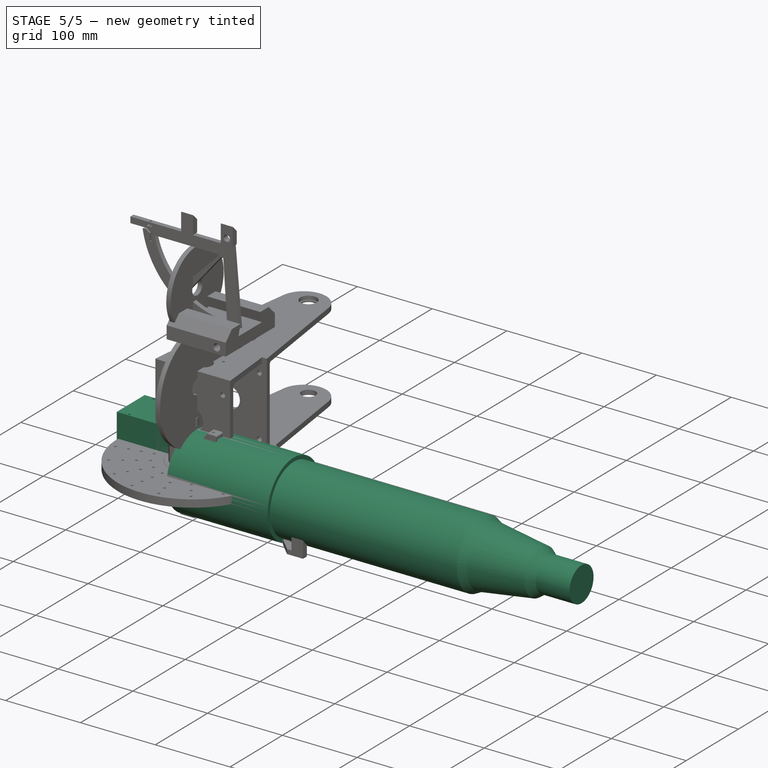
[diagram: stage 5 of 5 — iso view after this stage's code; geometry added in this stage tinted green]
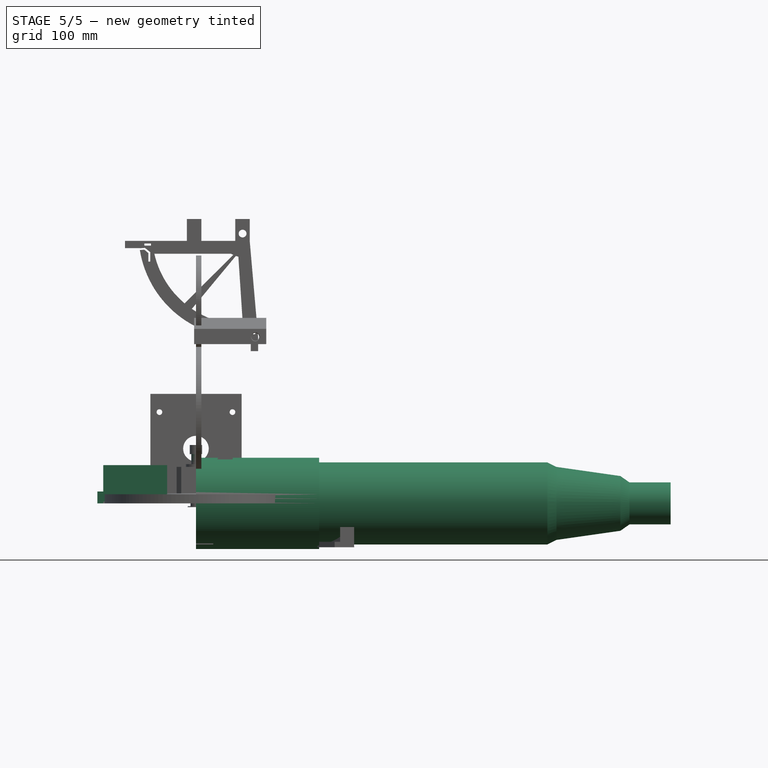
[diagram: stage 5 of 5 — front view after this stage's code; geometry added in this stage tinted green]
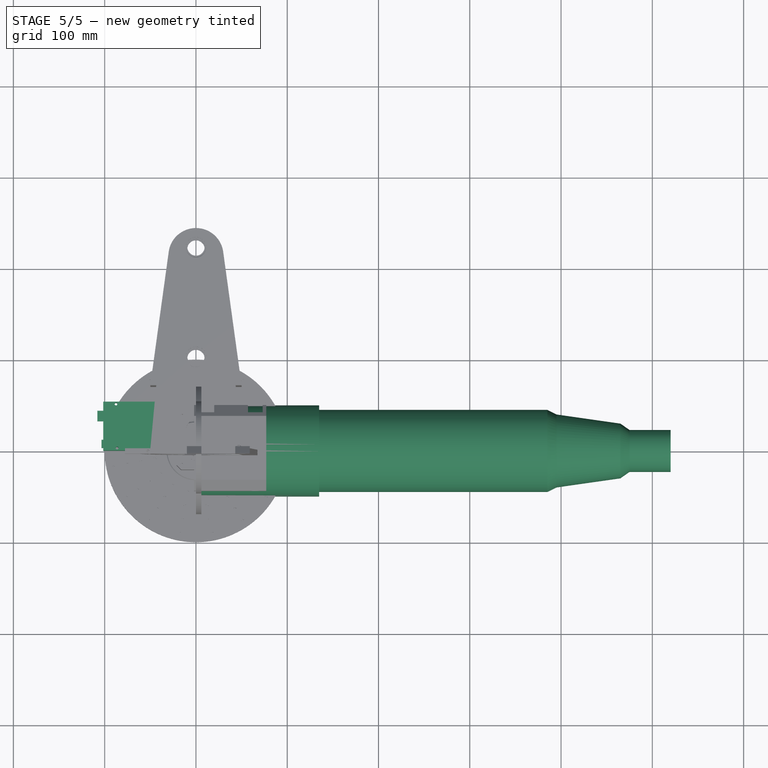
[diagram: stage 5 of 5 — top view after this stage's code; geometry added in this stage tinted green]
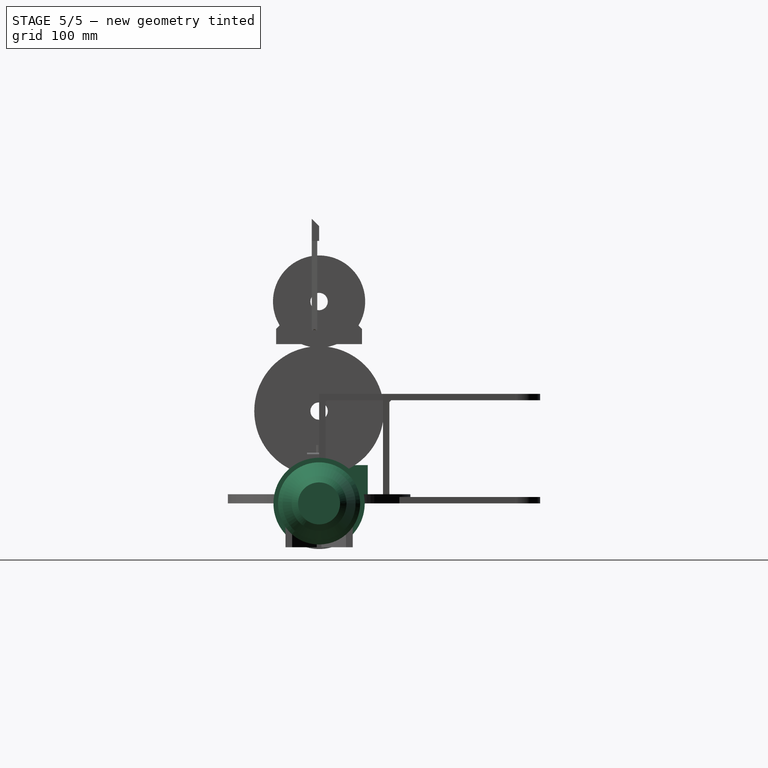
[diagram: stage 5 of 5 — right view after this stage's code; geometry added in this stage tinted green]
FEATURE [Sketcher::SketchObject] Sketch009
  FullyConstrained = true
  MapMode = 5
  Support = -> [XY_Plane003]
  sketch-geometry (2):
    g0: Circle CenterX=0 CenterY=0 CenterZ=0 NormalX=0 NormalY=0 NormalZ=1 AngleXU=0 Radius=4
    g1: Circle CenterX=0 CenterY=0 CenterZ=0 NormalX=0 NormalY=0 NormalZ=1 AngleXU=0 Radius=11
  constraints (4):
    c: Coincident(g0,g-1)
    c: Coincident(g1,g0)
    c: Radius(g0) = 4
    c: Radius(g1) = 11
FEATURE [PartDesign::Pad] Pad003
  Direction = (1,1,1)
  Length = 7
  Length2 = 100
  Profile = -> Sketch009
  Type = 0
FEATURE [Sketcher::SketchObject] Sketch011
  FullyConstrained = true
  MapMode = 5
  Placement = pos=(0,0,7) rot=(0,0,1;0rad)
  Support = -> [Pad003]
  sketch-geometry (2):
    g0: Circle CenterX=0 CenterY=0 CenterZ=0 NormalX=0 NormalY=0 NormalZ=1 AngleXU=0 Radius=5.5
    g1: Circle CenterX=0 CenterY=0 CenterZ=0 NormalX=0 NormalY=0 NormalZ=1 AngleXU=0 Radius=5.6
  constraints (4):
    c: Coincident(g0,g-1)
    c: Coincident(g1,g0)
    c: Radius(g0) = 5.5
    c: Radius(g1) = 5.6
FEATURE [PartDesign::Pocket] Pocket004
  BaseFeature = -> Pad003
  Length = 3
  Length2 = 100
  Midplane = true
  Profile = -> Sketch011
  Reversed = true
  Type = 0
FEATURE [Sketcher::SketchObject] Sketch010
  FullyConstrained = true
  MapMode = 5
  Placement = pos=(0,0,0) rot=(1,0,0;3.14159rad)
  Support = -> [Pocket004]
  sketch-geometry (2):
    g0: Circle CenterX=0 CenterY=0 CenterZ=0 NormalX=0 NormalY=0 NormalZ=1 AngleXU=0 Radius=5.5
    g1: Circle CenterX=0 CenterY=0 CenterZ=0 NormalX=0 NormalY=0 NormalZ=1 AngleXU=0 Radius=5.6
  constraints (4):
    c: Coincident(g0,g-1)
    c: Coincident(g1,g0)
    c: Radius(g0) = 5.5
    c: Radius(g1) = 5.6
FEATURE [PartDesign::Pocket] Pocket007
  BaseFeature = -> Pocket004
  Length = 3
  Length2 = 100
  Profile = -> Sketch010
  Type = 0
FEATURE [Sketcher::SketchObject] Sketch008
  FullyConstrained = true
  MapMode = 5
  Placement = pos=(0,0,7) rot=(0,0,1;0rad)
  Support = -> [Pocket007]
  sketch-geometry (2):
    g0: Circle CenterX=0 CenterY=0 CenterZ=0 NormalX=0 NormalY=0 NormalZ=1 AngleXU=0 Radius=9
    g1: Circle CenterX=0 CenterY=0 CenterZ=0 NormalX=0 NormalY=0 NormalZ=1 AngleXU=0 Radius=9.1
  constraints (4):
    c: Coincident(g0,g-1)
    c: Coincident(g1,g0)
    c: Radius(g0) = 9
    c: Radius(g1) = 9.1
FEATURE [PartDesign::Pocket] Pocket006
  BaseFeature = -> Pocket007
  Length = 1
  Length2 = 100
  Profile = -> Sketch008
  Type = 0
FEATURE [Sketcher::SketchObject] Sketch007
  FullyConstrained = true
  MapMode = 5
  Placement = pos=(0,0,0) rot=(1,0,0;3.14159rad)
  Support = -> [Pocket006]
  sketch-geometry (2):
    g0: Circle CenterX=0 CenterY=0 CenterZ=0 NormalX=0 NormalY=0 NormalZ=1 AngleXU=0 Radius=9
    g1: Circle CenterX=0 CenterY=0 CenterZ=0 NormalX=0 NormalY=0 NormalZ=1 AngleXU=0 Radius=9.1
  constraints (4):
    c: Coincident(g0,g-1)
    c: Coincident(g1,g0)
    c: Radius(g0) = 9
    c: Radius(g1) = 9.1
FEATURE [PartDesign::Pocket] Pocket005
  BaseFeature = -> Pocket006
  Length = 1
  Length2 = 100
  Profile = -> Sketch007
  Type = 0
FEATURE [PartDesign::Fillet] Fillet001
  Base = -> Pocket005 [Edge2,Edge3]
  BaseFeature = -> Pocket005
  Radius = 0.2
  SupportTransform = false
FEATURE [PartDesign::Body] Body003  label="BEARING 22x8x7base"
  Group = -> [Sketch009,Pad003,Sketch011,Pocket004,Sketch010,Pocket007,Sketch008,Pocket006,Sketch007,Pocket005,Fillet001]
  Origin = -> Origin003
  Placement = pos=(59,0,-4) rot=(0,0,1;0rad)
  Tip = -> Fillet001
FEATURE [Sketcher::SketchObject] Sketch014
  FullyConstrained = true
  MapMode = 5
  Support = -> [XY_Plane005]
  sketch-geometry (10):
    g0: LineSegment StartX=0 StartY=0 StartZ=0 EndX=0 EndY=50 EndZ=0
    g1: LineSegment StartX=0 StartY=50 StartZ=0 EndX=135 EndY=50 EndZ=0
    g2: LineSegment StartX=135 StartY=50 StartZ=0 EndX=135 EndY=45 EndZ=0
    g3: LineSegment StartX=135 StartY=45 StartZ=0 EndX=385 EndY=45 EndZ=0
    g4: LineSegment StartX=385 StartY=45 StartZ=0 EndX=395 EndY=40 EndZ=0
    g5: LineSegment StartX=395 StartY=40 StartZ=0 EndX=465 EndY=30 EndZ=0
    g6: LineSegment StartX=465 StartY=30 StartZ=0 EndX=475 EndY=23 EndZ=0
    g7: LineSegment StartX=520 StartY=0 StartZ=0 EndX=0 EndY=0 EndZ=0
    g8: LineSegment StartX=475 StartY=23 StartZ=0 EndX=520 EndY=23 EndZ=0
    g9: LineSegment StartX=520 StartY=23 StartZ=0 EndX=520 EndY=0 EndZ=0
  constraints (29):
    c: Coincident(g0,g1)
    c: Horizontal(g1)
    c: Coincident(g1,g2)
    c: Coincident(g2,g3)
    c: Horizontal(g3)
    c: Coincident(g3,g4)
    c: Coincident(g4,g5)
    c: Coincident(g5,g6)
    c: Coincident(g7,g0)
    c: Horizontal(g7)
    c: Vertical(g0)
    c: DistanceY(g0,g0) = 50
    c: Vertical(g2)
    c: DistanceY(g0,g2) = 45
    c: DistanceX(g1,g1) = 135
    c: DistanceX(g3,g3) = 250
    c: DistanceX(g3,g5) = 80
    c: DistanceY(g-1,g4) = 40
    c: DistanceX(g3,g4) = 10
    c: DistanceY(g-1,g5) = 30
    c: Coincident(g6,g8)
    c: Horizontal(g8)
    c: Coincident(g8,g9)
    c: Coincident(g9,g7)
    c: DistanceY(g-1,g8) = 23
    c: DistanceX(g6,g6) = 10
    c: Vertical(g9)
    c: DistanceX(g8,g8) = 45
    c: Coincident(g-1,g0)
FEATURE [PartDesign::Revolution] Revolution
  Angle = 360
  Axis = (1,0,0)
  Base = (0,0,0)
  Profile = -> Sketch014
  ReferenceAxis = -> Sketch014 [H_Axis]
FEATURE [PartDesign::Body] Body005  label="TELESCOPIO"
  Group = -> [Sketch014,Revolution]
  Origin = -> Origin005
  Placement = pos=(58.8541,137.678,493.712) rot=(0.447214,0.447214,-0.774597;1.82348rad)
  Tip = -> Revolution
FEATURE [Sketcher::SketchObject] Sketch017
  FullyConstrained = true
  MapMode = 5
  Placement = pos=(0,0,0) rot=(0.57735,0.57735,0.57735;2.0944rad)
  Support = -> [YZ_Plane004]
  sketch-geometry (7):
    g0: ArcOfCircle CenterX=0 CenterY=221.15 CenterZ=0 NormalX=0 NormalY=0 NormalZ=1 AngleXU=0 Radius=50.5 StartAngle=4.89915 EndAngle=10.8088
    g1: ArcOfCircle CenterX=0 CenterY=21.15 CenterZ=0 NormalX=0 NormalY=0 NormalZ=1 AngleXU=0 Radius=10.5 StartAngle=2.07708 EndAngle=7.3477
    g2: ArcOfCircle CenterX=0 CenterY=101.15 CenterZ=0 NormalX=0 NormalY=0 NormalZ=1 AngleXU=0 Radius=71 StartAngle=4.78417 EndAngle=7.72153
    g3: ArcOfCircle CenterX=0 CenterY=101.15 CenterZ=0 NormalX=0 NormalY=0 NormalZ=1 AngleXU=0 Radius=71 StartAngle=1.70325 EndAngle=4.64061
    g4: Circle CenterX=0 CenterY=101.15 CenterZ=0 NormalX=0 NormalY=0 NormalZ=1 AngleXU=0 Radius=9.5
    g5: Circle CenterX=0 CenterY=221.15 CenterZ=0 NormalX=0 NormalY=0 NormalZ=1 AngleXU=0 Radius=9.5
    g6: Circle CenterX=0 CenterY=21.15 CenterZ=0 NormalX=0 NormalY=0 NormalZ=1 AngleXU=0 Radius=2.6
  constraints (21):
    c: Radius(g0) = 50.5
    c: Radius(g1) = 10.5
    c: Coincident(g2,g0)
    c: Coincident(g2,g1)
    c: Coincident(g3,g2)
    c: Coincident(g3,g0)
    c: Coincident(g3,g1)
    c: DistanceY(g0) = 221.15
    c: DistanceY(g2) = 101.15
    c: Radius(g2) = 71
    c: Radius(g3) = 71
    c: Coincident(g4,g2)
    c: Coincident(g5,g0)
    c: Radius(g4) = 9.5
    c: Radius(g5) = 9.5
    c: Coincident(g6,g1)
    c: Radius(g6) = 2.6
    c: DistanceY(g1) = 21.15
    c: PointOnObject(g1,g-2)
    c: PointOnObject(g2,g-2)
    c: PointOnObject(g0,g-2)
FEATURE [Sketcher::SketchObject] Sketch018
  FullyConstrained = true
  MapMode = 5
  Support = -> [XY_Plane006]
  sketch-geometry (4):
    g0: LineSegment StartX=-21.15 StartY=21.15 StartZ=0 EndX=21.15 EndY=21.15 EndZ=0
    g1: LineSegment StartX=21.15 StartY=21.15 StartZ=0 EndX=21.15 EndY=-21.15 EndZ=0
    g2: LineSegment StartX=21.15 StartY=-21.15 StartZ=0 EndX=-21.15 EndY=-21.15 EndZ=0
    g3: LineSegment StartX=-21.15 StartY=-21.15 StartZ=0 EndX=-21.15 EndY=21.15 EndZ=0
  constraints (11):
    c: Coincident(g0,g1)
    c: Coincident(g1,g2)
    c: Coincident(g2,g3)
    c: Coincident(g3,g0)
    c: Horizontal(g0)
    c: Horizontal(g2)
    c: Vertical(g1)
    c: Vertical(g3)
    c: DistanceX(g0,g0) = 42.3
    c: DistanceY(g1,g1) = 42.3
    c: Symmetric(g0,g1,g-1)
FEATURE [PartDesign::Pad] Pad005
  Direction = (1,1,1)
  Length = 40
  Length2 = 100
  Profile = -> Sketch018
  Type = 0
FEATURE [Sketcher::SketchObject] Sketch019
  FullyConstrained = true
  MapMode = 5
  Placement = pos=(0,0,40) rot=(0,0,1;0rad)
  Support = -> [Pad005]
  sketch-geometry (1):
    g0: Circle CenterX=0 CenterY=0 CenterZ=0 NormalX=0 NormalY=0 NormalZ=1 AngleXU=0 Radius=11
  constraints (2):
    c: Coincident(g0,g-1)
    c: Radius(g0) = 11
FEATURE [PartDesign::Pad] Pad006
  BaseFeature = -> Pad005
  Direction = (1,1,1)
  Length = 3
  Length2 = 100
  Profile = -> Sketch019
  Type = 0
FEATURE [Sketcher::SketchObject] Sketch020
  FullyConstrained = true
  MapMode = 5
  Placement = pos=(0,0,43) rot=(0,0,1;0rad)
  Support = -> [Pad006]
  sketch-geometry (1):
    g0: Circle CenterX=0 CenterY=0 CenterZ=0 NormalX=0 NormalY=0 NormalZ=1 AngleXU=0 Radius=5.1
  constraints (2):
    c: Coincident(g0,g-1)
    c: Radius(g0) = 5.1
FEATURE [PartDesign::Pad] Pad007
  BaseFeature = -> Pad006
  Direction = (1,1,1)
  Length = 21
  Length2 = 100
  Profile = -> Sketch020
  Type = 0
FEATURE [Sketcher::SketchObject] Sketch021
  FullyConstrained = true
  MapMode = 5
  Placement = pos=(0,0,0) rot=(1,0,0;3.14159rad)
  Support = -> [Pad007]
FEATURE [Sketcher::SketchObject] Sketch022
  ExternalGeometry = -> [Pad007]
  FullyConstrained = true
  MapMode = 5
  Placement = pos=(0,0,40) rot=(0,0,1;0rad)
  Support = -> [Pad007]
  sketch-geometry (4):
    g0: Circle CenterX=-15.5 CenterY=15.5 CenterZ=0 NormalX=0 NormalY=0 NormalZ=1 AngleXU=0 Radius=1.5
    g1: Circle CenterX=15.5 CenterY=15.5 CenterZ=0 NormalX=0 NormalY=0 NormalZ=1 AngleXU=0 Radius=1.5
    g2: Circle CenterX=15.5 CenterY=-15.5 CenterZ=0 NormalX=0 NormalY=0 NormalZ=1 AngleXU=0 Radius=1.5
    g3: Circle CenterX=-15.5 CenterY=-15.5 CenterZ=0 NormalX=0 NormalY=0 NormalZ=1 AngleXU=0 Radius=1.5
  constraints (14):
    c: Equal(g0,g1)
    c: Equal(g0,g2)
    c: Equal(g0,g3)
    c: Radius(g0) = 1.5
    c: Horizontal(g0,g1)
    c: Horizontal(g3,g2)
    c: Vertical(g0,g3)
    c: Vertical(g2,g1)
    c: DistanceX(g0,g1) = 31
    c: DistanceY(g3,g0) = 31
    c: DistanceX(g-5,g0) = 5.65
    c: DistanceY(g0,g-5) = 5.65
    c: DistanceX(g1,g-5) = 5.65
    c: DistanceY(g-6,g2) = 5.65
FEATURE [PartDesign::Pocket] Pocket011
  BaseFeature = -> Pad007
  Length = 5
  Length2 = 100
  Profile = -> Sketch022
  Type = 0
FEATURE [PartDesign::Chamfer] Chamfer001
  Angle = 45
  Base = -> Pocket011 [Edge2,Edge8,Edge1,Edge5]
  BaseFeature = -> Pocket011
  ChamferType = 0
  FlipDirection = false
  Size = 5
  Size2 = 1
  SupportTransform = false
FEATURE [PartDesign::Body] Body006  label="NEMA17"
  Group = -> [Sketch018,Pad005,Sketch019,Pad006,Sketch020,Pad007,Sketch021,Sketch022,Pocket011,Chamfer001]
  Origin = -> Origin006
  Placement = pos=(135.74,-76.6447,-61.1) rot=(0,0,-1;0.785398rad)
  Tip = -> Chamfer001
FEATURE [Sketcher::SketchObject] Sketch026
  FullyConstrained = true
  MapMode = 5
  Support = -> [XY_Plane007]
  sketch-geometry (4):
    g0: LineSegment StartX=-21.15 StartY=21.15 StartZ=0 EndX=21.15 EndY=21.15 EndZ=0
    g1: LineSegment StartX=21.15 StartY=21.15 StartZ=0 EndX=21.15 EndY=-21.15 EndZ=0
    g2: LineSegment StartX=21.15 StartY=-21.15 StartZ=0 EndX=-21.15 EndY=-21.15 EndZ=0
    g3: LineSegment StartX=-21.15 StartY=-21.15 StartZ=0 EndX=-21.15 EndY=21.15 EndZ=0
  constraints (11):
    c: Coincident(g0,g1)
    c: Coincident(g1,g2)
    c: Coincident(g2,g3)
    c: Coincident(g3,g0)
    c: Horizontal(g0)
    c: Horizontal(g2)
    c: Vertical(g1)
    c: Vertical(g3)
    c: DistanceX(g0,g0) = 42.3
    c: DistanceY(g1,g1) = 42.3
    c: Symmetric(g0,g1,g-1)
FEATURE [PartDesign::Pad] Pad008
  Direction = (1,1,1)
  Length = 40
  Length2 = 100
  Profile = -> Sketch026
  Type = 0
FEATURE [Sketcher::SketchObject] Sketch025
  FullyConstrained = true
  MapMode = 5
  Placement = pos=(0,0,40) rot=(0,0,1;0rad)
  Support = -> [Pad008]
  sketch-geometry (1):
    g0: Circle CenterX=0 CenterY=0 CenterZ=0 NormalX=0 NormalY=0 NormalZ=1 AngleXU=0 Radius=11
  constraints (2):
    c: Coincident(g0,g-1)
    c: Radius(g0) = 11
FEATURE [PartDesign::Pad] Pad009
  BaseFeature = -> Pad008
  Direction = (1,1,1)
  Length = 3
  Length2 = 100
  Profile = -> Sketch025
  Type = 0
FEATURE [Sketcher::SketchObject] Sketch023
  FullyConstrained = true
  MapMode = 5
  Placement = pos=(0,0,43) rot=(0,0,1;0rad)
  Support = -> [Pad009]
  sketch-geometry (1):
    g0: Circle CenterX=0 CenterY=0 CenterZ=0 NormalX=0 NormalY=0 NormalZ=1 AngleXU=0 Radius=5.1
  constraints (2):
    c: Coincident(g0,g-1)
    c: Radius(g0) = 5.1
FEATURE [PartDesign::Pad] Pad010
  BaseFeature = -> Pad009
  Direction = (1,1,1)
  Length = 21
  Length2 = 100
  Profile = -> Sketch023
  Type = 0
FEATURE [Sketcher::SketchObject] Sketch024
  FullyConstrained = true
  MapMode = 5
  Placement = pos=(0,0,0) rot=(1,0,0;3.14159rad)
  Support = -> [Pad010]
FEATURE [Sketcher::SketchObject] Sketch027
  ExternalGeometry = -> [Pad010]
  FullyConstrained = true
  MapMode = 5
  Placement = pos=(0,0,40) rot=(0,0,1;0rad)
  Support = -> [Pad010]
  sketch-geometry (4):
    g0: Circle CenterX=-15.5 CenterY=15.5 CenterZ=0 NormalX=0 NormalY=0 NormalZ=1 AngleXU=0 Radius=1.5
    g1: Circle CenterX=15.5 CenterY=15.5 CenterZ=0 NormalX=0 NormalY=0 NormalZ=1 AngleXU=0 Radius=1.5
    g2: Circle CenterX=15.5 CenterY=-15.5 CenterZ=0 NormalX=0 NormalY=0 NormalZ=1 AngleXU=0 Radius=1.5
    g3: Circle CenterX=-15.5 CenterY=-15.5 CenterZ=0 NormalX=0 NormalY=0 NormalZ=1 AngleXU=0 Radius=1.5
  constraints (14):
    c: Equal(g0,g1)
    c: Equal(g0,g2)
    c: Equal(g0,g3)
    c: Radius(g0) = 1.5
    c: Horizontal(g0,g1)
    c: Horizontal(g3,g2)
    c: Vertical(g0,g3)
    c: Vertical(g2,g1)
    c: DistanceX(g0,g1) = 31
    c: DistanceY(g3,g0) = 31
    c: DistanceX(g-5,g0) = 5.65
    c: DistanceY(g0,g-5) = 5.65
    c: DistanceX(g1,g-5) = 5.65
    c: DistanceY(g-6,g2) = 5.65
FEATURE [PartDesign::Pocket] Pocket012
  BaseFeature = -> Pad010
  Length = 5
  Length2 = 100
  Profile = -> Sketch027
  Type = 0
FEATURE [PartDesign::Chamfer] Chamfer002
  Angle = 45
  Base = -> Pocket012 [Edge2,Edge8,Edge1,Edge5]
  BaseFeature = -> Pocket012
  ChamferType = 0
  FlipDirection = false
  Size = 5
  Size2 = 1
  SupportTransform = false
FEATURE [PartDesign::Body] Body008  label="BEARING 22x8x7w000"
  Group = -> [Sketch033,Pad012,Sketch035,Pocket016,Sketch034,Pocket019,Sketch032,Pocket018,Sketch031,Pocket017,Fillet002]
  Origin = -> Origin008
  Placement = pos=(-7.6e-14,94.2,58.6) rot=(0.57735,-0.57735,0.57735;2.0944rad)
  Tip = -> Fillet002
FEATURE [Sketcher::SketchObject] Sketch056
  FullyConstrained = true
  MapMode = 5
  Support = -> [XY_Plane013]
  sketch-geometry (17):
    g0: LineSegment StartX=-101.6 StartY=53.34 StartZ=0 EndX=-2.54 EndY=53.34 EndZ=0
    g1: LineSegment StartX=-2.54 StartY=53.34 StartZ=0 EndX=0 EndY=50.8 EndZ=0
    g2: LineSegment StartX=0 StartY=50.8 StartZ=0 EndX=0 EndY=40.64 EndZ=0
    g3: LineSegment StartX=0 StartY=40.64 StartZ=0 EndX=2.54 EndY=38.1 EndZ=0
    g4: LineSegment StartX=2.54 StartY=38.1 StartZ=0 EndX=2.54 EndY=3.81 EndZ=0
    g5: LineSegment StartX=2.54 StartY=3.81 StartZ=0 EndX=2.84e-14 EndY=1.27 EndZ=0
    g6: LineSegment StartX=2.84e-14 StartY=1.27 StartZ=0 EndX=2.84e-14 EndY=0 EndZ=0
    g7: LineSegment StartX=2.84e-14 StartY=0 StartZ=0 EndX=-101.6 EndY=0 EndZ=0
    g8: LineSegment StartX=-101.6 StartY=0 StartZ=0 EndX=-101.6 EndY=3.175 EndZ=0
    g9: LineSegment StartX=-101.6 StartY=3.175 StartZ=0 EndX=-103.505 EndY=3.175 EndZ=0
    g10: LineSegment StartX=-103.505 StartY=3.175 StartZ=0 EndX=-103.505 EndY=12.065 EndZ=0
    g11: LineSegment StartX=-103.505 StartY=12.065 StartZ=0 EndX=-101.6 EndY=12.065 EndZ=0
    g12: LineSegment StartX=-101.6 StartY=12.065 StartZ=0 EndX=-101.6 EndY=32.385 EndZ=0
    g13: LineSegment StartX=-101.6 StartY=32.385 StartZ=0 EndX=-107.95 EndY=32.385 EndZ=0
    g14: LineSegment StartX=-107.95 StartY=32.385 StartZ=0 EndX=-107.95 EndY=43.815 EndZ=0
    g15: LineSegment StartX=-107.95 StartY=43.815 StartZ=0 EndX=-101.6 EndY=43.815 EndZ=0
    g16: LineSegment StartX=-101.6 StartY=43.815 StartZ=0 EndX=-101.6 EndY=53.34 EndZ=0
  constraints (53):
    c: Horizontal(g0)
    c: Coincident(g0,g1)
    c: Coincident(g1,g2)
    c: Vertical(g2)
    c: Coincident(g2,g3)
    c: Coincident(g3,g4)
    c: Vertical(g4)
    c: Coincident(g4,g5)
    c: Coincident(g5,g6)
    c: Vertical(g6)
    c: Coincident(g6,g7)
    c: Horizontal(g7)
    c: Coincident(g7,g8)
    c: Vertical(g8)
    c: Coincident(g8,g9)
    c: Horizontal(g9)
    c: Coincident(g9,g10)
    c: Vertical(g10)
    c: Coincident(g10,g11)
    c: Horizontal(g11)
    c: Coincident(g11,g12)
    c: Coincident(g12,g13)
    c: Horizontal(g13)
    c: Coincident(g13,g14)
    c: Vertical(g14)
    c: Coincident(g14,g15)
    c: Horizontal(g15)
    c: Coincident(g15,g16)
    c: Coincident(g16,g0)
    c: DistanceX(g15,g15) = 6.35
    c: DistanceX(g9,g9) = 1.905
    c: Vertical(g8,g11)
    c: Vertical(g11,g12)
    c: Vertical(g12,g15)
    c: Vertical(g15,g0)
    c: DistanceX(g0,g1) = 2.54
    c: DistanceY(g1,g0) = 2.54
    c: DistanceY(g2,g2) = 10.16
    c: DistanceY(g3,g2) = 2.54
    c: DistanceX(g3,g3) = 2.54
    c: DistanceY(g5,g5) = 2.54
    c: DistanceX(g5,g5) = 2.54
    c: DistanceX(g7,g4) = 104.14
    c: DistanceY(g7,g0) = 53.34
    c: DistanceY(g8,g8) = 3.175
    c: DistanceY(g10,g10) = 8.89
    c: DistanceY(g12,g12) = 20.32
    c: DistanceY(g14,g14) = 11.43
    c: DistanceY(g16,g16) = 9.525
    c: DistanceY(g6,g6) = 1.27
    c: DistanceY(g4,g4) = 34.29
    c: PointOnObject(g6,g-1)
    c: DistanceX(g6) = 0
FEATURE [PartDesign::Pad] Pad017
  Direction = (1,1,1)
  Length = 2
  Length2 = 100
  Profile = -> Sketch056
  Type = 0
FEATURE [Sketcher::SketchObject] Sketch057
  ExternalGeometry = -> [Pad017]
  FullyConstrained = true
  MapMode = 5
  Placement = pos=(0,0,2) rot=(0,0,1;0rad)
  Support = -> [Pad017]
  sketch-geometry (4):
    g0: LineSegment StartX=-101.6 StartY=53.34 StartZ=0 EndX=-31.6 EndY=53.34 EndZ=0
    g1: LineSegment StartX=-31.6 StartY=53.34 StartZ=0 EndX=-31.6 EndY=0 EndZ=0
    g2: LineSegment StartX=-31.6 StartY=0 StartZ=0 EndX=-101.6 EndY=0 EndZ=0
    g3: LineSegment StartX=-101.6 StartY=0 StartZ=0 EndX=-101.6 EndY=53.34 EndZ=0
  constraints (11):
    c: Coincident(g0,g1)
    c: Coincident(g1,g2)
    c: Coincident(g2,g3)
    c: Coincident(g3,g0)
    c: Horizontal(g0)
    c: Horizontal(g2)
    c: Vertical(g1)
    c: Vertical(g3)
    c: Coincident(g0,g-8)
    c: PointOnObject(g1,g-9)
    c: DistanceX(g0,g0) = 70
FEATURE [PartDesign::Pad] Pad018
  BaseFeature = -> Pad017
  Direction = (1,1,1)
  Length = 40
  Length2 = 29
  Offset = 11
  Profile = -> Sketch057
  Type = 0
FEATURE [Sketcher::SketchObject] Sketch058
  ExternalGeometry = -> [Pad018]
  FullyConstrained = true
  MapMode = 5
  Placement = pos=(0,0,2) rot=(0,0,1;0rad)
  Support = -> [Pad018]
  sketch-geometry (8):
    g0: LineSegment StartX=-107.95 StartY=43.815 StartZ=0 EndX=-90.95 EndY=43.815 EndZ=0
    g1: LineSegment StartX=-90.95 StartY=43.815 StartZ=0 EndX=-90.95 EndY=32.385 EndZ=0
    g2: LineSegment StartX=-90.95 StartY=32.385 StartZ=0 EndX=-107.95 EndY=32.385 EndZ=0
    g3: LineSegment StartX=-107.95 StartY=32.385 StartZ=0 EndX=-107.95 EndY=43.815 EndZ=0
    g4: LineSegment StartX=-103.505 StartY=12.065 StartZ=0 EndX=-90.505 EndY=12.065 EndZ=0
    g5: LineSegment StartX=-90.505 StartY=12.065 StartZ=0 EndX=-90.505 EndY=3.175 EndZ=0
    g6: LineSegment StartX=-90.505 StartY=3.175 StartZ=0 EndX=-103.505 EndY=3.175 EndZ=0
    g7: LineSegment StartX=-103.505 StartY=3.175 StartZ=0 EndX=-103.505 EndY=12.065 EndZ=0
  constraints (20):
    c: Coincident(g0,g1)
    c: Coincident(g1,g2)
    c: Coincident(g2,g3)
    c: Coincident(g3,g0)
    c: Horizontal(g0)
    c: Horizontal(g2)
    c: Vertical(g1)
    c: Coincident(g0,g-3)
    c: Coincident(g-3,g2)
    c: DistanceX(g0,g0) = 17
    c: Coincident(g4,g5)
    c: Coincident(g5,g6)
    c: Coincident(g6,g7)
    c: Coincident(g7,g4)
    c: Horizontal(g4)
    c: Horizontal(g6)
    c: Vertical(g5)
    c: Coincident(g4,g-4)
    c: Coincident(g-4,g6)
    c: DistanceX(g4,g4) = 13
FEATURE [PartDesign::Pad] Pad019
  BaseFeature = -> Pad018
  Direction = (1,1,1)
  Length = 11
  Length2 = 100
  Profile = -> Sketch058
  Type = 0
FEATURE [Sketcher::SketchObject] Sketch
  FullyConstrained = true
  MapMode = 5
  Support = -> [XY_Plane]
  sketch-geometry (2):
    g0: Circle CenterX=0 CenterY=0 CenterZ=0 NormalX=0 NormalY=0 NormalZ=1 AngleXU=0 Radius=32.25
    g1: Circle CenterX=0 CenterY=0 CenterZ=0 NormalX=0 NormalY=0 NormalZ=1 AngleXU=0 Radius=5.15
  constraints (4):
    c: Coincident(g0,g-1)
    c: Radius(g0) = 32.25
    c: Coincident(g1,g0)
    c: Radius(g1) = 5.15
FEATURE [PartDesign::Pad] Pad
  Direction = (1,1,1)
  Length = 11
  Length2 = 100
  Profile = -> Sketch
  Type = 0
FEATURE [PartDesign::Chamfer] Chamfer004
  Angle = 45
  Base = -> Pad [Edge3]
  BaseFeature = -> Pad
  ChamferType = 0
  FlipDirection = false
  Size = 1
  Size2 = 1
  SupportTransform = false
FEATURE [PartDesign::Body] Body  label="TRIPODE"
  Group = -> [Sketch,Pad,Chamfer004]
  Origin = -> Origin
  Placement = pos=(58.8,-0.2,-78) rot=(0,0,1;0rad)
  Tip = -> Chamfer004
FEATURE [Sketcher::SketchObject] Sketch059
  ExternalGeometry = -> [Pad019]
  FullyConstrained = true
  MapMode = 5
  Placement = pos=(0,0,0) rot=(1,0,0;3.14159rad)
  Support = -> [Pad019]
  sketch-geometry (6):
    g0: Circle CenterX=-86.36 CenterY=-2.54 CenterZ=0 NormalX=0 NormalY=0 NormalZ=1 AngleXU=0 Radius=1.5875
    g1: Circle CenterX=-11.43 CenterY=-2.54 CenterZ=0 NormalX=0 NormalY=0 NormalZ=1 AngleXU=0 Radius=1.5875
    g2: Circle CenterX=-87.63 CenterY=-50.8 CenterZ=0 NormalX=0 NormalY=0 NormalZ=1 AngleXU=0 Radius=1.5875
    g3: Circle CenterX=-5.08 CenterY=-50.8 CenterZ=0 NormalX=0 NormalY=0 NormalZ=1 AngleXU=0 Radius=1.5875
    g4: Circle CenterX=-35.56 CenterY=-17.78 CenterZ=0 NormalX=0 NormalY=0 NormalZ=1 AngleXU=0 Radius=1.5875
    g5: Circle CenterX=-35.56 CenterY=-45.72 CenterZ=0 NormalX=0 NormalY=0 NormalZ=1 AngleXU=0 Radius=1.5875
  constraints (18):
    c: Equal(g0,g2)
    c: Equal(g0,g1)
    c: Equal(g0,g3)
    c: Radius(g0) = 1.5875
    c: Horizontal(g0,g1)
    c: DistanceX(g-3,g0) = 15.24
    c: DistanceY(g0) = -2.54
    c: DistanceX(g-3,g1) = 90.17
    c: DistanceY(g-4,g2) = 2.54
    c: Horizontal(g3,g2)
    c: DistanceX(g-4,g2) = 13.97
    c: DistanceX(g-4,g3) = 96.52
    c: Equal(g4,g5)
    c: Radius(g4) = 1.5875
    c: Vertical(g4,g5)
    c: DistanceX(g-4,g5) = 66.04
    c: DistanceY(g-4,g5) = 7.62
    c: DistanceY(g-4,g4) = 35.56
FEATURE [PartDesign::Pocket] Pocket
  BaseFeature = -> Pad019
  Length = 50
  Length2 = 100
  Profile = -> Sketch059
  Type = 0
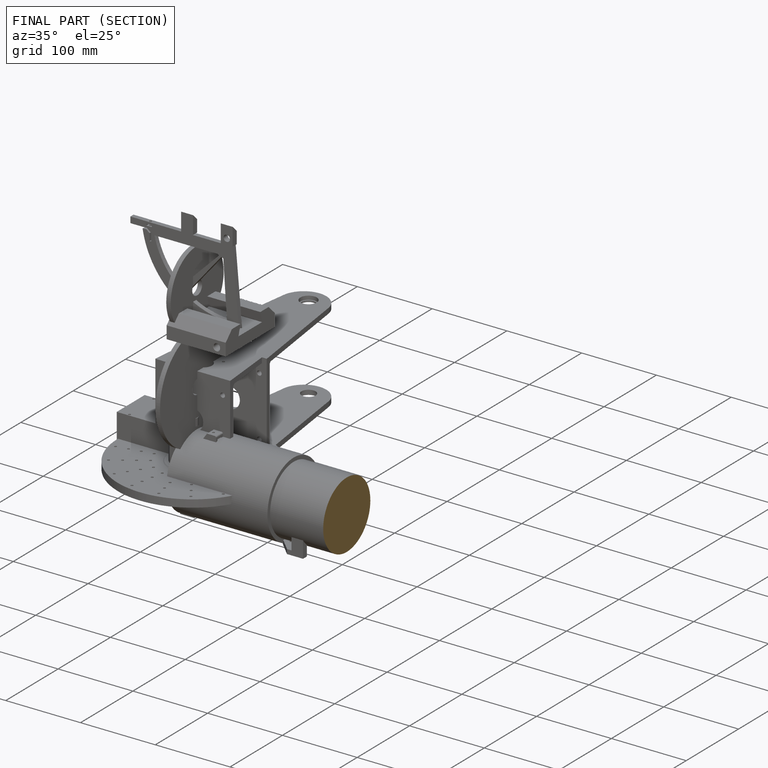
[diagram: finished part — half-section view (interior)]
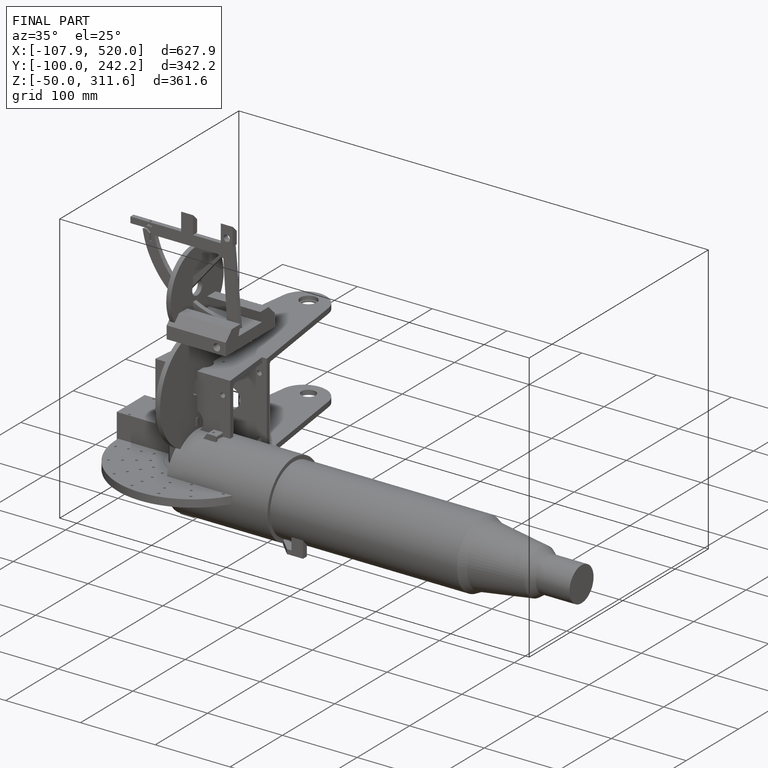
[diagram: finished part — iso view with bounding-box wireframe]
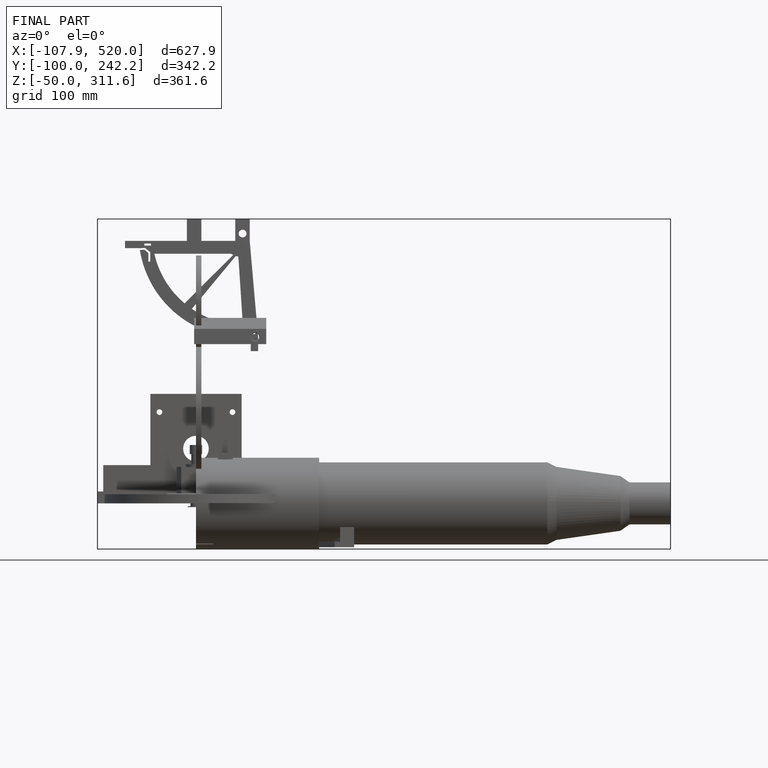
[diagram: finished part — front view with bounding-box wireframe]
